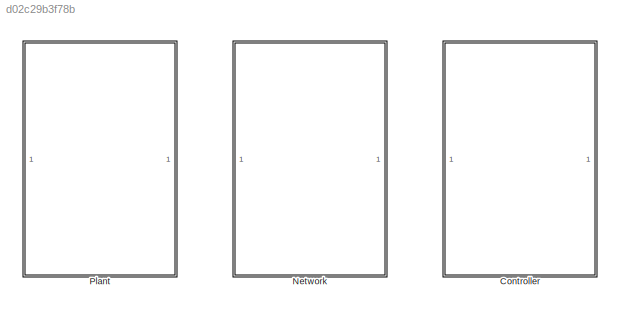
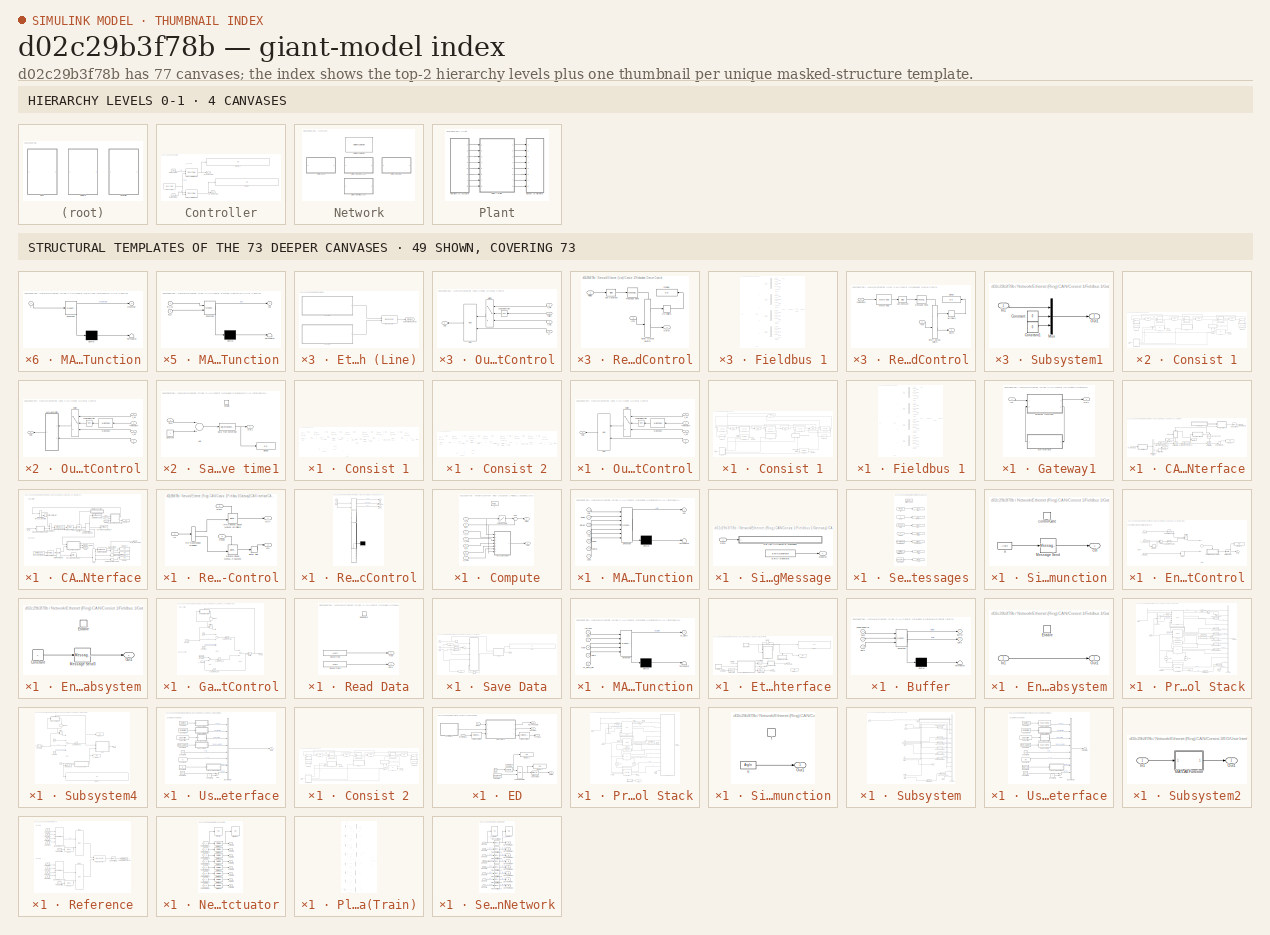
[diagram: thumbnail index - top-2 hierarchy levels (4 canvases) + 49 structural-template representatives of the remaining 73 canvases]
MODEL slx_d02c29b3f78b
KIND model
CONFIG AbsTol = auto
CONFIG EnableMultiTasking = off
CONFIG FixedStep = 0.004
CONFIG MaxStep = 0.01
CONFIG MinStep = auto
CONFIG RelTol = 1e-3
CONFIG SampleTimeConstraint = Unconstrained
CONFIG Solver = ode4
CONFIG SolverName = ode4
CONFIG StartTime = 0.0
CONFIG StopTime = 200
BLOCK [SubSystem] Controller
  Ports = []
  RequestExecContextInheritance = off
BLOCK [Display] Controller/Display
  Decimation = 1
  Ports = [1]
BLOCK [Display] Controller/Display1
  Decimation = 1
  Ports = [1]
BLOCK [From] Controller/FromConsist1
  GotoTag = Y_M_1
  TagVisibility = global
BLOCK [From] Controller/FromConsist2
  GotoTag = Y_M_2
  TagVisibility = global
BLOCK [Goto] Controller/GoToConsist1
  GotoTag = U_1
  TagVisibility = global
BLOCK [Goto] Controller/GoToConsist2
  GotoTag = U_2
  TagVisibility = global
BLOCK [Reference] Controller/Subsystem  REF=NCS_Library/Controller/Subsystem
  Ports = [0, 1]
  SourceBlock = NCS_Library/Controller/Subsystem
BLOCK [Reference] Controller/Train Controller with PID1  REF=NCS_Library/Controller/Train Controller with PID
  Ports = [2, 1]
  SourceBlock = NCS_Library/Controller/Train Controller with PID
BLOCK [Reference] Controller/Train Controller with PID2  REF=NCS_Library/Controller/Train Controller with PID
  Ports = [2, 1]
  SourceBlock = NCS_Library/Controller/Train Controller with PID
BLOCK [SubSystem] Network
  Ports = []
  RequestExecContextInheritance = off
BLOCK [SubSystem] Network/Ethernet (Line)
  Commented = on
  Ports = []
  RequestExecContextInheritance = off
BLOCK [SubSystem] Network/Ethernet (Line) CAN
  Commented = on
  Ports = []
  RequestExecContextInheritance = off
BLOCK [SubSystem] Network/Ethernet (Line) CAN/Consist 1
  Ports = [0, 1]
  RequestExecContextInheritance = off
BLOCK [Reference] Network/Ethernet (Line) CAN/Consist 1/Burst Device  REF=NCS_Library/Network/ETB/Burst Device
  Ports = [1, 1]
  SourceBlock = NCS_Library/Network/ETB/Burst Device
BLOCK [Reference] Network/Ethernet (Line) CAN/Consist 1/Burst Device1  REF=NCS_Library/Network/ETB/Burst Device
  Ports = [1, 1]
  SourceBlock = NCS_Library/Network/ETB/Burst Device
BLOCK [BusSelector] Network/Ethernet (Line) CAN/Consist 1/Bus Selector
  OutputAsBus = off
  OutputSignals = #Receive
  Ports = [1, 1]
BLOCK [Reference] Network/Ethernet (Line) CAN/Consist 1/Cable  REF=NCS_Library/Network/ETB/Cable
  Ports = [2, 2]
  SourceBlock = NCS_Library/Network/ETB/Cable
BLOCK [Reference] Network/Ethernet (Line) CAN/Consist 1/Cable1  REF=NCS_Library/Network/ETB/Cable
  Ports = [2, 2]
  SourceBlock = NCS_Library/Network/ETB/Cable
BLOCK [Reference] Network/Ethernet (Line) CAN/Consist 1/Cable2  REF=NCS_Library/Network/ETB/Cable
  Ports = [2, 2]
  SourceBlock = NCS_Library/Network/ETB/Cable
BLOCK [Reference] Network/Ethernet (Line) CAN/Consist 1/Cable3  REF=NCS_Library/Network/ETB/Cable
  Ports = [2, 2]
  SourceBlock = NCS_Library/Network/ETB/Cable
BLOCK [Reference] Network/Ethernet (Line) CAN/Consist 1/ED  REF=NCS_Library/Network/ETB/ED
  Ports = [2, 3]
  SourceBlock = NCS_Library/Network/ETB/ED
BLOCK [Reference] Network/Ethernet (Line) CAN/Consist 1/ED1  REF=NCS_Library/Network/ETB/ED
  Ports = [2, 3]
  SourceBlock = NCS_Library/Network/ETB/ED
BLOCK [Reference] Network/Ethernet (Line) CAN/Consist 1/Ethernet_2-port_Switch  REF=NCS_Library/Network/ETB/Ethernet_2-port_Switch
  Ports = [2, 2]
  SourceBlock = NCS_Library/Network/ETB/Ethernet_2-port_Switch
BLOCK [Reference] Network/Ethernet (Line) CAN/Consist 1/Ethernet_2-port_Switch1  REF=NCS_Library/Network/ETB/Ethernet_2-port_Switch
  Ports = [2, 2]
  SourceBlock = NCS_Library/Network/ETB/Ethernet_2-port_Switch
BLOCK [Reference] Network/Ethernet (Line) CAN/Consist 1/Ethernet_3-port_switch  REF=NCS_Library/Network/ETB/Ethernet_3-port_switch
  Ports = [3, 3]
  SourceBlock = NCS_Library/Network/ETB/Ethernet_3-port_switch
BLOCK [Reference] Network/Ethernet (Line) CAN/Consist 1/Ethernet_3-port_switch1  REF=NCS_Library/Network/ETB/Ethernet_3-port_switch
  Ports = [3, 3]
  SourceBlock = NCS_Library/Network/ETB/Ethernet_3-port_switch
BLOCK [Reference] Network/Ethernet (Line) CAN/Consist 1/Ethernet_3-port_switch2  REF=NCS_Library/Network/ETB/Ethernet_3-port_switch
  Ports = [3, 3]
  SourceBlock = NCS_Library/Network/ETB/Ethernet_3-port_switch
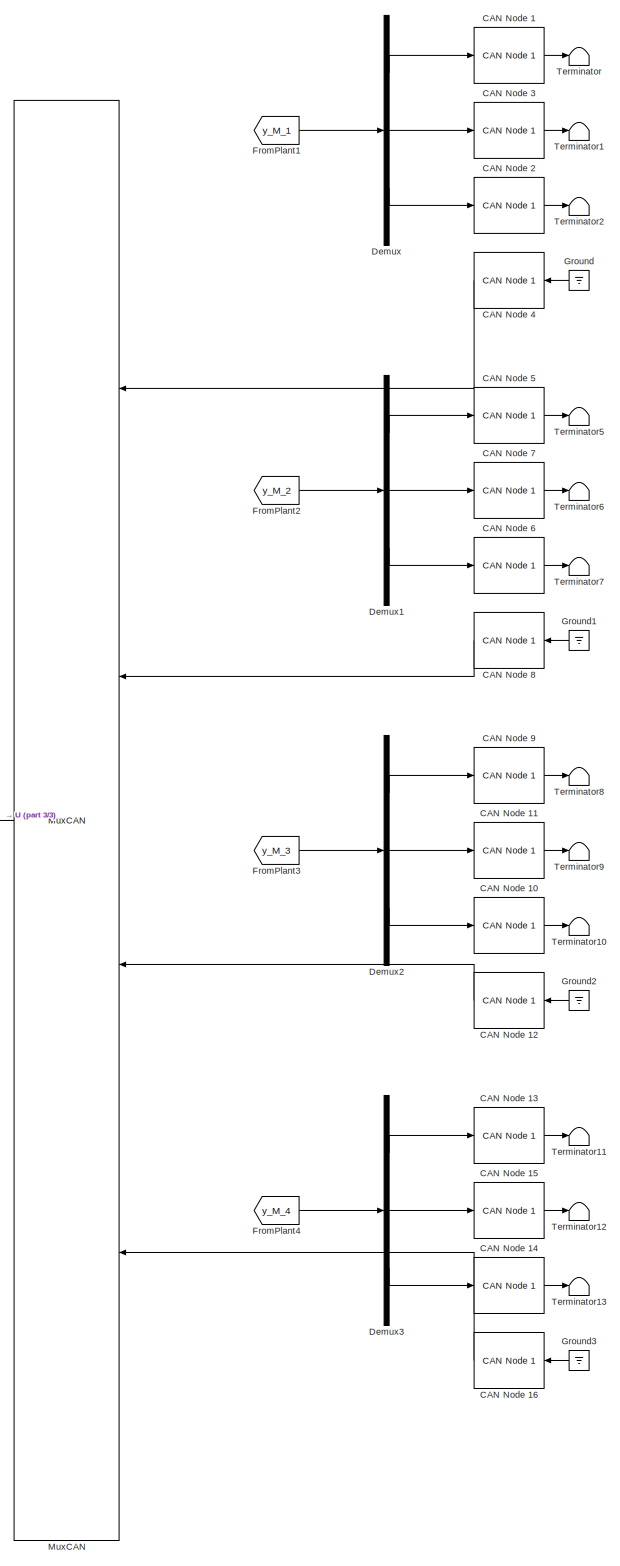
[diagram: Network/Ethernet (Line) CAN/Consist 1/Fieldbus 1 - part 1/3, center side, full height]
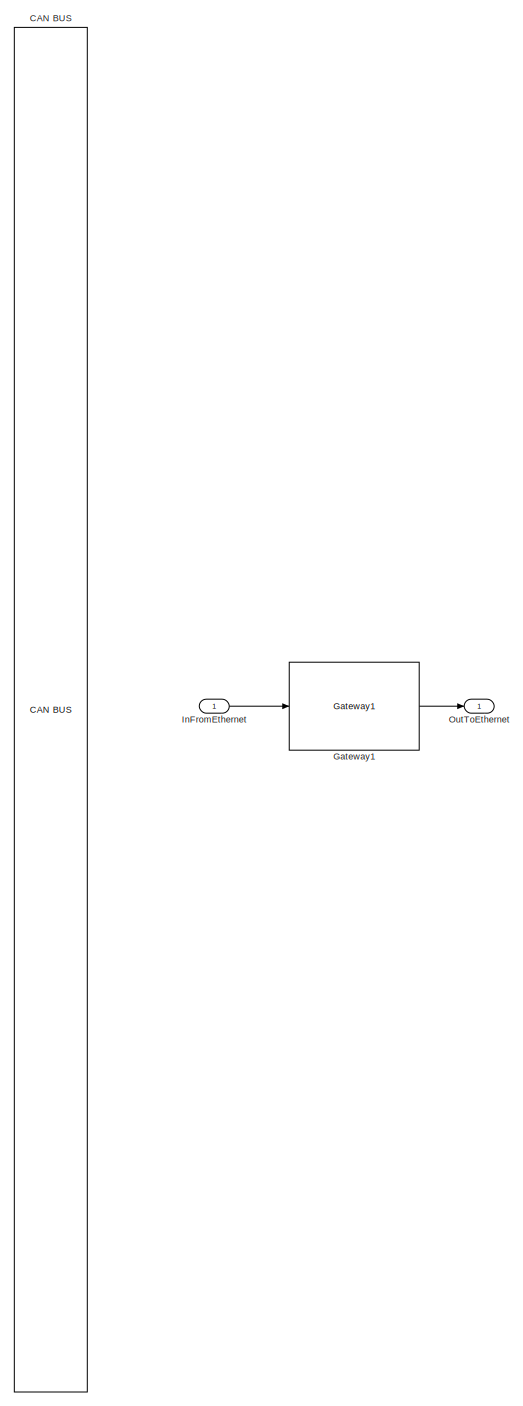
[diagram: Network/Ethernet (Line) CAN/Consist 1/Fieldbus 1 - part 2/3, right side, full height]
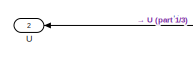
[diagram: Network/Ethernet (Line) CAN/Consist 1/Fieldbus 1 - part 3/3, middle left region]
BLOCK [SubSystem] Network/Ethernet (Line) CAN/Consist 1/Fieldbus 1
  Ports = [1, 2]
  RequestExecContextInheritance = off
BLOCK [Reference] Network/Ethernet (Line) CAN/Consist 1/Fieldbus 1/CAN BUS  REF=NCS_Library/Network/CAN/CAN BUS
  Ports = []
  SourceBlock = NCS_Library/Network/CAN/CAN BUS
BLOCK [Reference] Network/Ethernet (Line) CAN/Consist 1/Fieldbus 1/CAN Node 1  REF=NCS_Library/Network/CAN/CAN Node 1
  Ports = [1, 1]
  SourceBlock = NCS_Library/Network/CAN/CAN Node 1
  SourceType = CAN Node
BLOCK [Reference] Network/Ethernet (Line) CAN/Consist 1/Fieldbus 1/CAN Node 10  REF=NCS_Library/Network/CAN/CAN Node 1
  Ports = [1, 1]
  SourceBlock = NCS_Library/Network/CAN/CAN Node 1
  SourceType = CAN Node
BLOCK [Reference] Network/Ethernet (Line) CAN/Consist 1/Fieldbus 1/CAN Node 11  REF=NCS_Library/Network/CAN/CAN Node 1
  Ports = [1, 1]
  SourceBlock = NCS_Library/Network/CAN/CAN Node 1
  SourceType = CAN Node
BLOCK [Reference] Network/Ethernet (Line) CAN/Consist 1/Fieldbus 1/CAN Node 12  REF=NCS_Library/Network/CAN/CAN Node 1
  Ports = [1, 1]
  SourceBlock = NCS_Library/Network/CAN/CAN Node 1
  SourceType = CAN Node
BLOCK [Reference] Network/Ethernet (Line) CAN/Consist 1/Fieldbus 1/CAN Node 13  REF=NCS_Library/Network/CAN/CAN Node 1
  Ports = [1, 1]
  SourceBlock = NCS_Library/Network/CAN/CAN Node 1
  SourceType = CAN Node
BLOCK [Reference] Network/Ethernet (Line) CAN/Consist 1/Fieldbus 1/CAN Node 14  REF=NCS_Library/Network/CAN/CAN Node 1
  Ports = [1, 1]
  SourceBlock = NCS_Library/Network/CAN/CAN Node 1
  SourceType = CAN Node
BLOCK [Reference] Network/Ethernet (Line) CAN/Consist 1/Fieldbus 1/CAN Node 15  REF=NCS_Library/Network/CAN/CAN Node 1
  Ports = [1, 1]
  SourceBlock = NCS_Library/Network/CAN/CAN Node 1
  SourceType = CAN Node
BLOCK [Reference] Network/Ethernet (Line) CAN/Consist 1/Fieldbus 1/CAN Node 16  REF=NCS_Library/Network/CAN/CAN Node 1
  Ports = [1, 1]
  SourceBlock = NCS_Library/Network/CAN/CAN Node 1
  SourceType = CAN Node
BLOCK [Reference] Network/Ethernet (Line) CAN/Consist 1/Fieldbus 1/CAN Node 2  REF=NCS_Library/Network/CAN/CAN Node 1
  Ports = [1, 1]
  SourceBlock = NCS_Library/Network/CAN/CAN Node 1
  SourceType = CAN Node
BLOCK [Reference] Network/Ethernet (Line) CAN/Consist 1/Fieldbus 1/CAN Node 3  REF=NCS_Library/Network/CAN/CAN Node 1
  Ports = [1, 1]
  SourceBlock = NCS_Library/Network/CAN/CAN Node 1
  SourceType = CAN Node
BLOCK [Reference] Network/Ethernet (Line) CAN/Consist 1/Fieldbus 1/CAN Node 4  REF=NCS_Library/Network/CAN/CAN Node 1
  Ports = [1, 1]
  SourceBlock = NCS_Library/Network/CAN/CAN Node 1
  SourceType = CAN Node
BLOCK [Reference] Network/Ethernet (Line) CAN/Consist 1/Fieldbus 1/CAN Node 5  REF=NCS_Library/Network/CAN/CAN Node 1
  Ports = [1, 1]
  SourceBlock = NCS_Library/Network/CAN/CAN Node 1
  SourceType = CAN Node
BLOCK [Reference] Network/Ethernet (Line) CAN/Consist 1/Fieldbus 1/CAN Node 6  REF=NCS_Library/Network/CAN/CAN Node 1
  Ports = [1, 1]
  SourceBlock = NCS_Library/Network/CAN/CAN Node 1
  SourceType = CAN Node
BLOCK [Reference] Network/Ethernet (Line) CAN/Consist 1/Fieldbus 1/CAN Node 7  REF=NCS_Library/Network/CAN/CAN Node 1
  Ports = [1, 1]
  SourceBlock = NCS_Library/Network/CAN/CAN Node 1
  SourceType = CAN Node
BLOCK [Reference] Network/Ethernet (Line) CAN/Consist 1/Fieldbus 1/CAN Node 8  REF=NCS_Library/Network/CAN/CAN Node 1
  Ports = [1, 1]
  SourceBlock = NCS_Library/Network/CAN/CAN Node 1
  SourceType = CAN Node
BLOCK [Reference] Network/Ethernet (Line) CAN/Consist 1/Fieldbus 1/CAN Node 9  REF=NCS_Library/Network/CAN/CAN Node 1
  Ports = [1, 1]
  SourceBlock = NCS_Library/Network/CAN/CAN Node 1
  SourceType = CAN Node
BLOCK [Demux] Network/Ethernet (Line) CAN/Consist 1/Fieldbus 1/Demux
  DisplayOption = bar
  Outputs = 3
  Ports = [1, 3]
BLOCK [Demux] Network/Ethernet (Line) CAN/Consist 1/Fieldbus 1/Demux1
  DisplayOption = bar
  Outputs = 3
  Ports = [1, 3]
BLOCK [Demux] Network/Ethernet (Line) CAN/Consist 1/Fieldbus 1/Demux2
  DisplayOption = bar
  Outputs = 3
  Ports = [1, 3]
BLOCK [Demux] Network/Ethernet (Line) CAN/Consist 1/Fieldbus 1/Demux3
  DisplayOption = bar
  Outputs = 3
  Ports = [1, 3]
BLOCK [From] Network/Ethernet (Line) CAN/Consist 1/Fieldbus 1/FromPlant1
  GotoTag = y_M_1
  TagVisibility = global
BLOCK [From] Network/Ethernet (Line) CAN/Consist 1/Fieldbus 1/FromPlant2
  GotoTag = y_M_2
  TagVisibility = global
BLOCK [From] Network/Ethernet (Line) CAN/Consist 1/Fieldbus 1/FromPlant3
  GotoTag = y_M_3
  TagVisibility = global
BLOCK [From] Network/Ethernet (Line) CAN/Consist 1/Fieldbus 1/FromPlant4
  GotoTag = y_M_4
  TagVisibility = global
BLOCK [Reference] Network/Ethernet (Line) CAN/Consist 1/Fieldbus 1/Gateway1  REF=NCS_Library/Network/Gateway/Gateway1
  Ports = [1, 1]
  SourceBlock = NCS_Library/Network/Gateway/Gateway1
BLOCK [Ground] Network/Ethernet (Line) CAN/Consist 1/Fieldbus 1/Ground
BLOCK [Ground] Network/Ethernet (Line) CAN/Consist 1/Fieldbus 1/Ground1
BLOCK [Ground] Network/Ethernet (Line) CAN/Consist 1/Fieldbus 1/Ground2
BLOCK [Ground] Network/Ethernet (Line) CAN/Consist 1/Fieldbus 1/Ground3
BLOCK [Inport] Network/Ethernet (Line) CAN/Consist 1/Fieldbus 1/InFromEthernet
  IconDisplay = Port number
BLOCK [Reference] Network/Ethernet (Line) CAN/Consist 1/Fieldbus 1/MuxCAN  REF=NCS_Library/Network/Applications/Multiplexer/MuxCAN
  Ports = [4, 1]
  SourceBlock = NCS_Library/Network/Applications/Multiplexer/MuxCAN
  SourceType = SubSystem
BLOCK [Outport] Network/Ethernet (Line) CAN/Consist 1/Fieldbus 1/OutToEthernet
  IconDisplay = Port number
BLOCK [Terminator] Network/Ethernet (Line) CAN/Consist 1/Fieldbus 1/Terminator
BLOCK [Terminator] Network/Ethernet (Line) CAN/Consist 1/Fieldbus 1/Terminator1
BLOCK [Terminator] Network/Ethernet (Line) CAN/Consist 1/Fieldbus 1/Terminator10
BLOCK [Terminator] Network/Ethernet (Line) CAN/Consist 1/Fieldbus 1/Terminator11
BLOCK [Terminator] Network/Ethernet (Line) CAN/Consist 1/Fieldbus 1/Terminator12
BLOCK [Terminator] Network/Ethernet (Line) CAN/Consist 1/Fieldbus 1/Terminator13
BLOCK [Terminator] Network/Ethernet (Line) CAN/Consist 1/Fieldbus 1/Terminator2
BLOCK [Terminator] Network/Ethernet (Line) CAN/Consist 1/Fieldbus 1/Terminator5
BLOCK [Terminator] Network/Ethernet (Line) CAN/Consist 1/Fieldbus 1/Terminator6
BLOCK [Terminator] Network/Ethernet (Line) CAN/Consist 1/Fieldbus 1/Terminator7
BLOCK [Terminator] Network/Ethernet (Line) CAN/Consist 1/Fieldbus 1/Terminator8
BLOCK [Terminator] Network/Ethernet (Line) CAN/Consist 1/Fieldbus 1/Terminator9
BLOCK [Outport] Network/Ethernet (Line) CAN/Consist 1/Fieldbus 1/U
  IconDisplay = Port number
  Port = 2
BLOCK [From] Network/Ethernet (Line) CAN/Consist 1/FromController1
  GotoTag = U_1
  TagVisibility = global
BLOCK [From] Network/Ethernet (Line) CAN/Consist 1/FromController2
  GotoTag = U_1
  TagVisibility = global
BLOCK [SubSystem] Network/Ethernet (Line) CAN/Consist 1/Output Control
  Ports = [4, 1]
  RequestExecContextInheritance = off
BLOCK [Inport] Network/Ethernet (Line) CAN/Consist 1/Output Control/<#Receive>
  IconDisplay = Port number
BLOCK [Logic] Network/Ethernet (Line) CAN/Consist 1/Output Control/Logical Operator
  AllPortsSameDT = off
  Operator = NOT
  OutDataTypeStr = boolean
  Ports = [1, 1]
BLOCK [Reference] Network/Ethernet (Line) CAN/Consist 1/Output Control/Mux  REF=NCS_Library/Network/Applications/Multiplexer/Mux
  Ports = [2, 1]
  SourceBlock = NCS_Library/Network/Applications/Multiplexer/Mux
  SourceType = SubSystem
BLOCK [Outport] Network/Ethernet (Line) CAN/Consist 1/Output Control/Out1
  IconDisplay = Port number
BLOCK [Switch] Network/Ethernet (Line) CAN/Consist 1/Output Control/Switch
  Criteria = u2 > Threshold
  InputSameDT = off
  SaturateOnIntegerOverflow = off
BLOCK [Inport] Network/Ethernet (Line) CAN/Consist 1/Output Control/U
  IconDisplay = Port number
  Port = 3
BLOCK [Reference] Network/Ethernet (Line) CAN/Consist 1/Output Control/Watch Dog  REF=NCS_Library/Network/Applications/Watch Dog
  Ports = [1, 1]
  SourceBlock = NCS_Library/Network/Applications/Watch Dog
  SourceType = SubSystem
BLOCK [Inport] Network/Ethernet (Line) CAN/Consist 1/Output Control/Y_M1
  IconDisplay = Port number
  Port = 2
BLOCK [Inport] Network/Ethernet (Line) CAN/Consist 1/Output Control/Y_M2
  IconDisplay = Port number
  Port = 4
BLOCK [SubSystem] Network/Ethernet (Line) CAN/Consist 1/Redundant Device Control
  Ports = [2, 1]
  RequestExecContextInheritance = off
BLOCK [Inport] Network/Ethernet (Line) CAN/Consist 1/Redundant Device Control/<#Receive>
  IconDisplay = Port number
BLOCK [Bias] Network/Ethernet (Line) CAN/Consist 1/Redundant Device Control/Add Constant
  Bias = 1
  SaturateOnIntegerOverflow = off
BLOCK [Display] Network/Ethernet (Line) CAN/Consist 1/Redundant Device Control/Display
  Decimation = 1
  Ports = [1]
BLOCK [EntityOutputSwitch] Network/Ethernet (Line) CAN/Consist 1/Redundant Device Control/Entity Output Switch
  InputPortMap = u0,u1
  InputPortMessageModes = m,m
  OutputPortMap = o0,o1
  OutputPortMessageModes = m,m
  Ports = [2, 2]
  SwitchAttributeName = Attribute1
  SwitchingCriterion = From control port
BLOCK [Inport] Network/Ethernet (Line) CAN/Consist 1/Redundant Device Control/InTx
  IconDisplay = Port number
  Port = 2
BLOCK [MessageSend] Network/Ethernet (Line) CAN/Consist 1/Redundant Device Control/Message Send
  InputPortMap = u1
  OutputPortMessageModes = m
  Ports = [1, 1]
BLOCK [EntityTerminator] Network/Ethernet (Line) CAN/Consist 1/Redundant Device Control/No Failure
  InputPortMap = u0
  InputPortMessageModes = m
  NumberEntitiesArrived = on
  OutputPortMap = o0
  Ports = [1, 1]
BLOCK [Outport] Network/Ethernet (Line) CAN/Consist 1/Redundant Device Control/OutTx
  IconDisplay = Port number
BLOCK [Reference] Network/Ethernet (Line) CAN/Consist 1/Redundant Device Control/Watch Dog  REF=NCS_Library/Network/Applications/Watch Dog
  Ports = [1, 1]
  SourceBlock = NCS_Library/Network/Applications/Watch Dog
  SourceType = SubSystem
BLOCK [Terminator] Network/Ethernet (Line) CAN/Consist 1/Terminator1
BLOCK [Outport] Network/Ethernet (Line) CAN/Consist 1/out1
  IconDisplay = Port number
BLOCK [SubSystem] Network/Ethernet (Line) CAN/Consist 2
  Ports = [0, 1]
  RequestExecContextInheritance = off
BLOCK [Reference] Network/Ethernet (Line) CAN/Consist 2/Burst Device  REF=NCS_Library/Network/ETB/Burst Device
  Ports = [1, 1]
  SourceBlock = NCS_Library/Network/ETB/Burst Device
BLOCK [Reference] Network/Ethernet (Line) CAN/Consist 2/Burst Device1  REF=NCS_Library/Network/ETB/Burst Device
  Ports = [1, 1]
  SourceBlock = NCS_Library/Network/ETB/Burst Device
BLOCK [BusSelector] Network/Ethernet (Line) CAN/Consist 2/Bus Selector
  OutputAsBus = off
  OutputSignals = #Receive
  Ports = [1, 1]
BLOCK [Reference] Network/Ethernet (Line) CAN/Consist 2/Cable  REF=NCS_Library/Network/ETB/Cable
  Ports = [2, 2]
  SourceBlock = NCS_Library/Network/ETB/Cable
BLOCK [Reference] Network/Ethernet (Line) CAN/Consist 2/Cable1  REF=NCS_Library/Network/ETB/Cable
  Ports = [2, 2]
  SourceBlock = NCS_Library/Network/ETB/Cable
BLOCK [Reference] Network/Ethernet (Line) CAN/Consist 2/Cable2  REF=NCS_Library/Network/ETB/Cable
  Ports = [2, 2]
  SourceBlock = NCS_Library/Network/ETB/Cable
BLOCK [Reference] Network/Ethernet (Line) CAN/Consist 2/Cable3  REF=NCS_Library/Network/ETB/Cable
  Ports = [2, 2]
  SourceBlock = NCS_Library/Network/ETB/Cable
BLOCK [Reference] Network/Ethernet (Line) CAN/Consist 2/ED  REF=NCS_Library/Network/ETB/ED
  Ports = [2, 3]
  SourceBlock = NCS_Library/Network/ETB/ED
BLOCK [Reference] Network/Ethernet (Line) CAN/Consist 2/ED1  REF=NCS_Library/Network/ETB/ED
  Ports = [2, 3]
  SourceBlock = NCS_Library/Network/ETB/ED
BLOCK [Reference] Network/Ethernet (Line) CAN/Consist 2/Ethernet_2-port_Switch  REF=NCS_Library/Network/ETB/Ethernet_2-port_Switch
  Ports = [2, 2]
  SourceBlock = NCS_Library/Network/ETB/Ethernet_2-port_Switch
BLOCK [Reference] Network/Ethernet (Line) CAN/Consist 2/Ethernet_2-port_Switch1  REF=NCS_Library/Network/ETB/Ethernet_2-port_Switch
  Ports = [2, 2]
  SourceBlock = NCS_Library/Network/ETB/Ethernet_2-port_Switch
BLOCK [Reference] Network/Ethernet (Line) CAN/Consist 2/Ethernet_3-port_switch  REF=NCS_Library/Network/ETB/Ethernet_3-port_switch
  Ports = [3, 3]
  SourceBlock = NCS_Library/Network/ETB/Ethernet_3-port_switch
BLOCK [Reference] Network/Ethernet (Line) CAN/Consist 2/Ethernet_3-port_switch1  REF=NCS_Library/Network/ETB/Ethernet_3-port_switch
  Ports = [3, 3]
  SourceBlock = NCS_Library/Network/ETB/Ethernet_3-port_switch
BLOCK [Reference] Network/Ethernet (Line) CAN/Consist 2/Ethernet_3-port_switch2  REF=NCS_Library/Network/ETB/Ethernet_3-port_switch
  Ports = [3, 3]
  SourceBlock = NCS_Library/Network/ETB/Ethernet_3-port_switch
BLOCK [SubSystem] Network/Ethernet (Line) CAN/Consist 2/Fieldbus 2
  Ports = [1, 2]
  RequestExecContextInheritance = off
BLOCK [Reference] Network/Ethernet (Line) CAN/Consist 2/Fieldbus 2/CAN BUS1  REF=NCS_Library/Network/CAN/CAN BUS1
  Ports = []
  SourceBlock = NCS_Library/Network/CAN/CAN BUS1
BLOCK [Reference] Network/Ethernet (Line) CAN/Consist 2/Fieldbus 2/CAN Node 1  REF=NCS_Library/Network/CAN/CAN Node 2
  Ports = [1, 1]
  SourceBlock = NCS_Library/Network/CAN/CAN Node 2
  SourceType = CAN Node
BLOCK [Reference] Network/Ethernet (Line) CAN/Consist 2/Fieldbus 2/CAN Node 10  REF=NCS_Library/Network/CAN/CAN Node 2
  Ports = [1, 1]
  SourceBlock = NCS_Library/Network/CAN/CAN Node 2
  SourceType = CAN Node
BLOCK [Reference] Network/Ethernet (Line) CAN/Consist 2/Fieldbus 2/CAN Node 11  REF=NCS_Library/Network/CAN/CAN Node 2
  Ports = [1, 1]
  SourceBlock = NCS_Library/Network/CAN/CAN Node 2
  SourceType = CAN Node
BLOCK [Reference] Network/Ethernet (Line) CAN/Consist 2/Fieldbus 2/CAN Node 12  REF=NCS_Library/Network/CAN/CAN Node 2
  Ports = [1, 1]
  SourceBlock = NCS_Library/Network/CAN/CAN Node 2
  SourceType = CAN Node
BLOCK [Reference] Network/Ethernet (Line) CAN/Consist 2/Fieldbus 2/CAN Node 13  REF=NCS_Library/Network/CAN/CAN Node 2
  Ports = [1, 1]
  SourceBlock = NCS_Library/Network/CAN/CAN Node 2
  SourceType = CAN Node
BLOCK [Reference] Network/Ethernet (Line) CAN/Consist 2/Fieldbus 2/CAN Node 14  REF=NCS_Library/Network/CAN/CAN Node 2
  Ports = [1, 1]
  SourceBlock = NCS_Library/Network/CAN/CAN Node 2
  SourceType = CAN Node
BLOCK [Reference] Network/Ethernet (Line) CAN/Consist 2/Fieldbus 2/CAN Node 15  REF=NCS_Library/Network/CAN/CAN Node 2
  Ports = [1, 1]
  SourceBlock = NCS_Library/Network/CAN/CAN Node 2
  SourceType = CAN Node
BLOCK [Reference] Network/Ethernet (Line) CAN/Consist 2/Fieldbus 2/CAN Node 16  REF=NCS_Library/Network/CAN/CAN Node 2
  Ports = [1, 1]
  SourceBlock = NCS_Library/Network/CAN/CAN Node 2
  SourceType = CAN Node
BLOCK [Reference] Network/Ethernet (Line) CAN/Consist 2/Fieldbus 2/CAN Node 2  REF=NCS_Library/Network/CAN/CAN Node 2
  Ports = [1, 1]
  SourceBlock = NCS_Library/Network/CAN/CAN Node 2
  SourceType = CAN Node
BLOCK [Reference] Network/Ethernet (Line) CAN/Consist 2/Fieldbus 2/CAN Node 3  REF=NCS_Library/Network/CAN/CAN Node 2
  Ports = [1, 1]
  SourceBlock = NCS_Library/Network/CAN/CAN Node 2
  SourceType = CAN Node
BLOCK [Reference] Network/Ethernet (Line) CAN/Consist 2/Fieldbus 2/CAN Node 4  REF=NCS_Library/Network/CAN/CAN Node 2
  Ports = [1, 1]
  SourceBlock = NCS_Library/Network/CAN/CAN Node 2
  SourceType = CAN Node
BLOCK [Reference] Network/Ethernet (Line) CAN/Consist 2/Fieldbus 2/CAN Node 5  REF=NCS_Library/Network/CAN/CAN Node 2
  Ports = [1, 1]
  SourceBlock = NCS_Library/Network/CAN/CAN Node 2
  SourceType = CAN Node
BLOCK [Reference] Network/Ethernet (Line) CAN/Consist 2/Fieldbus 2/CAN Node 6  REF=NCS_Library/Network/CAN/CAN Node 2
  Ports = [1, 1]
  SourceBlock = NCS_Library/Network/CAN/CAN Node 2
  SourceType = CAN Node
BLOCK [Reference] Network/Ethernet (Line) CAN/Consist 2/Fieldbus 2/CAN Node 7  REF=NCS_Library/Network/CAN/CAN Node 2
  Ports = [1, 1]
  SourceBlock = NCS_Library/Network/CAN/CAN Node 2
  SourceType = CAN Node
BLOCK [Reference] Network/Ethernet (Line) CAN/Consist 2/Fieldbus 2/CAN Node 8  REF=NCS_Library/Network/CAN/CAN Node 2
  Ports = [1, 1]
  SourceBlock = NCS_Library/Network/CAN/CAN Node 2
  SourceType = CAN Node
BLOCK [Reference] Network/Ethernet (Line) CAN/Consist 2/Fieldbus 2/CAN Node 9  REF=NCS_Library/Network/CAN/CAN Node 2
  Ports = [1, 1]
  SourceBlock = NCS_Library/Network/CAN/CAN Node 2
  SourceType = CAN Node
BLOCK [Demux] Network/Ethernet (Line) CAN/Consist 2/Fieldbus 2/Demux
  DisplayOption = bar
  Outputs = 3
  Ports = [1, 3]
BLOCK [Demux] Network/Ethernet (Line) CAN/Consist 2/Fieldbus 2/Demux1
  DisplayOption = bar
  Outputs = 3
  Ports = [1, 3]
BLOCK [Demux] Network/Ethernet (Line) CAN/Consist 2/Fieldbus 2/Demux2
  DisplayOption = bar
  Outputs = 3
  Ports = [1, 3]
BLOCK [Demux] Network/Ethernet (Line) CAN/Consist 2/Fieldbus 2/Demux3
  DisplayOption = bar
  Outputs = 3
  Ports = [1, 3]
BLOCK [From] Network/Ethernet (Line) CAN/Consist 2/Fieldbus 2/FromPlant1
  GotoTag = y_M_1
  TagVisibility = global
BLOCK [From] Network/Ethernet (Line) CAN/Consist 2/Fieldbus 2/FromPlant2
  GotoTag = y_M_2
  TagVisibility = global
BLOCK [From] Network/Ethernet (Line) CAN/Consist 2/Fieldbus 2/FromPlant3
  GotoTag = y_M_3
  TagVisibility = global
BLOCK [From] Network/Ethernet (Line) CAN/Consist 2/Fieldbus 2/FromPlant4
  GotoTag = y_M_4
  TagVisibility = global
BLOCK [Reference] Network/Ethernet (Line) CAN/Consist 2/Fieldbus 2/Gateway2  REF=NCS_Library/Network/Gateway/Gateway2
  Ports = [1, 1]
  SourceBlock = NCS_Library/Network/Gateway/Gateway2
BLOCK [Ground] Network/Ethernet (Line) CAN/Consist 2/Fieldbus 2/Ground
BLOCK [Ground] Network/Ethernet (Line) CAN/Consist 2/Fieldbus 2/Ground1
BLOCK [Ground] Network/Ethernet (Line) CAN/Consist 2/Fieldbus 2/Ground2
BLOCK [Ground] Network/Ethernet (Line) CAN/Consist 2/Fieldbus 2/Ground3
BLOCK [Inport] Network/Ethernet (Line) CAN/Consist 2/Fieldbus 2/InFromEthernet
  IconDisplay = Port number
BLOCK [Reference] Network/Ethernet (Line) CAN/Consist 2/Fieldbus 2/MuxCAN  REF=NCS_Library/Network/Applications/Multiplexer/MuxCAN
  Ports = [4, 1]
  SourceBlock = NCS_Library/Network/Applications/Multiplexer/MuxCAN
  SourceType = SubSystem
BLOCK [Outport] Network/Ethernet (Line) CAN/Consist 2/Fieldbus 2/OutToEthernet
  IconDisplay = Port number
BLOCK [Terminator] Network/Ethernet (Line) CAN/Consist 2/Fieldbus 2/Terminator
BLOCK [Terminator] Network/Ethernet (Line) CAN/Consist 2/Fieldbus 2/Terminator1
BLOCK [Terminator] Network/Ethernet (Line) CAN/Consist 2/Fieldbus 2/Terminator10
BLOCK [Terminator] Network/Ethernet (Line) CAN/Consist 2/Fieldbus 2/Terminator11
BLOCK [Terminator] Network/Ethernet (Line) CAN/Consist 2/Fieldbus 2/Terminator12
BLOCK [Terminator] Network/Ethernet (Line) CAN/Consist 2/Fieldbus 2/Terminator13
BLOCK [Terminator] Network/Ethernet (Line) CAN/Consist 2/Fieldbus 2/Terminator2
BLOCK [Terminator] Network/Ethernet (Line) CAN/Consist 2/Fieldbus 2/Terminator5
BLOCK [Terminator] Network/Ethernet (Line) CAN/Consist 2/Fieldbus 2/Terminator6
BLOCK [Terminator] Network/Ethernet (Line) CAN/Consist 2/Fieldbus 2/Terminator7
BLOCK [Terminator] Network/Ethernet (Line) CAN/Consist 2/Fieldbus 2/Terminator8
BLOCK [Terminator] Network/Ethernet (Line) CAN/Consist 2/Fieldbus 2/Terminator9
BLOCK [Outport] Network/Ethernet (Line) CAN/Consist 2/Fieldbus 2/U
  IconDisplay = Port number
  Port = 2
BLOCK [From] Network/Ethernet (Line) CAN/Consist 2/FromController1
  GotoTag = U_2
  TagVisibility = global
BLOCK [From] Network/Ethernet (Line) CAN/Consist 2/FromController2
  GotoTag = U_2
  TagVisibility = global
BLOCK [SubSystem] Network/Ethernet (Line) CAN/Consist 2/Output Control
  Ports = [4, 1]
  RequestExecContextInheritance = off
BLOCK [Inport] Network/Ethernet (Line) CAN/Consist 2/Output Control/<#Receive>
  IconDisplay = Port number
BLOCK [Logic] Network/Ethernet (Line) CAN/Consist 2/Output Control/Logical Operator
  AllPortsSameDT = off
  Operator = NOT
  OutDataTypeStr = boolean
  Ports = [1, 1]
BLOCK [SubSystem] Network/Ethernet (Line) CAN/Consist 2/Output Control/MATLAB Function
  ErrorFcn = Stateflow.Translate.translate
  PermitHierarchicalResolution = ExplicitOnly
  Ports = [2, 1]
  RequestExecContextInheritance = off
  SFBlockType = MATLAB Function
  TreatAsAtomicUnit = on
BLOCK [Demux] Network/Ethernet (Line) CAN/Consist 2/Output Control/MATLAB Function/ Demux 
  Outputs = 1
  Ports = [1, 1]
BLOCK [S-Function] Network/Ethernet (Line) CAN/Consist 2/Output Control/MATLAB Function/ SFunction 
  EnableBusSupport = on
  FunctionName = sf_sfun
  PortCounts = [2 2]
  Ports = [2, 2]
  SFcnIsStateOwnerBlock = off
  SFunctionDeploymentMode = off
  Tag = Stateflow S-Function NCS_Simulation 4
BLOCK [Terminator] Network/Ethernet (Line) CAN/Consist 2/Output Control/MATLAB Function/ Terminator 
BLOCK [Inport] Network/Ethernet (Line) CAN/Consist 2/Output Control/MATLAB Function/in_U
  IconDisplay = Port number
  Port = 2
BLOCK [Inport] Network/Ethernet (Line) CAN/Consist 2/Output Control/MATLAB Function/in_Y_M
  IconDisplay = Port number
BLOCK [Outport] Network/Ethernet (Line) CAN/Consist 2/Output Control/MATLAB Function/out
  IconDisplay = Port number
BLOCK [Outport] Network/Ethernet (Line) CAN/Consist 2/Output Control/Out1
  IconDisplay = Port number
BLOCK [Switch] Network/Ethernet (Line) CAN/Consist 2/Output Control/Switch
  Criteria = u2 > Threshold
  InputSameDT = off
  SaturateOnIntegerOverflow = off
BLOCK [Inport] Network/Ethernet (Line) CAN/Consist 2/Output Control/U
  IconDisplay = Port number
  Port = 3
BLOCK [Reference] Network/Ethernet (Line) CAN/Consist 2/Output Control/Watch Dog  REF=NCS_Library/Network/Applications/Watch Dog
  Ports = [1, 1]
  SourceBlock = NCS_Library/Network/Applications/Watch Dog
  SourceType = SubSystem
BLOCK [Inport] Network/Ethernet (Line) CAN/Consist 2/Output Control/Y_M1
  IconDisplay = Port number
  Port = 2
BLOCK [Inport] Network/Ethernet (Line) CAN/Consist 2/Output Control/Y_M2
  IconDisplay = Port number
  Port = 4
BLOCK [SubSystem] Network/Ethernet (Line) CAN/Consist 2/Redundant Device Control
  Ports = [2, 1]
  RequestExecContextInheritance = off
BLOCK [Inport] Network/Ethernet (Line) CAN/Consist 2/Redundant Device Control/<#Receive>
  IconDisplay = Port number
BLOCK [Bias] Network/Ethernet (Line) CAN/Consist 2/Redundant Device Control/Add Constant
  Bias = 1
  SaturateOnIntegerOverflow = off
BLOCK [Display] Network/Ethernet (Line) CAN/Consist 2/Redundant Device Control/Display
  Decimation = 1
  Ports = [1]
BLOCK [EntityOutputSwitch] Network/Ethernet (Line) CAN/Consist 2/Redundant Device Control/Entity Output Switch
  InputPortMap = u0,u1
  InputPortMessageModes = m,m
  OutputPortMap = o0,o1
  OutputPortMessageModes = m,m
  Ports = [2, 2]
  SwitchAttributeName = Attribute1
  SwitchingCriterion = From control port
BLOCK [Inport] Network/Ethernet (Line) CAN/Consist 2/Redundant Device Control/InTx
  IconDisplay = Port number
  Port = 2
BLOCK [MessageSend] Network/Ethernet (Line) CAN/Consist 2/Redundant Device Control/Message Send
  InputPortMap = u1
  OutputPortMessageModes = m
  Ports = [1, 1]
BLOCK [EntityTerminator] Network/Ethernet (Line) CAN/Consist 2/Redundant Device Control/No Failure
  InputPortMap = u0
  InputPortMessageModes = m
  NumberEntitiesArrived = on
  OutputPortMap = o0
  Ports = [1, 1]
BLOCK [Outport] Network/Ethernet (Line) CAN/Consist 2/Redundant Device Control/OutTx
  IconDisplay = Port number
BLOCK [Reference] Network/Ethernet (Line) CAN/Consist 2/Redundant Device Control/Watch Dog  REF=NCS_Library/Network/Applications/Watch Dog
  Ports = [1, 1]
  SourceBlock = NCS_Library/Network/Applications/Watch Dog
  SourceType = SubSystem
BLOCK [Terminator] Network/Ethernet (Line) CAN/Consist 2/Terminator1
BLOCK [Outport] Network/Ethernet (Line) CAN/Consist 2/out2
  IconDisplay = Port number
BLOCK [Goto] Network/Ethernet (Line) CAN/GotoNetworkSelector
  GotoTag = CAN
  TagVisibility = global
BLOCK [Reference] Network/Ethernet (Line) CAN/Mux Consist  REF=NCS_Library/Network/Applications/Multiplexer/Mux Consist
  Ports = [2, 1]
  SourceBlock = NCS_Library/Network/Applications/Multiplexer/Mux Consist
  SourceType = SubSystem
BLOCK [SubSystem] Network/Ethernet (Line)/Consist 1
  Ports = [0, 1]
  RequestExecContextInheritance = off
BLOCK [Reference] Network/Ethernet (Line)/Consist 1/Burst Device  REF=NCS_Library/Network/ETB/Burst Device
  Ports = [1, 1]
  SourceBlock = NCS_Library/Network/ETB/Burst Device
BLOCK [Reference] Network/Ethernet (Line)/Consist 1/Burst Device1  REF=NCS_Library/Network/ETB/Burst Device
  Ports = [1, 1]
  SourceBlock = NCS_Library/Network/ETB/Burst Device
BLOCK [Reference] Network/Ethernet (Line)/Consist 1/Cable  REF=NCS_Library/Network/ETB/Cable
  Ports = [2, 2]
  SourceBlock = NCS_Library/Network/ETB/Cable
BLOCK [Reference] Network/Ethernet (Line)/Consist 1/Cable1  REF=NCS_Library/Network/ETB/Cable
  Ports = [2, 2]
  SourceBlock = NCS_Library/Network/ETB/Cable
BLOCK [Reference] Network/Ethernet (Line)/Consist 1/Cable2  REF=NCS_Library/Network/ETB/Cable
  Ports = [2, 2]
  SourceBlock = NCS_Library/Network/ETB/Cable
BLOCK [Reference] Network/Ethernet (Line)/Consist 1/Cable3  REF=NCS_Library/Network/ETB/Cable
  Ports = [2, 2]
  SourceBlock = NCS_Library/Network/ETB/Cable
BLOCK [Reference] Network/Ethernet (Line)/Consist 1/Cable4  REF=NCS_Library/Network/ETB/Cable
  Ports = [2, 2]
  SourceBlock = NCS_Library/Network/ETB/Cable
BLOCK [Reference] Network/Ethernet (Line)/Consist 1/Cable5  REF=NCS_Library/Network/ETB/Cable
  Ports = [2, 2]
  SourceBlock = NCS_Library/Network/ETB/Cable
BLOCK [Reference] Network/Ethernet (Line)/Consist 1/Cable6  REF=NCS_Library/Network/ETB/Cable
  Ports = [2, 2]
  SourceBlock = NCS_Library/Network/ETB/Cable
BLOCK [Reference] Network/Ethernet (Line)/Consist 1/Controller Interface  REF=NCS_Library/Network/ETB/Controller Interface
  Ports = [2, 4]
  SourceBlock = NCS_Library/Network/ETB/Controller Interface
BLOCK [Reference] Network/Ethernet (Line)/Consist 1/Controller Interface1  REF=NCS_Library/Network/ETB/Controller Interface
  Ports = [2, 4]
  SourceBlock = NCS_Library/Network/ETB/Controller Interface
BLOCK [Display] Network/Ethernet (Line)/Consist 1/Display
  Decimation = 1
  Ports = [1]
BLOCK [Reference] Network/Ethernet (Line)/Consist 1/ED  REF=NCS_Library/Network/ETB/ED
  Ports = [2, 3]
  SourceBlock = NCS_Library/Network/ETB/ED
BLOCK [Reference] Network/Ethernet (Line)/Consist 1/ED2  REF=NCS_Library/Network/ETB/ED
  Ports = [2, 3]
  SourceBlock = NCS_Library/Network/ETB/ED
BLOCK [Reference] Network/Ethernet (Line)/Consist 1/ED3  REF=NCS_Library/Network/ETB/ED
  Ports = [2, 3]
  SourceBlock = NCS_Library/Network/ETB/ED
BLOCK [Reference] Network/Ethernet (Line)/Consist 1/ED4  REF=NCS_Library/Network/ETB/ED
  Ports = [2, 3]
  SourceBlock = NCS_Library/Network/ETB/ED
BLOCK [Reference] Network/Ethernet (Line)/Consist 1/Ethernet_2-port_Switch  REF=NCS_Library/Network/ETB/Ethernet_2-port_Switch
  Ports = [2, 2]
  SourceBlock = NCS_Library/Network/ETB/Ethernet_2-port_Switch
BLOCK [Reference] Network/Ethernet (Line)/Consist 1/Ethernet_2-port_Switch1  REF=NCS_Library/Network/ETB/Ethernet_2-port_Switch
  Ports = [2, 2]
  SourceBlock = NCS_Library/Network/ETB/Ethernet_2-port_Switch
BLOCK [Reference] Network/Ethernet (Line)/Consist 1/Ethernet_3-port_switch  REF=NCS_Library/Network/ETB/Ethernet_3-port_switch
  Ports = [3, 3]
  SourceBlock = NCS_Library/Network/ETB/Ethernet_3-port_switch
BLOCK [Reference] Network/Ethernet (Line)/Consist 1/Ethernet_3-port_switch1  REF=NCS_Library/Network/ETB/Ethernet_3-port_switch
  Ports = [3, 3]
  SourceBlock = NCS_Library/Network/ETB/Ethernet_3-port_switch
BLOCK [Reference] Network/Ethernet (Line)/Consist 1/Ethernet_3-port_switch2  REF=NCS_Library/Network/ETB/Ethernet_3-port_switch
  Ports = [3, 3]
  SourceBlock = NCS_Library/Network/ETB/Ethernet_3-port_switch
BLOCK [Reference] Network/Ethernet (Line)/Consist 1/Ethernet_3-port_switch3  REF=NCS_Library/Network/ETB/Ethernet_3-port_switch
  Ports = [3, 3]
  SourceBlock = NCS_Library/Network/ETB/Ethernet_3-port_switch
BLOCK [Reference] Network/Ethernet (Line)/Consist 1/Ethernet_3-port_switch4  REF=NCS_Library/Network/ETB/Ethernet_3-port_switch
  Ports = [3, 3]
  SourceBlock = NCS_Library/Network/ETB/Ethernet_3-port_switch
BLOCK [Reference] Network/Ethernet (Line)/Consist 1/Ethernet_3-port_switch5  REF=NCS_Library/Network/ETB/Ethernet_3-port_switch
  Ports = [3, 3]
  SourceBlock = NCS_Library/Network/ETB/Ethernet_3-port_switch
BLOCK [From] Network/Ethernet (Line)/Consist 1/FromController1
  GotoTag = U_1
  TagVisibility = global
BLOCK [From] Network/Ethernet (Line)/Consist 1/FromController2
  GotoTag = U_1
  TagVisibility = global
BLOCK [From] Network/Ethernet (Line)/Consist 1/FromPlant1
  GotoTag = y_M_1
  TagVisibility = global
BLOCK [From] Network/Ethernet (Line)/Consist 1/FromPlant2
  GotoTag = y_M_2
  TagVisibility = global
BLOCK [From] Network/Ethernet (Line)/Consist 1/FromPlant3
  GotoTag = y_M_3
  TagVisibility = global
BLOCK [From] Network/Ethernet (Line)/Consist 1/FromPlant4
  GotoTag = y_M_4
  TagVisibility = global
BLOCK [Reference] Network/Ethernet (Line)/Consist 1/MUX ECN  REF=NCS_Library/Network/Applications/Multiplexer/MUX ECN
  Ports = [4, 1]
  SourceBlock = NCS_Library/Network/Applications/Multiplexer/MUX ECN
  SourceType = SubSystem
BLOCK [Reference] Network/Ethernet (Line)/Consist 1/Mux y_m1  REF=NCS_Library/Network/Applications/Multiplexer/Mux y_m
  Ports = [1, 1]
  SourceBlock = NCS_Library/Network/Applications/Multiplexer/Mux y_m
  SourceType = SubSystem
BLOCK [Reference] Network/Ethernet (Line)/Consist 1/Mux y_m2  REF=NCS_Library/Network/Applications/Multiplexer/Mux y_m
  Ports = [1, 1]
  SourceBlock = NCS_Library/Network/Applications/Multiplexer/Mux y_m
  SourceType = SubSystem
BLOCK [Reference] Network/Ethernet (Line)/Consist 1/Mux y_m3  REF=NCS_Library/Network/Applications/Multiplexer/Mux y_m
  Ports = [1, 1]
  SourceBlock = NCS_Library/Network/Applications/Multiplexer/Mux y_m
  SourceType = SubSystem
BLOCK [Reference] Network/Ethernet (Line)/Consist 1/Mux y_m4  REF=NCS_Library/Network/Applications/Multiplexer/Mux y_m
  Ports = [1, 1]
  SourceBlock = NCS_Library/Network/Applications/Multiplexer/Mux y_m
  SourceType = SubSystem
BLOCK [SubSystem] Network/Ethernet (Line)/Consist 1/Output Control
  Ports = [4, 1]
  RequestExecContextInheritance = off
BLOCK [Inport] Network/Ethernet (Line)/Consist 1/Output Control/Failed
  IconDisplay = Port number
BLOCK [Logic] Network/Ethernet (Line)/Consist 1/Output Control/Logical Operator
  AllPortsSameDT = off
  Operator = NOT
  OutDataTypeStr = boolean
  Ports = [1, 1]
BLOCK [Reference] Network/Ethernet (Line)/Consist 1/Output Control/Mux  REF=NCS_Library/Network/Applications/Multiplexer/Mux
  Ports = [2, 1]
  SourceBlock = NCS_Library/Network/Applications/Multiplexer/Mux
  SourceType = SubSystem
BLOCK [Outport] Network/Ethernet (Line)/Consist 1/Output Control/Out1
  IconDisplay = Port number
BLOCK [Switch] Network/Ethernet (Line)/Consist 1/Output Control/Switch
  Criteria = u2 > Threshold
  InputSameDT = off
  SaturateOnIntegerOverflow = off
BLOCK [Inport] Network/Ethernet (Line)/Consist 1/Output Control/U
  IconDisplay = Port number
  Port = 3
BLOCK [Inport] Network/Ethernet (Line)/Consist 1/Output Control/Y_M1
  IconDisplay = Port number
  Port = 2
BLOCK [Inport] Network/Ethernet (Line)/Consist 1/Output Control/Y_M2
  IconDisplay = Port number
  Port = 4
BLOCK [SubSystem] Network/Ethernet (Line)/Consist 1/Redundant Device Control
  Ports = [2, 1]
  RequestExecContextInheritance = off
BLOCK [Bias] Network/Ethernet (Line)/Consist 1/Redundant Device Control/Add Constant
  Bias = 1
  SaturateOnIntegerOverflow = off
BLOCK [Display] Network/Ethernet (Line)/Consist 1/Redundant Device Control/Display
  Decimation = 1
  Ports = [1]
BLOCK [EntityOutputSwitch] Network/Ethernet (Line)/Consist 1/Redundant Device Control/Entity Output Switch
  InputPortMap = u0,u1
  InputPortMessageModes = m,m
  OutputPortMap = o0,o1
  OutputPortMessageModes = m,m
  Ports = [2, 2]
  SwitchAttributeName = Attribute1
  SwitchingCriterion = From control port
BLOCK [Inport] Network/Ethernet (Line)/Consist 1/Redundant Device Control/Failed
  IconDisplay = Port number
BLOCK [Inport] Network/Ethernet (Line)/Consist 1/Redundant Device Control/InTx
  IconDisplay = Port number
  Port = 2
BLOCK [MessageSend] Network/Ethernet (Line)/Consist 1/Redundant Device Control/Message Send
  InputPortMap = u1
  OutputPortMessageModes = m
  Ports = [1, 1]
BLOCK [EntityTerminator] Network/Ethernet (Line)/Consist 1/Redundant Device Control/No Failure
  InputPortMap = u0
  InputPortMessageModes = m
  NumberEntitiesArrived = on
  OutputPortMap = o0
  Ports = [1, 1]
BLOCK [Outport] Network/Ethernet (Line)/Consist 1/Redundant Device Control/OutTx
  IconDisplay = Port number
BLOCK [Terminator] Network/Ethernet (Line)/Consist 1/Terminator5
BLOCK [ToFile] Network/Ethernet (Line)/Consist 1/To File1
  Filename = Recorder/[111 211].mat
  MatrixName = ED
  Ports = [1]
  SaveFormat = Timeseries
BLOCK [ToFile] Network/Ethernet (Line)/Consist 1/To File2
  Filename = Recorder/[111 212].mat
  MatrixName = ED
  Ports = [1]
  SaveFormat = Timeseries
BLOCK [ToFile] Network/Ethernet (Line)/Consist 1/To File3
  Filename = Recorder/[111 213].mat
  MatrixName = ED
  Ports = [1]
  SaveFormat = Timeseries
BLOCK [ToFile] Network/Ethernet (Line)/Consist 1/To File4
  Filename = Recorder/[111 214].mat
  MatrixName = ED
  Ports = [1]
  SaveFormat = Timeseries
BLOCK [ToFile] Network/Ethernet (Line)/Consist 1/To File5
  Filename = Recorder/[111 298]M.mat
  MatrixName = ED
  Ports = [1]
  SaveFormat = Timeseries
BLOCK [ToFile] Network/Ethernet (Line)/Consist 1/To File6
  Filename = Recorder/[111 298]S.mat
  MatrixName = ED
  Ports = [1]
  SaveFormat = Timeseries
BLOCK [Outport] Network/Ethernet (Line)/Consist 1/out1
  IconDisplay = Port number
BLOCK [SubSystem] Network/Ethernet (Line)/Consist 2
  Ports = [0, 1]
  RequestExecContextInheritance = off
BLOCK [Reference] Network/Ethernet (Line)/Consist 2/Burst Device  REF=NCS_Library/Network/ETB/Burst Device
  Ports = [1, 1]
  SourceBlock = NCS_Library/Network/ETB/Burst Device
BLOCK [Reference] Network/Ethernet (Line)/Consist 2/Burst Device1  REF=NCS_Library/Network/ETB/Burst Device
  Ports = [1, 1]
  SourceBlock = NCS_Library/Network/ETB/Burst Device
BLOCK [Reference] Network/Ethernet (Line)/Consist 2/Cable  REF=NCS_Library/Network/ETB/Cable
  Ports = [2, 2]
  SourceBlock = NCS_Library/Network/ETB/Cable
BLOCK [Reference] Network/Ethernet (Line)/Consist 2/Cable1  REF=NCS_Library/Network/ETB/Cable
  Ports = [2, 2]
  SourceBlock = NCS_Library/Network/ETB/Cable
BLOCK [Reference] Network/Ethernet (Line)/Consist 2/Cable2  REF=NCS_Library/Network/ETB/Cable
  Ports = [2, 2]
  SourceBlock = NCS_Library/Network/ETB/Cable
BLOCK [Reference] Network/Ethernet (Line)/Consist 2/Cable3  REF=NCS_Library/Network/ETB/Cable
  Ports = [2, 2]
  SourceBlock = NCS_Library/Network/ETB/Cable
BLOCK [Reference] Network/Ethernet (Line)/Consist 2/Cable4  REF=NCS_Library/Network/ETB/Cable
  Ports = [2, 2]
  SourceBlock = NCS_Library/Network/ETB/Cable
BLOCK [Reference] Network/Ethernet (Line)/Consist 2/Cable5  REF=NCS_Library/Network/ETB/Cable
  Ports = [2, 2]
  SourceBlock = NCS_Library/Network/ETB/Cable
BLOCK [Reference] Network/Ethernet (Line)/Consist 2/Cable6  REF=NCS_Library/Network/ETB/Cable
  Ports = [2, 2]
  SourceBlock = NCS_Library/Network/ETB/Cable
BLOCK [Reference] Network/Ethernet (Line)/Consist 2/Controller Interface  REF=NCS_Library/Network/ETB/Controller Interface
  Ports = [2, 4]
  SourceBlock = NCS_Library/Network/ETB/Controller Interface
BLOCK [Reference] Network/Ethernet (Line)/Consist 2/Controller Interface1  REF=NCS_Library/Network/ETB/Controller Interface
  Ports = [2, 4]
  SourceBlock = NCS_Library/Network/ETB/Controller Interface
BLOCK [Reference] Network/Ethernet (Line)/Consist 2/ED  REF=NCS_Library/Network/ETB/ED
  Ports = [2, 3]
  SourceBlock = NCS_Library/Network/ETB/ED
BLOCK [Reference] Network/Ethernet (Line)/Consist 2/ED2  REF=NCS_Library/Network/ETB/ED
  Ports = [2, 3]
  SourceBlock = NCS_Library/Network/ETB/ED
BLOCK [Reference] Network/Ethernet (Line)/Consist 2/ED3  REF=NCS_Library/Network/ETB/ED
  Ports = [2, 3]
  SourceBlock = NCS_Library/Network/ETB/ED
BLOCK [Reference] Network/Ethernet (Line)/Consist 2/ED4  REF=NCS_Library/Network/ETB/ED
  Ports = [2, 3]
  SourceBlock = NCS_Library/Network/ETB/ED
BLOCK [Reference] Network/Ethernet (Line)/Consist 2/Ethernet_2-port_Switch  REF=NCS_Library/Network/ETB/Ethernet_2-port_Switch
  Ports = [2, 2]
  SourceBlock = NCS_Library/Network/ETB/Ethernet_2-port_Switch
BLOCK [Reference] Network/Ethernet (Line)/Consist 2/Ethernet_2-port_Switch1  REF=NCS_Library/Network/ETB/Ethernet_2-port_Switch
  Ports = [2, 2]
  SourceBlock = NCS_Library/Network/ETB/Ethernet_2-port_Switch
BLOCK [Reference] Network/Ethernet (Line)/Consist 2/Ethernet_3-port_switch  REF=NCS_Library/Network/ETB/Ethernet_3-port_switch
  Ports = [3, 3]
  SourceBlock = NCS_Library/Network/ETB/Ethernet_3-port_switch
BLOCK [Reference] Network/Ethernet (Line)/Consist 2/Ethernet_3-port_switch1  REF=NCS_Library/Network/ETB/Ethernet_3-port_switch
  Ports = [3, 3]
  SourceBlock = NCS_Library/Network/ETB/Ethernet_3-port_switch
BLOCK [Reference] Network/Ethernet (Line)/Consist 2/Ethernet_3-port_switch2  REF=NCS_Library/Network/ETB/Ethernet_3-port_switch
  Ports = [3, 3]
  SourceBlock = NCS_Library/Network/ETB/Ethernet_3-port_switch
BLOCK [Reference] Network/Ethernet (Line)/Consist 2/Ethernet_3-port_switch3  REF=NCS_Library/Network/ETB/Ethernet_3-port_switch
  Ports = [3, 3]
  SourceBlock = NCS_Library/Network/ETB/Ethernet_3-port_switch
BLOCK [Reference] Network/Ethernet (Line)/Consist 2/Ethernet_3-port_switch4  REF=NCS_Library/Network/ETB/Ethernet_3-port_switch
  Ports = [3, 3]
  SourceBlock = NCS_Library/Network/ETB/Ethernet_3-port_switch
BLOCK [Reference] Network/Ethernet (Line)/Consist 2/Ethernet_3-port_switch5  REF=NCS_Library/Network/ETB/Ethernet_3-port_switch
  Ports = [3, 3]
  SourceBlock = NCS_Library/Network/ETB/Ethernet_3-port_switch
BLOCK [From] Network/Ethernet (Line)/Consist 2/FromController1
  GotoTag = U_2
  TagVisibility = global
BLOCK [From] Network/Ethernet (Line)/Consist 2/FromController2
  GotoTag = U_2
  TagVisibility = global
BLOCK [From] Network/Ethernet (Line)/Consist 2/FromPlant1
  GotoTag = y_M_5
  TagVisibility = global
BLOCK [From] Network/Ethernet (Line)/Consist 2/FromPlant2
  GotoTag = y_M_6
  TagVisibility = global
BLOCK [From] Network/Ethernet (Line)/Consist 2/FromPlant3
  GotoTag = y_M_7
  TagVisibility = global
BLOCK [From] Network/Ethernet (Line)/Consist 2/FromPlant4
  GotoTag = y_M_8
  TagVisibility = global
BLOCK [Reference] Network/Ethernet (Line)/Consist 2/MUX ECN  REF=NCS_Library/Network/Applications/Multiplexer/MUX ECN
  Ports = [4, 1]
  SourceBlock = NCS_Library/Network/Applications/Multiplexer/MUX ECN
  SourceType = SubSystem
BLOCK [Reference] Network/Ethernet (Line)/Consist 2/Mux y_m1  REF=NCS_Library/Network/Applications/Multiplexer/Mux y_m
  Ports = [1, 1]
  SourceBlock = NCS_Library/Network/Applications/Multiplexer/Mux y_m
  SourceType = SubSystem
BLOCK [Reference] Network/Ethernet (Line)/Consist 2/Mux y_m2  REF=NCS_Library/Network/Applications/Multiplexer/Mux y_m
  Ports = [1, 1]
  SourceBlock = NCS_Library/Network/Applications/Multiplexer/Mux y_m
  SourceType = SubSystem
BLOCK [Reference] Network/Ethernet (Line)/Consist 2/Mux y_m3  REF=NCS_Library/Network/Applications/Multiplexer/Mux y_m
  Ports = [1, 1]
  SourceBlock = NCS_Library/Network/Applications/Multiplexer/Mux y_m
  SourceType = SubSystem
BLOCK [Reference] Network/Ethernet (Line)/Consist 2/Mux y_m4  REF=NCS_Library/Network/Applications/Multiplexer/Mux y_m
  Ports = [1, 1]
  SourceBlock = NCS_Library/Network/Applications/Multiplexer/Mux y_m
  SourceType = SubSystem
BLOCK [SubSystem] Network/Ethernet (Line)/Consist 2/Output Control
  Ports = [4, 1]
  RequestExecContextInheritance = off
BLOCK [Inport] Network/Ethernet (Line)/Consist 2/Output Control/Failed
  IconDisplay = Port number
BLOCK [Logic] Network/Ethernet (Line)/Consist 2/Output Control/Logical Operator
  AllPortsSameDT = off
  Operator = NOT
  OutDataTypeStr = boolean
  Ports = [1, 1]
BLOCK [Reference] Network/Ethernet (Line)/Consist 2/Output Control/Mux  REF=NCS_Library/Network/Applications/Multiplexer/Mux
  Ports = [2, 1]
  SourceBlock = NCS_Library/Network/Applications/Multiplexer/Mux
  SourceType = SubSystem
BLOCK [Outport] Network/Ethernet (Line)/Consist 2/Output Control/Out1
  IconDisplay = Port number
BLOCK [Switch] Network/Ethernet (Line)/Consist 2/Output Control/Switch
  Criteria = u2 > Threshold
  InputSameDT = off
  SaturateOnIntegerOverflow = off
BLOCK [Inport] Network/Ethernet (Line)/Consist 2/Output Control/U
  IconDisplay = Port number
  Port = 3
BLOCK [Inport] Network/Ethernet (Line)/Consist 2/Output Control/Y_M1
  IconDisplay = Port number
  Port = 2
BLOCK [Inport] Network/Ethernet (Line)/Consist 2/Output Control/Y_M2
  IconDisplay = Port number
  Port = 4
BLOCK [SubSystem] Network/Ethernet (Line)/Consist 2/Redundant Device Control
  Ports = [2, 1]
  RequestExecContextInheritance = off
BLOCK [Bias] Network/Ethernet (Line)/Consist 2/Redundant Device Control/Add Constant
  Bias = 1
  SaturateOnIntegerOverflow = off
BLOCK [Display] Network/Ethernet (Line)/Consist 2/Redundant Device Control/Display
  Decimation = 1
  Ports = [1]
BLOCK [EntityOutputSwitch] Network/Ethernet (Line)/Consist 2/Redundant Device Control/Entity Output Switch
  InputPortMap = u0,u1
  InputPortMessageModes = m,m
  OutputPortMap = o0,o1
  OutputPortMessageModes = m,m
  Ports = [2, 2]
  SwitchAttributeName = Attribute1
  SwitchingCriterion = From control port
BLOCK [Inport] Network/Ethernet (Line)/Consist 2/Redundant Device Control/Failed
  IconDisplay = Port number
BLOCK [Inport] Network/Ethernet (Line)/Consist 2/Redundant Device Control/InTx
  IconDisplay = Port number
  Port = 2
BLOCK [MessageSend] Network/Ethernet (Line)/Consist 2/Redundant Device Control/Message Send
  InputPortMap = u1
  OutputPortMessageModes = m
  Ports = [1, 1]
BLOCK [EntityTerminator] Network/Ethernet (Line)/Consist 2/Redundant Device Control/No Failure
  InputPortMap = u0
  InputPortMessageModes = m
  NumberEntitiesArrived = on
  OutputPortMap = o0
  Ports = [1, 1]
BLOCK [Outport] Network/Ethernet (Line)/Consist 2/Redundant Device Control/OutTx
  IconDisplay = Port number
BLOCK [Terminator] Network/Ethernet (Line)/Consist 2/Terminator
BLOCK [Terminator] Network/Ethernet (Line)/Consist 2/Terminator1
BLOCK [Terminator] Network/Ethernet (Line)/Consist 2/Terminator2
BLOCK [Terminator] Network/Ethernet (Line)/Consist 2/Terminator3
BLOCK [Terminator] Network/Ethernet (Line)/Consist 2/Terminator4
BLOCK [Terminator] Network/Ethernet (Line)/Consist 2/Terminator5
BLOCK [Terminator] Network/Ethernet (Line)/Consist 2/Terminator6
BLOCK [Outport] Network/Ethernet (Line)/Consist 2/out2
  IconDisplay = Port number
BLOCK [Goto] Network/Ethernet (Line)/GotoNetworkSelector
  GotoTag = Ethernet
  TagVisibility = global
BLOCK [Reference] Network/Ethernet (Line)/Mux Consist  REF=NCS_Library/Network/Applications/Multiplexer/Mux Consist
  Ports = [2, 1]
  SourceBlock = NCS_Library/Network/Applications/Multiplexer/Mux Consist
  SourceType = SubSystem
BLOCK [SubSystem] Network/Ethernet (Ring) CAN
  Commented = on
  Ports = []
  RequestExecContextInheritance = off
BLOCK [SubSystem] Network/Ethernet (Ring) CAN/Consist 1
  Ports = [0, 1]
  RequestExecContextInheritance = off
BLOCK [Reference] Network/Ethernet (Ring) CAN/Consist 1/Burst Device  REF=NCS_Library/Network/ETB/Burst Device
  Ports = [1, 1]
  SourceBlock = NCS_Library/Network/ETB/Burst Device
BLOCK [Reference] Network/Ethernet (Ring) CAN/Consist 1/Burst Device1  REF=NCS_Library/Network/ETB/Burst Device
  Ports = [1, 1]
  SourceBlock = NCS_Library/Network/ETB/Burst Device
BLOCK [Reference] Network/Ethernet (Ring) CAN/Consist 1/Cable  REF=NCS_Library/Network/ETB/Cable
  Ports = [2, 2]
  SourceBlock = NCS_Library/Network/ETB/Cable
BLOCK [Reference] Network/Ethernet (Ring) CAN/Consist 1/Cable1  REF=NCS_Library/Network/ETB/Cable
  Ports = [2, 2]
  SourceBlock = NCS_Library/Network/ETB/Cable
BLOCK [Reference] Network/Ethernet (Ring) CAN/Consist 1/Cable2  REF=NCS_Library/Network/ETB/Cable
  Ports = [2, 2]
  SourceBlock = NCS_Library/Network/ETB/Cable
BLOCK [Reference] Network/Ethernet (Ring) CAN/Consist 1/Cable3  REF=NCS_Library/Network/ETB/Cable
  Ports = [2, 2]
  SourceBlock = NCS_Library/Network/ETB/Cable
BLOCK [Reference] Network/Ethernet (Ring) CAN/Consist 1/Cable4  REF=NCS_Library/Network/ETB/Cable
  Ports = [2, 2]
  SourceBlock = NCS_Library/Network/ETB/Cable
BLOCK [Reference] Network/Ethernet (Ring) CAN/Consist 1/Controller Interface  REF=NCS_Library/Network/ETB/Controller Interface
  Ports = [2, 4]
  SourceBlock = NCS_Library/Network/ETB/Controller Interface
BLOCK [Reference] Network/Ethernet (Ring) CAN/Consist 1/Controller Interface1  REF=NCS_Library/Network/ETB/Controller Interface
  Ports = [2, 4]
  SourceBlock = NCS_Library/Network/ETB/Controller Interface
BLOCK [SubSystem] Network/Ethernet (Ring) CAN/Consist 1/Fieldbus 1
  Ports = [1, 2]
  RequestExecContextInheritance = off
BLOCK [Reference] Network/Ethernet (Ring) CAN/Consist 1/Fieldbus 1/CAN BUS  REF=NCS_Library/Network/CAN/CAN BUS
  Ports = []
  SourceBlock = NCS_Library/Network/CAN/CAN BUS
BLOCK [Reference] Network/Ethernet (Ring) CAN/Consist 1/Fieldbus 1/CAN Node 1  REF=NCS_Library/Network/CAN/CAN Node 1
  Ports = [1, 1]
  SourceBlock = NCS_Library/Network/CAN/CAN Node 1
  SourceType = CAN Node
BLOCK [Reference] Network/Ethernet (Ring) CAN/Consist 1/Fieldbus 1/CAN Node 10  REF=NCS_Library/Network/CAN/CAN Node 1
  Ports = [1, 1]
  SourceBlock = NCS_Library/Network/CAN/CAN Node 1
  SourceType = CAN Node
BLOCK [Reference] Network/Ethernet (Ring) CAN/Consist 1/Fieldbus 1/CAN Node 11  REF=NCS_Library/Network/CAN/CAN Node 1
  Ports = [1, 1]
  SourceBlock = NCS_Library/Network/CAN/CAN Node 1
  SourceType = CAN Node
BLOCK [Reference] Network/Ethernet (Ring) CAN/Consist 1/Fieldbus 1/CAN Node 12  REF=NCS_Library/Network/CAN/CAN Node 1
  Ports = [1, 1]
  SourceBlock = NCS_Library/Network/CAN/CAN Node 1
  SourceType = CAN Node
BLOCK [Reference] Network/Ethernet (Ring) CAN/Consist 1/Fieldbus 1/CAN Node 13  REF=NCS_Library/Network/CAN/CAN Node 1
  Ports = [1, 1]
  SourceBlock = NCS_Library/Network/CAN/CAN Node 1
  SourceType = CAN Node
BLOCK [Reference] Network/Ethernet (Ring) CAN/Consist 1/Fieldbus 1/CAN Node 14  REF=NCS_Library/Network/CAN/CAN Node 1
  Ports = [1, 1]
  SourceBlock = NCS_Library/Network/CAN/CAN Node 1
  SourceType = CAN Node
BLOCK [Reference] Network/Ethernet (Ring) CAN/Consist 1/Fieldbus 1/CAN Node 15  REF=NCS_Library/Network/CAN/CAN Node 1
  Ports = [1, 1]
  SourceBlock = NCS_Library/Network/CAN/CAN Node 1
  SourceType = CAN Node
BLOCK [Reference] Network/Ethernet (Ring) CAN/Consist 1/Fieldbus 1/CAN Node 16  REF=NCS_Library/Network/CAN/CAN Node 1
  Ports = [1, 1]
  SourceBlock = NCS_Library/Network/CAN/CAN Node 1
  SourceType = CAN Node
BLOCK [Reference] Network/Ethernet (Ring) CAN/Consist 1/Fieldbus 1/CAN Node 2  REF=NCS_Library/Network/CAN/CAN Node 1
  Ports = [1, 1]
  SourceBlock = NCS_Library/Network/CAN/CAN Node 1
  SourceType = CAN Node
BLOCK [Reference] Network/Ethernet (Ring) CAN/Consist 1/Fieldbus 1/CAN Node 3  REF=NCS_Library/Network/CAN/CAN Node 1
  Ports = [1, 1]
  SourceBlock = NCS_Library/Network/CAN/CAN Node 1
  SourceType = CAN Node
BLOCK [Reference] Network/Ethernet (Ring) CAN/Consist 1/Fieldbus 1/CAN Node 4  REF=NCS_Library/Network/CAN/CAN Node 1
  Ports = [1, 1]
  SourceBlock = NCS_Library/Network/CAN/CAN Node 1
  SourceType = CAN Node
BLOCK [Reference] Network/Ethernet (Ring) CAN/Consist 1/Fieldbus 1/CAN Node 5  REF=NCS_Library/Network/CAN/CAN Node 1
  Ports = [1, 1]
  SourceBlock = NCS_Library/Network/CAN/CAN Node 1
  SourceType = CAN Node
BLOCK [Reference] Network/Ethernet (Ring) CAN/Consist 1/Fieldbus 1/CAN Node 6  REF=NCS_Library/Network/CAN/CAN Node 1
  Ports = [1, 1]
  SourceBlock = NCS_Library/Network/CAN/CAN Node 1
  SourceType = CAN Node
BLOCK [Reference] Network/Ethernet (Ring) CAN/Consist 1/Fieldbus 1/CAN Node 7  REF=NCS_Library/Network/CAN/CAN Node 1
  Ports = [1, 1]
  SourceBlock = NCS_Library/Network/CAN/CAN Node 1
  SourceType = CAN Node
BLOCK [Reference] Network/Ethernet (Ring) CAN/Consist 1/Fieldbus 1/CAN Node 8  REF=NCS_Library/Network/CAN/CAN Node 1
  Ports = [1, 1]
  SourceBlock = NCS_Library/Network/CAN/CAN Node 1
  SourceType = CAN Node
BLOCK [Reference] Network/Ethernet (Ring) CAN/Consist 1/Fieldbus 1/CAN Node 9  REF=NCS_Library/Network/CAN/CAN Node 1
  Ports = [1, 1]
  SourceBlock = NCS_Library/Network/CAN/CAN Node 1
  SourceType = CAN Node
BLOCK [Demux] Network/Ethernet (Ring) CAN/Consist 1/Fieldbus 1/Demux
  DisplayOption = bar
  Outputs = 3
  Ports = [1, 3]
BLOCK [Demux] Network/Ethernet (Ring) CAN/Consist 1/Fieldbus 1/Demux1
  DisplayOption = bar
  Outputs = 3
  Ports = [1, 3]
BLOCK [Demux] Network/Ethernet (Ring) CAN/Consist 1/Fieldbus 1/Demux2
  DisplayOption = bar
  Outputs = 3
  Ports = [1, 3]
BLOCK [Demux] Network/Ethernet (Ring) CAN/Consist 1/Fieldbus 1/Demux3
  DisplayOption = bar
  Outputs = 3
  Ports = [1, 3]
BLOCK [From] Network/Ethernet (Ring) CAN/Consist 1/Fieldbus 1/FromPlant1
  GotoTag = y_M_1
  TagVisibility = global
BLOCK [From] Network/Ethernet (Ring) CAN/Consist 1/Fieldbus 1/FromPlant2
  GotoTag = y_M_2
  TagVisibility = global
BLOCK [From] Network/Ethernet (Ring) CAN/Consist 1/Fieldbus 1/FromPlant3
  GotoTag = y_M_3
  TagVisibility = global
BLOCK [From] Network/Ethernet (Ring) CAN/Consist 1/Fieldbus 1/FromPlant4
  GotoTag = y_M_4
  TagVisibility = global
BLOCK [SubSystem] Network/Ethernet (Ring) CAN/Consist 1/Fieldbus 1/Gateway1
  AncestorBlock = NCS_Library/Network/Gateway/Gateway1
  Ports = [1, 1]
  RequestExecContextInheritance = off
BLOCK [SubSystem] Network/Ethernet (Ring) CAN/Consist 1/Fieldbus 1/Gateway1/CAN Interface
  Ports = [1, 1]
  RequestExecContextInheritance = off
BLOCK [EntityTerminator] Network/Ethernet (Ring) CAN/Consist 1/Fieldbus 1/Gateway1/CAN Interface/Buffer Overflow
  InputPortMap = u0
  InputPortMessageModes = m
  NumberEntitiesArrived = on
  OutputPortMap = o0
  Ports = [1, 1]
BLOCK [SubSystem] Network/Ethernet (Ring) CAN/Consist 1/Fieldbus 1/Gateway1/CAN Interface/CAN Interface
  Ports = [1, 1]
  RequestExecContextInheritance = off
BLOCK [Outport] Network/Ethernet (Ring) CAN/Consist 1/Fieldbus 1/Gateway1/CAN Interface/CAN Interface/CAN_Message
  IconDisplay = Port number
BLOCK [EntityQueue] Network/Ethernet (Ring) CAN/Consist 1/Fieldbus 1/Gateway1/CAN Interface/CAN Interface/Current Message
  Capacity = 2
  EntryAction = controlGate(0);
  ExitAction = controlGate(1);
  InputPortMap = u0
  InputPortMessageModes = m
  OutputPortMap = o5
  OutputPortMessageModes = m
  Ports = [1, 1]
BLOCK [EntityTerminator] Network/Ethernet (Ring) CAN/Consist 1/Fieldbus 1/Gateway1/CAN Interface/CAN Interface/Damaged Message
  InputPortMap = u0
  InputPortMessageModes = m
  NumberEntitiesArrived = on
  OutputPortMap = o0
  Ports = [1, 1]
BLOCK [Display] Network/Ethernet (Ring) CAN/Consist 1/Fieldbus 1/Gateway1/CAN Interface/CAN Interface/Display
  Decimation = 1
  Ports = [1]
BLOCK [Display] Network/Ethernet (Ring) CAN/Consist 1/Fieldbus 1/Gateway1/CAN Interface/CAN Interface/Display1
  Decimation = 1
  Ports = [1]
BLOCK [Display] Network/Ethernet (Ring) CAN/Consist 1/Fieldbus 1/Gateway1/CAN Interface/CAN Interface/Display2
  Decimation = 1
  Ports = [1]
BLOCK [Display] Network/Ethernet (Ring) CAN/Consist 1/Fieldbus 1/Gateway1/CAN Interface/CAN Interface/Display3
  Decimation = 1
  Ports = [1]
BLOCK [EntityOutputSwitch] Network/Ethernet (Ring) CAN/Consist 1/Fieldbus 1/Gateway1/CAN Interface/CAN Interface/Drop Dated Message upon Buffer Overflow
  InputPortMap = u1
  InputPortMessageModes = m
  OutputPortMap = o0,o1
  OutputPortMessageModes = m,m
  Ports = [1, 2]
  SwitchAttributeName = Attribute1
BLOCK [EntityReplicator] Network/Ethernet (Ring) CAN/Consist 1/Fieldbus 1/Gateway1/CAN Interface/CAN Interface/Entity Replicator
  InputPortMap = u0
  InputPortMessageModes = m
  OutputPortMap = o0,o1
  OutputPortMessageModes = m,m
  Ports = [1, 2]
BLOCK [EntityReplicator] Network/Ethernet (Ring) CAN/Consist 1/Fieldbus 1/Gateway1/CAN Interface/CAN Interface/Entity Replicator1
  InputPortMap = u0
  InputPortMessageModes = m
  OutputPortMap = o0,o1
  OutputPortMessageModes = m,m
  Ports = [1, 2]
BLOCK [EntityTerminator] Network/Ethernet (Ring) CAN/Consist 1/Fieldbus 1/Gateway1/CAN Interface/CAN Interface/Entity Terminator
  InputPortMap = u0
  InputPortMessageModes = m
  Ports = [1]
BLOCK [Reference] Network/Ethernet (Ring) CAN/Consist 1/Fieldbus 1/Gateway1/CAN Interface/CAN Interface/Failure Control CAN  REF=NCS_Library/Network/Applications/Failure Control CAN
  Ports = [1, 1]
  SourceBlock = NCS_Library/Network/Applications/Failure Control CAN
  SourceType = SubSystem
BLOCK [Reference] Network/Ethernet (Ring) CAN/Consist 1/Fieldbus 1/Gateway1/CAN Interface/CAN Interface/Failure Control CAN1  REF=NCS_Library/Network/Applications/Failure Control CAN
  Ports = [1, 1]
  SourceBlock = NCS_Library/Network/Applications/Failure Control CAN
  SourceType = SubSystem
BLOCK [From] Network/Ethernet (Ring) CAN/Consist 1/Fieldbus 1/Gateway1/CAN Interface/CAN Interface/From
  GotoTag = ReTX
BLOCK [From] Network/Ethernet (Ring) CAN/Consist 1/Fieldbus 1/Gateway1/CAN Interface/CAN Interface/From1
  GotoTag = Reset
BLOCK [Goto] Network/Ethernet (Ring) CAN/Consist 1/Fieldbus 1/Gateway1/CAN Interface/CAN Interface/Goto
  GotoTag = ReTX
BLOCK [Goto] Network/Ethernet (Ring) CAN/Consist 1/Fieldbus 1/Gateway1/CAN Interface/CAN Interface/Goto1
  GotoTag = Reset
BLOCK [EntityGate] Network/Ethernet (Ring) CAN/Consist 1/Fieldbus 1/Gateway1/CAN Interface/CAN Interface/Message Release Control
  InputPortMap = u0,u1
  InputPortMessageModes = m,m
  OpenGateAtSimulationStart = on
  OutputPortMap = o0
  OutputPortMessageModes = m
  Ports = [2, 1]
BLOCK [EntityQueue] Network/Ethernet (Ring) CAN/Consist 1/Fieldbus 1/Gateway1/CAN Interface/CAN Interface/Message from Bus
  Capacity = 20
  EntityArrivalSource = Multicast
  MulticastTag = FromBus_1
  OutputPortMap = o5
  OutputPortMessageModes = m
  Ports = [0, 1]
BLOCK [EntityInputSwitch] Network/Ethernet (Ring) CAN/Consist 1/Fieldbus 1/Gateway1/CAN Interface/CAN Interface/Path Combiner
  InputPortMap = u1,u2
  InputPortMessageModes = m,m
  OutputPortMap = o0
  OutputPortMessageModes = m
  Ports = [2, 1]
BLOCK [SubSystem] Network/Ethernet (Ring) CAN/Consist 1/Fieldbus 1/Gateway1/CAN Interface/CAN Interface/Re-Transmission Control
  Ports = [3, 2]
  RequestExecContextInheritance = off
BLOCK [Outport] Network/Ethernet (Ring) CAN/Consist 1/Fieldbus 1/Gateway1/CAN Interface/CAN Interface/Re-Transmission Control/#TX
  IconDisplay = Port number
  Port = 2
BLOCK [EntityGate] Network/Ethernet (Ring) CAN/Consist 1/Fieldbus 1/Gateway1/CAN Interface/CAN Interface/Re-Transmission Control/Discard Saved Message upon Success
  InputPortMap = u0,u1
  InputPortMessageModes = m,m
  OperatingMode = Release gate
  OutputPortMap = o0
  OutputPortMessageModes = m
  Ports = [2, 1]
BLOCK [EntityTerminator] Network/Ethernet (Ring) CAN/Consist 1/Fieldbus 1/Gateway1/CAN Interface/CAN Interface/Re-Transmission Control/Entity Sink
  InputPortMap = u0
  InputPortMessageModes = m
  NumberEntitiesArrived = on
  OutputPortMap = o0
  Ports = [1, 1]
BLOCK [Inport] Network/Ethernet (Ring) CAN/Consist 1/Fieldbus 1/Gateway1/CAN Interface/CAN Interface/Re-Transmission Control/IN
  IconDisplay = Port number
BLOCK [Outport] Network/Ethernet (Ring) CAN/Consist 1/Fieldbus 1/Gateway1/CAN Interface/CAN Interface/Re-Transmission Control/OUT
  IconDisplay = Port number
BLOCK [EntityOutputSwitch] Network/Ethernet (Ring) CAN/Consist 1/Fieldbus 1/Gateway1/CAN Interface/CAN Interface/Re-Transmission Control/Re-Transmission Decision
  InputPortMap = u1
  InputPortMessageModes = m
  OutputPortMap = o0,o1
  OutputPortMessageModes = m,m
  Ports = [1, 2]
  SwitchAttributeName = Attribute1
BLOCK [EntityGate] Network/Ethernet (Ring) CAN/Consist 1/Fieldbus 1/Gateway1/CAN Interface/CAN Interface/Re-Transmission Control/Re-transmit Saved Message upon Failure
  InputPortMap = u0,u1
  InputPortMessageModes = m,m
  OperatingMode = Release gate
  OutputPortMap = o0
  OutputPortMessageModes = m
  Ports = [2, 1]
BLOCK [Inport] Network/Ethernet (Ring) CAN/Consist 1/Fieldbus 1/Gateway1/CAN Interface/CAN Interface/Re-Transmission Control/ReTX
  IconDisplay = Port number
  Port = 2
BLOCK [Inport] Network/Ethernet (Ring) CAN/Consist 1/Fieldbus 1/Gateway1/CAN Interface/CAN Interface/Re-Transmission Control/Reset
  IconDisplay = Port number
  Port = 3
BLOCK [EntityServer] Network/Ethernet (Ring) CAN/Consist 1/Fieldbus 1/Gateway1/CAN Interface/CAN Interface/Received Message
  Capacity = 1
  InputPortMap = u2
  InputPortMessageModes = m
  OutputPortMap = o9
  OutputPortMessageModes = m
  Ports = [1, 1]
  ServiceTimeValue = 0
BLOCK [SubSystem] Network/Ethernet (Ring) CAN/Consist 1/Fieldbus 1/Gateway1/CAN Interface/CAN Interface/Reception Control
  ErrorFcn = Stateflow.Translate.translate
  PermitHierarchicalResolution = ExplicitOnly
  Ports = [2, 3]
  RequestExecContextInheritance = off
  SFBlockType = Chart
  TreatAsAtomicUnit = on
BLOCK [Demux] Network/Ethernet (Ring) CAN/Consist 1/Fieldbus 1/Gateway1/CAN Interface/CAN Interface/Reception Control/ Demux 
  Outputs = 1
  Ports = [1, 1]
BLOCK [S-Function] Network/Ethernet (Ring) CAN/Consist 1/Fieldbus 1/Gateway1/CAN Interface/CAN Interface/Reception Control/ SFunction 
  EnableBusSupport = on
  FunctionName = sf_sfun
  InputPortMessageModes = m,m,n,n
  OutputPortMessageModes = n,m,m,m,n,n,n,n,n,n,n
  PortCounts = [4 11]
  Ports = [4, 11]
  SFcnIsStateOwnerBlock = off
  SFunctionDeploymentMode = off
  Tag = Stateflow S-Function NCS_Simulation 7
BLOCK [SubSystem] Network/Ethernet (Ring) CAN/Consist 1/Fieldbus 1/Gateway1/CAN Interface/CAN Interface/Reception Control/Compute
  Ports = [7, 2, 0, 1]
  PreDeleteFcn = Stateflow.SLINSF.SimulinkMan.removePreDeleteFcn
  RequestExecContextInheritance = off
  UndoDeleteFcn = Stateflow.SLINSF.SimulinkMan.restorePreDeleteFcn
BLOCK [Outport] Network/Ethernet (Ring) CAN/Consist 1/Fieldbus 1/Gateway1/CAN Interface/CAN Interface/Reception Control/Compute/Ack
  IconDisplay = Port number
  Port = 2
BLOCK [Lookup] Network/Ethernet (Ring) CAN/Consist 1/Fieldbus 1/Gateway1/CAN Interface/CAN Interface/Reception Control/Compute/Lookup Table
  InputValues = IDRange
  LUTDesignAbsError = NaN
  LUTDesignUseExistingBP = off
  SaturateOnIntegerOverflow = off
  Table = 2*ones(1,length(IDRange))-IDSubscription
BLOCK [SubSystem] Network/Ethernet (Ring) CAN/Consist 1/Fieldbus 1/Gateway1/CAN Interface/CAN Interface/Reception Control/Compute/MATLAB Function
  ErrorFcn = Stateflow.Translate.translate
  PermitHierarchicalResolution = ExplicitOnly
  Ports = [7, 1]
  RequestExecContextInheritance = off
  SFBlockType = MATLAB Function
  TreatAsAtomicUnit = on
BLOCK [Demux] Network/Ethernet (Ring) CAN/Consist 1/Fieldbus 1/Gateway1/CAN Interface/CAN Interface/Reception Control/Compute/MATLAB Function/ Demux 
  Outputs = 1
  Ports = [1, 1]
BLOCK [S-Function] Network/Ethernet (Ring) CAN/Consist 1/Fieldbus 1/Gateway1/CAN Interface/CAN Interface/Reception Control/Compute/MATLAB Function/ SFunction 
  EnableBusSupport = off
  FunctionName = sf_sfun
  PortCounts = [7 2]
  Ports = [7, 2]
  SFcnIsStateOwnerBlock = off
  SFunctionDeploymentMode = off
  Tag = Stateflow S-Function NCS_Simulation 8
BLOCK [Terminator] Network/Ethernet (Ring) CAN/Consist 1/Fieldbus 1/Gateway1/CAN Interface/CAN Interface/Reception Control/Compute/MATLAB Function/ Terminator 
BLOCK [Outport] Network/Ethernet (Ring) CAN/Consist 1/Fieldbus 1/Gateway1/CAN Interface/CAN Interface/Reception Control/Compute/MATLAB Function/ACK
  IconDisplay = Port number
BLOCK [Inport] Network/Ethernet (Ring) CAN/Consist 1/Fieldbus 1/Gateway1/CAN Interface/CAN Interface/Reception Control/Compute/MATLAB Function/Data0
  IconDisplay = Port number
  Port = 3
BLOCK [Inport] Network/Ethernet (Ring) CAN/Consist 1/Fieldbus 1/Gateway1/CAN Interface/CAN Interface/Reception Control/Compute/MATLAB Function/Data1
  IconDisplay = Port number
  Port = 6
BLOCK [Inport] Network/Ethernet (Ring) CAN/Consist 1/Fieldbus 1/Gateway1/CAN Interface/CAN Interface/Reception Control/Compute/MATLAB Function/ID0
  IconDisplay = Port number
BLOCK [Inport] Network/Ethernet (Ring) CAN/Consist 1/Fieldbus 1/Gateway1/CAN Interface/CAN Interface/Reception Control/Compute/MATLAB Function/ID1
  IconDisplay = Port number
  Port = 4
BLOCK [Inport] Network/Ethernet (Ring) CAN/Consist 1/Fieldbus 1/Gateway1/CAN Interface/CAN Interface/Reception Control/Compute/MATLAB Function/Loss
  IconDisplay = Port number
  Port = 7
BLOCK [Inport] Network/Ethernet (Ring) CAN/Consist 1/Fieldbus 1/Gateway1/CAN Interface/CAN Interface/Reception Control/Compute/MATLAB Function/RTR0
  IconDisplay = Port number
  Port = 2
BLOCK [Inport] Network/Ethernet (Ring) CAN/Consist 1/Fieldbus 1/Gateway1/CAN Interface/CAN Interface/Reception Control/Compute/MATLAB Function/RTR1
  IconDisplay = Port number
  Port = 5
BLOCK [Outport] Network/Ethernet (Ring) CAN/Consist 1/Fieldbus 1/Gateway1/CAN Interface/CAN Interface/Reception Control/Compute/Status
  IconDisplay = Port number
BLOCK [Sum] Network/Ethernet (Ring) CAN/Consist 1/Fieldbus 1/Gateway1/CAN Interface/CAN Interface/Reception Control/Compute/Sum
  IconShape = round
  InputSameDT = off
  Inputs = |++
  OutDataTypeStr = Inherit: Inherit via internal rule
  Ports = [2, 1]
  SaturateOnIntegerOverflow = off
BLOCK [TriggerPort] Network/Ethernet (Ring) CAN/Consist 1/Fieldbus 1/Gateway1/CAN Interface/CAN Interface/Reception Control/Compute/f
  CopyFcn = Stateflow.SLINSF.SimulinkMan.removeBlockPreDeleteFcn
  Ports = []
  PreDeleteFcn = Stateflow.SLINSF.SimulinkMan.unsafePredeleteFcn
  StatesWhenEnabling = held
  TriggerType = function-call
  VariantControl = Variant
BLOCK [Inport] Network/Ethernet (Ring) CAN/Consist 1/Fieldbus 1/Gateway1/CAN Interface/CAN Interface/Reception Control/Compute/loss
  IconDisplay = Port number
  OutDataTypeStr = double
  Port = 2
  PortDimensions = 1
  SignalType = real
  VarSizeSig = No
BLOCK [Inport] Network/Ethernet (Ring) CAN/Consist 1/Fieldbus 1/Gateway1/CAN Interface/CAN Interface/Reception Control/Compute/rx_data
  IconDisplay = Port number
  OutDataTypeStr = double
  Port = 4
  PortDimensions = 1
  SignalType = real
  VarSizeSig = No
BLOCK [Inport] Network/Ethernet (Ring) CAN/Consist 1/Fieldbus 1/Gateway1/CAN Interface/CAN Interface/Reception Control/Compute/rx_id
  IconDisplay = Port number
  OutDataTypeStr = double
  PortDimensions = 1
  SignalType = real
  VarSizeSig = No
BLOCK [Inport] Network/Ethernet (Ring) CAN/Consist 1/Fieldbus 1/Gateway1/CAN Interface/CAN Interface/Reception Control/Compute/rx_rtr
  IconDisplay = Port number
  OutDataTypeStr = double
  Port = 3
  PortDimensions = 1
  SignalType = real
  VarSizeSig = No
BLOCK [Inport] Network/Ethernet (Ring) CAN/Consist 1/Fieldbus 1/Gateway1/CAN Interface/CAN Interface/Reception Control/Compute/tx_data
  IconDisplay = Port number
  OutDataTypeStr = double
  Port = 7
  PortDimensions = 1
  SignalType = real
  VarSizeSig = No
BLOCK [Inport] Network/Ethernet (Ring) CAN/Consist 1/Fieldbus 1/Gateway1/CAN Interface/CAN Interface/Reception Control/Compute/tx_id
  IconDisplay = Port number
  OutDataTypeStr = double
  Port = 5
  PortDimensions = 1
  SignalType = real
  VarSizeSig = No
BLOCK [Inport] Network/Ethernet (Ring) CAN/Consist 1/Fieldbus 1/Gateway1/CAN Interface/CAN Interface/Reception Control/Compute/tx_rtr
  IconDisplay = Port number
  OutDataTypeStr = double
  Port = 6
  PortDimensions = 1
  SignalType = real
  VarSizeSig = No
BLOCK [Outport] Network/Ethernet (Ring) CAN/Consist 1/Fieldbus 1/Gateway1/CAN Interface/CAN Interface/Reception Control/Port
  IconDisplay = Port number
BLOCK [Inport] Network/Ethernet (Ring) CAN/Consist 1/Fieldbus 1/Gateway1/CAN Interface/CAN Interface/Reception Control/RX
  IconDisplay = Port number
  Port = 2
BLOCK [Outport] Network/Ethernet (Ring) CAN/Consist 1/Fieldbus 1/Gateway1/CAN Interface/CAN Interface/Reception Control/ReTX
  IconDisplay = Port number
  Port = 3
BLOCK [Outport] Network/Ethernet (Ring) CAN/Consist 1/Fieldbus 1/Gateway1/CAN Interface/CAN Interface/Reception Control/Success
  IconDisplay = Port number
  Port = 2
BLOCK [Inport] Network/Ethernet (Ring) CAN/Consist 1/Fieldbus 1/Gateway1/CAN Interface/CAN Interface/Reception Control/TX
  IconDisplay = Port number
BLOCK [EntityReplicator] Network/Ethernet (Ring) CAN/Consist 1/Fieldbus 1/Gateway1/CAN Interface/CAN Interface/Replicate for Re-Transmission
  InputPortMap = u0
  InputPortMessageModes = m
  NumberReplicas = 2
  OutputPortMap = o0,o1,o2
  OutputPortMessageModes = m,m,m
  Ports = [1, 3]
BLOCK [EntityMulticast] Network/Ethernet (Ring) CAN/Consist 1/Fieldbus 1/Gateway1/CAN Interface/CAN Interface/Send Message to Bus
  InputPortMessageModes = m
  MulticastTag = ToBus_1
BLOCK [SubSystem] Network/Ethernet (Ring) CAN/Consist 1/Fieldbus 1/Gateway1/CAN Interface/CAN Interface/Signal To CAN Message
  Ports = [1, 1]
  RequestExecContextInheritance = off
BLOCK [Inport] Network/Ethernet (Ring) CAN/Consist 1/Fieldbus 1/Gateway1/CAN Interface/CAN Interface/Signal To CAN Message/Data
  IconDisplay = Port number
BLOCK [EntityGenerator] Network/Ethernet (Ring) CAN/Consist 1/Fieldbus 1/Gateway1/CAN Interface/CAN Interface/Signal To CAN Message/Entity Generator
  AttributeInitialValue = 1|1|1|1|1|0
  AttributeName = ID|RTR|Size|Data|CommDelay|RndLoss
  EntityPriority = MsgID
  EntityType = Bus object
  EntityTypeName = CAN_Message
  GenerateAction = [entity.ID,entity.RTR,entity.Size,entity.f_St,entity.CommDelay,entity.Time, entity.SensorType] = initMessage();
  GenerateEntityAtSimulationStart = off
  OutputPortMap = o3
  OutputPortMessageModes = m
  Period = T_Tx_CAN
  Ports = [0, 1]
BLOCK [Outport] Network/Ethernet (Ring) CAN/Consist 1/Fieldbus 1/Gateway1/CAN Interface/CAN Interface/Signal To CAN Message/MsgOut
  IconDisplay = Port number
BLOCK [SubSystem] Network/Ethernet (Ring) CAN/Consist 1/Fieldbus 1/Gateway1/CAN Interface/CAN Interface/Signal To CAN Message/Set the Attributes of Messages
  Ports = [1, 0, 0, 1]
  RequestExecContextInheritance = off
  TreatAsAtomicUnit = on
BLOCK [Constant] Network/Ethernet (Ring) CAN/Consist 1/Fieldbus 1/Gateway1/CAN Interface/CAN Interface/Signal To CAN Message/Set the Attributes of Messages/CommDelay
  SampleTime = -1
  Value = (49+8*MsgSize)/BUSCapacity
BLOCK [ArgOut] Network/Ethernet (Ring) CAN/Consist 1/Fieldbus 1/Gateway1/CAN Interface/CAN Interface/Signal To CAN Message/Set the Attributes of Messages/CommDelay~
  ArgumentName = CommDelay
  Port = 5
BLOCK [Constant] Network/Ethernet (Ring) CAN/Consist 1/Fieldbus 1/Gateway1/CAN Interface/CAN Interface/Signal To CAN Message/Set the Attributes of Messages/Constant
  OutDataTypeStr = uint8
  Value = SensorType
BLOCK [ArgOut] Network/Ethernet (Ring) CAN/Consist 1/Fieldbus 1/Gateway1/CAN Interface/CAN Interface/Signal To CAN Message/Set the Attributes of Messages/Data
  ArgumentName = Data
  Port = 4
  PortDimensions = [3 1]
BLOCK [DigitalClock] Network/Ethernet (Ring) CAN/Consist 1/Fieldbus 1/Gateway1/CAN Interface/CAN Interface/Signal To CAN Message/Set the Attributes of Messages/Digital Clock
  SampleTime = -1
BLOCK [Constant] Network/Ethernet (Ring) CAN/Consist 1/Fieldbus 1/Gateway1/CAN Interface/CAN Interface/Signal To CAN Message/Set the Attributes of Messages/ID
  SampleTime = -1
  Value = MsgID
BLOCK [ArgOut] Network/Ethernet (Ring) CAN/Consist 1/Fieldbus 1/Gateway1/CAN Interface/CAN Interface/Signal To CAN Message/Set the Attributes of Messages/ID~
  ArgumentName = ID
BLOCK [Inport] Network/Ethernet (Ring) CAN/Consist 1/Fieldbus 1/Gateway1/CAN Interface/CAN Interface/Signal To CAN Message/Set the Attributes of Messages/InData
  IconDisplay = Port number
BLOCK [Constant] Network/Ethernet (Ring) CAN/Consist 1/Fieldbus 1/Gateway1/CAN Interface/CAN Interface/Signal To CAN Message/Set the Attributes of Messages/RTR
  SampleTime = -1
  Value = 0
BLOCK [ArgOut] Network/Ethernet (Ring) CAN/Consist 1/Fieldbus 1/Gateway1/CAN Interface/CAN Interface/Signal To CAN Message/Set the Attributes of Messages/RTR~
  ArgumentName = RTR
  Port = 2
BLOCK [Constant] Network/Ethernet (Ring) CAN/Consist 1/Fieldbus 1/Gateway1/CAN Interface/CAN Interface/Signal To CAN Message/Set the Attributes of Messages/Size
  SampleTime = -1
  Value = MsgSize
BLOCK [ArgOut] Network/Ethernet (Ring) CAN/Consist 1/Fieldbus 1/Gateway1/CAN Interface/CAN Interface/Signal To CAN Message/Set the Attributes of Messages/Size~
  ArgumentName = Size
  Port = 3
BLOCK [ArgOut] Network/Ethernet (Ring) CAN/Consist 1/Fieldbus 1/Gateway1/CAN Interface/CAN Interface/Signal To CAN Message/Set the Attributes of Messages/Time
  ArgumentName = Time
  Port = 6
BLOCK [ArgOut] Network/Ethernet (Ring) CAN/Consist 1/Fieldbus 1/Gateway1/CAN Interface/CAN Interface/Signal To CAN Message/Set the Attributes of Messages/Type
  ArgumentName = Type
  OutDataTypeStr = uint8
  Port = 7
BLOCK [TriggerPort] Network/Ethernet (Ring) CAN/Consist 1/Fieldbus 1/Gateway1/CAN Interface/CAN Interface/Signal To CAN Message/Set the Attributes of Messages/initMessage
  FunctionName = initMessage
  FunctionVisibility = scoped
  IsSimulinkFunction = on
  Ports = []
  StatesWhenEnabling = held
  TriggerType = function-call
  VariantControl = Variant
BLOCK [SubSystem] Network/Ethernet (Ring) CAN/Consist 1/Fieldbus 1/Gateway1/CAN Interface/CAN Interface/Simulink Function
  Ports = [0, 1, 0, 1]
  RequestExecContextInheritance = off
  TreatAsAtomicUnit = on
BLOCK [MessageSend] Network/Ethernet (Ring) CAN/Consist 1/Fieldbus 1/Gateway1/CAN Interface/CAN Interface/Simulink Function/Message Send
  InputPortMap = u1
  OutputPortMessageModes = m
  Ports = [1, 1]
BLOCK [TriggerPort] Network/Ethernet (Ring) CAN/Consist 1/Fieldbus 1/Gateway1/CAN Interface/CAN Interface/Simulink Function/controlGate
  FunctionName = controlGate
  FunctionVisibility = scoped
  IsSimulinkFunction = on
  Ports = []
  StatesWhenEnabling = held
  TriggerType = function-call
  VariantControl = Variant
BLOCK [Outport] Network/Ethernet (Ring) CAN/Consist 1/Fieldbus 1/Gateway1/CAN Interface/CAN Interface/Simulink Function/ctrl
  IconDisplay = Port number
BLOCK [ArgIn] Network/Ethernet (Ring) CAN/Consist 1/Fieldbus 1/Gateway1/CAN Interface/CAN Interface/Simulink Function/u
  ArgumentName = u
  DisableCoverage = on
BLOCK [EntityOutputSwitch] Network/Ethernet (Ring) CAN/Consist 1/Fieldbus 1/Gateway1/CAN Interface/CAN Interface/Sort
  InputPortMap = u0,u1
  InputPortMessageModes = m,m
  NumberOutputPorts = 3
  OutputPortMap = o0,o1,o2
  OutputPortMessageModes = m,m,m
  Ports = [2, 3]
  SwitchAttributeName = Attribute1
  SwitchingCriterion = From control port
BLOCK [EntityTerminator] Network/Ethernet (Ring) CAN/Consist 1/Fieldbus 1/Gateway1/CAN Interface/CAN Interface/Subscribed Message
  InputPortMap = u0
  InputPortMessageModes = m
  NumberEntitiesArrived = on
  OutputPortMap = o0
  Ports = [1, 1]
BLOCK [EntityQueue] Network/Ethernet (Ring) CAN/Consist 1/Fieldbus 1/Gateway1/CAN Interface/CAN Interface/Transmission Buffer
  Capacity = 15
  InputPortMap = u0
  InputPortMessageModes = m
  OutputPortMap = o5
  OutputPortMessageModes = m
  Ports = [1, 1]
  PrioritySource = ID
  QueueType = Priority
BLOCK [EntityTerminator] Network/Ethernet (Ring) CAN/Consist 1/Fieldbus 1/Gateway1/CAN Interface/CAN Interface/Unsubscribed Message
  InputPortMap = u0
  InputPortMessageModes = m
  NumberEntitiesArrived = on
  OutputPortMap = o0
  Ports = [1, 1]
BLOCK [Inport] Network/Ethernet (Ring) CAN/Consist 1/Fieldbus 1/Gateway1/CAN Interface/CAN Interface/d_in
  IconDisplay = Port number
BLOCK [Display] Network/Ethernet (Ring) CAN/Consist 1/Fieldbus 1/Gateway1/CAN Interface/Display2
  Decimation = 1
  Ports = [1]
BLOCK [Display] Network/Ethernet (Ring) CAN/Consist 1/Fieldbus 1/Gateway1/CAN Interface/Display3
  Decimation = 1
  Ports = [1]
BLOCK [Display] Network/Ethernet (Ring) CAN/Consist 1/Fieldbus 1/Gateway1/CAN Interface/Display4
  Decimation = 1
  Ports = [1]
BLOCK [Display] Network/Ethernet (Ring) CAN/Consist 1/Fieldbus 1/Gateway1/CAN Interface/Display9
  Decimation = 1
  Ports = [1]
BLOCK [EntityGate] Network/Ethernet (Ring) CAN/Consist 1/Fieldbus 1/Gateway1/CAN Interface/Entity Gate2
  InputPortMap = u0,u1
  InputPortMessageModes = m,m
  OutputPortMap = o0
  OutputPortMessageModes = m
  Ports = [2, 1]
BLOCK [EntityGate] Network/Ethernet (Ring) CAN/Consist 1/Fieldbus 1/Gateway1/CAN Interface/Entity Gate3
  InputPortMap = u0,u1
  InputPortMessageModes = m,m
  OperatingMode = Release gate
  OutputPortMap = o0
  OutputPortMessageModes = m
  Ports = [2, 1]
BLOCK [EntityOutputSwitch] Network/Ethernet (Ring) CAN/Consist 1/Fieldbus 1/Gateway1/CAN Interface/Entity Output Switch
  InputPortMap = u1
  InputPortMessageModes = m
  OutputPortMap = o0,o1
  OutputPortMessageModes = m,m
  Ports = [1, 2]
  SwitchAttributeName = Attribute1
BLOCK [EntityTerminator] Network/Ethernet (Ring) CAN/Consist 1/Fieldbus 1/Gateway1/CAN Interface/Entity Terminator1
  InputPortMap = u0
  InputPortMessageModes = m
  NumberEntitiesArrived = on
  OutputPortMap = o0
  Ports = [1, 1]
BLOCK [SubSystem] Network/Ethernet (Ring) CAN/Consist 1/Fieldbus 1/Gateway1/CAN Interface/Entry Control
  Ports = [2, 1]
  RequestExecContextInheritance = off
BLOCK [Sum] Network/Ethernet (Ring) CAN/Consist 1/Fieldbus 1/Gateway1/CAN Interface/Entry Control/Add
  InputSameDT = off
  OutDataTypeStr = Inherit: Inherit via internal rule
  Ports = [2, 1]
  SaturateOnIntegerOverflow = off
BLOCK [Sum] Network/Ethernet (Ring) CAN/Consist 1/Fieldbus 1/Gateway1/CAN Interface/Entry Control/Add1
  InputSameDT = off
  Inputs = +-
  OutDataTypeStr = Inherit: Inherit via internal rule
  Ports = [2, 1]
  SaturateOnIntegerOverflow = off
BLOCK [Reference] Network/Ethernet (Ring) CAN/Consist 1/Fieldbus 1/Gateway1/CAN Interface/Entry Control/Compare To Zero  REF=simulink/Logic and Bit
Operations/Compare
To Zero
  Ports = [1, 1]
  SourceBlock = simulink/Logic and Bit\nOperations/Compare\nTo Zero
  SourceProductBaseCode = SL
  SourceProductName = Simulink
  SourceType = Compare To Zero
BLOCK [Reference] Network/Ethernet (Ring) CAN/Consist 1/Fieldbus 1/Gateway1/CAN Interface/Entry Control/Compare To Zero1  REF=simulink/Logic and Bit
Operations/Compare
To Zero
  Ports = [1, 1]
  SourceBlock = simulink/Logic and Bit\nOperations/Compare\nTo Zero
  SourceProductBaseCode = SL
  SourceProductName = Simulink
  SourceType = Compare To Zero
BLOCK [Delay] Network/Ethernet (Ring) CAN/Consist 1/Fieldbus 1/Gateway1/CAN Interface/Entry Control/Delay
  DelayLength = 1
  InitialCondition = 1
  InputPortMap = u0
  Ports = [1, 1]
BLOCK [Display] Network/Ethernet (Ring) CAN/Consist 1/Fieldbus 1/Gateway1/CAN Interface/Entry Control/Display1
  Decimation = 1
  Ports = [1]
BLOCK [SubSystem] Network/Ethernet (Ring) CAN/Consist 1/Fieldbus 1/Gateway1/CAN Interface/Entry Control/Enabled Subsystem
  Ports = [0, 1, 1]
  RequestExecContextInheritance = off
  TreatAsAtomicUnit = on
BLOCK [Constant] Network/Ethernet (Ring) CAN/Consist 1/Fieldbus 1/Gateway1/CAN Interface/Entry Control/Enabled Subsystem/Constant
BLOCK [EnablePort] Network/Ethernet (Ring) CAN/Consist 1/Fieldbus 1/Gateway1/CAN Interface/Entry Control/Enabled Subsystem/Enable
  Ports = []
  StatesWhenEnabling = reset
BLOCK [MessageSend] Network/Ethernet (Ring) CAN/Consist 1/Fieldbus 1/Gateway1/CAN Interface/Entry Control/Enabled Subsystem/Message Send3
  InputPortMap = u1
  OutputPortMessageModes = m
  Ports = [1, 1]
BLOCK [Outport] Network/Ethernet (Ring) CAN/Consist 1/Fieldbus 1/Gateway1/CAN Interface/Entry Control/Enabled Subsystem/Out1
  IconDisplay = Port number
  InitialOutput = 1
  OutputWhenDisabled = reset
BLOCK [EntityServer] Network/Ethernet (Ring) CAN/Consist 1/Fieldbus 1/Gateway1/CAN Interface/Entry Control/Entity Server
  Capacity = 1
  InputPortMap = u2
  InputPortMessageModes = m
  NumberEntitiesDeparted = on
  OutputPortMap = o0,o9
  OutputPortMessageModes = n,m
  Ports = [1, 2]
  ServiceTimeValue = 0
BLOCK [Inport] Network/Ethernet (Ring) CAN/Consist 1/Fieldbus 1/Gateway1/CAN Interface/Entry Control/FLUSH
  IconDisplay = Port number
BLOCK [InportShadow] Network/Ethernet (Ring) CAN/Consist 1/Fieldbus 1/Gateway1/CAN Interface/Entry Control/FLUSH1
  IconDisplay = Port number
BLOCK [Memory] Network/Ethernet (Ring) CAN/Consist 1/Fieldbus 1/Gateway1/CAN Interface/Entry Control/Memory
BLOCK [Product] Network/Ethernet (Ring) CAN/Consist 1/Fieldbus 1/Gateway1/CAN Interface/Entry Control/Multiply
  InputSameDT = off
  OutDataTypeStr = Inherit: Inherit via internal rule
  Ports = [2, 1]
  RndMeth = Floor
  SaturateOnIntegerOverflow = off
BLOCK [Outport] Network/Ethernet (Ring) CAN/Consist 1/Fieldbus 1/Gateway1/CAN Interface/Entry Control/Out1
  IconDisplay = Port number
BLOCK [Inport] Network/Ethernet (Ring) CAN/Consist 1/Fieldbus 1/Gateway1/CAN Interface/Entry Control/n_packets
  IconDisplay = Port number
  Port = 2
BLOCK [SubSystem] Network/Ethernet (Ring) CAN/Consist 1/Fieldbus 1/Gateway1/CAN Interface/Gate Control
  Ports = [1, 1]
  RequestExecContextInheritance = off
BLOCK [Sum] Network/Ethernet (Ring) CAN/Consist 1/Fieldbus 1/Gateway1/CAN Interface/Gate Control/Add
  InputSameDT = off
  Inputs = -+
  OutDataTypeStr = Inherit: Inherit via internal rule
  Ports = [2, 1]
  SaturateOnIntegerOverflow = off
BLOCK [Sum] Network/Ethernet (Ring) CAN/Consist 1/Fieldbus 1/Gateway1/CAN Interface/Gate Control/Add2
  InputSameDT = off
  OutDataTypeStr = Inherit: Inherit via internal rule
  Ports = [2, 1]
  SaturateOnIntegerOverflow = off
BLOCK [Sum] Network/Ethernet (Ring) CAN/Consist 1/Fieldbus 1/Gateway1/CAN Interface/Gate Control/Add3
  InputSameDT = off
  Inputs = -+-+
  OutDataTypeStr = Inherit: Inherit via internal rule
  Ports = [4, 1]
  SaturateOnIntegerOverflow = off
BLOCK [Clock] Network/Ethernet (Ring) CAN/Consist 1/Fieldbus 1/Gateway1/CAN Interface/Gate Control/Clock
BLOCK [Reference] Network/Ethernet (Ring) CAN/Consist 1/Fieldbus 1/Gateway1/CAN Interface/Gate Control/Compare To Zero  REF=simulink/Logic and Bit
Operations/Compare
To Zero
  Ports = [1, 1]
  SourceBlock = simulink/Logic and Bit\nOperations/Compare\nTo Zero
  SourceProductBaseCode = SL
  SourceProductName = Simulink
  SourceType = Compare To Zero
BLOCK [Reference] Network/Ethernet (Ring) CAN/Consist 1/Fieldbus 1/Gateway1/CAN Interface/Gate Control/Compare To Zero1  REF=simulink/Logic and Bit
Operations/Compare
To Zero
  Ports = [1, 1]
  SourceBlock = simulink/Logic and Bit\nOperations/Compare\nTo Zero
  SourceProductBaseCode = SL
  SourceProductName = Simulink
  SourceType = Compare To Zero
BLOCK [Reference] Network/Ethernet (Ring) CAN/Consist 1/Fieldbus 1/Gateway1/CAN Interface/Gate Control/Compare To Zero2  REF=simulink/Logic and Bit
Operations/Compare
To Zero
  Ports = [1, 1]
  SourceBlock = simulink/Logic and Bit\nOperations/Compare\nTo Zero
  SourceProductBaseCode = SL
  SourceProductName = Simulink
  SourceType = Compare To Zero
BLOCK [Constant] Network/Ethernet (Ring) CAN/Consist 1/Fieldbus 1/Gateway1/CAN Interface/Gate Control/Constant
  Value = T_Tx
BLOCK [Constant] Network/Ethernet (Ring) CAN/Consist 1/Fieldbus 1/Gateway1/CAN Interface/Gate Control/Constant1
  Value = MaxNum
BLOCK [Constant] Network/Ethernet (Ring) CAN/Consist 1/Fieldbus 1/Gateway1/CAN Interface/Gate Control/Constant2
  Value = 1e-10
BLOCK [Outport] Network/Ethernet (Ring) CAN/Consist 1/Fieldbus 1/Gateway1/CAN Interface/Gate Control/FLUSH
  IconDisplay = Port number
BLOCK [Memory] Network/Ethernet (Ring) CAN/Consist 1/Fieldbus 1/Gateway1/CAN Interface/Gate Control/Memory
  InheritSampleTime = on
BLOCK [Product] Network/Ethernet (Ring) CAN/Consist 1/Fieldbus 1/Gateway1/CAN Interface/Gate Control/Multiply
  InputSameDT = off
  OutDataTypeStr = Inherit: Inherit via internal rule
  Ports = [2, 1]
  RndMeth = Floor
  SaturateOnIntegerOverflow = off
BLOCK [Product] Network/Ethernet (Ring) CAN/Consist 1/Fieldbus 1/Gateway1/CAN Interface/Gate Control/Multiply1
  InputSameDT = off
  OutDataTypeStr = Inherit: Inherit via internal rule
  Ports = [2, 1]
  RndMeth = Floor
  SaturateOnIntegerOverflow = off
BLOCK [SubSystem] Network/Ethernet (Ring) CAN/Consist 1/Fieldbus 1/Gateway1/CAN Interface/Gate Control/Save last release time1
  Ports = [1, 1, 1]
  RequestExecContextInheritance = off
BLOCK [Sum] Network/Ethernet (Ring) CAN/Consist 1/Fieldbus 1/Gateway1/CAN Interface/Gate Control/Save last release time1/Add
  InputSameDT = off
  OutDataTypeStr = Inherit: Inherit via internal rule
  Ports = [2, 1]
  SaturateOnIntegerOverflow = off
BLOCK [Constant] Network/Ethernet (Ring) CAN/Consist 1/Fieldbus 1/Gateway1/CAN Interface/Gate Control/Save last release time1/Constant
  OutDataTypeStr = uint32
BLOCK [DataTypeConversion] Network/Ethernet (Ring) CAN/Consist 1/Fieldbus 1/Gateway1/CAN Interface/Gate Control/Save last release time1/Data Type Conversion
  OutDataTypeStr = double
  RndMeth = Floor
  SaturateOnIntegerOverflow = off
BLOCK [Display] Network/Ethernet (Ring) CAN/Consist 1/Fieldbus 1/Gateway1/CAN Interface/Gate Control/Save last release time1/Display
  Decimation = 1
  Ports = [1]
BLOCK [EnablePort] Network/Ethernet (Ring) CAN/Consist 1/Fieldbus 1/Gateway1/CAN Interface/Gate Control/Save last release time1/Enable
  Ports = []
BLOCK [Outport] Network/Ethernet (Ring) CAN/Consist 1/Fieldbus 1/Gateway1/CAN Interface/Gate Control/Save last release time1/Out1
  IconDisplay = Port number
  InitialOutput = 0
BLOCK [Inport] Network/Ethernet (Ring) CAN/Consist 1/Fieldbus 1/Gateway1/CAN Interface/Gate Control/Save last release time1/Time
  IconDisplay = Port number
BLOCK [Inport] Network/Ethernet (Ring) CAN/Consist 1/Fieldbus 1/Gateway1/CAN Interface/Gate Control/n_packets
  IconDisplay = Port number
BLOCK [MessageSend] Network/Ethernet (Ring) CAN/Consist 1/Fieldbus 1/Gateway1/CAN Interface/Message Send1
  InputPortMap = u1
  OutputPortMessageModes = m
  Ports = [1, 1]
BLOCK [EntityQueue] Network/Ethernet (Ring) CAN/Consist 1/Fieldbus 1/Gateway1/CAN Interface/Multicast Receive Queue
  Capacity = 100
  EntryAction = ReadData(entity.SensorType,entity.Data);
  InputPortMap = u0
  InputPortMessageModes = m
  NumberEntitiesInBlock = on
  OutputPortMap = o1,o5
  OutputPortMessageModes = n,m
  Ports = [1, 2]
BLOCK [EntityQueue] Network/Ethernet (Ring) CAN/Consist 1/Fieldbus 1/Gateway1/CAN Interface/Multicast Receive Queue1
  Capacity = inf
  InputPortMap = u0
  InputPortMessageModes = m
  NumberEntitiesInBlock = on
  OutputPortMap = o1,o5
  OutputPortMessageModes = n,m
  Ports = [1, 2]
BLOCK [Outport] Network/Ethernet (Ring) CAN/Consist 1/Fieldbus 1/Gateway1/CAN Interface/OutEthernetData
  IconDisplay = Port number
BLOCK [SubSystem] Network/Ethernet (Ring) CAN/Consist 1/Fieldbus 1/Gateway1/CAN Interface/Read Data
  Ports = [0, 2, 0, 1]
  RequestExecContextInheritance = off
  TreatAsAtomicUnit = on
BLOCK [Outport] Network/Ethernet (Ring) CAN/Consist 1/Fieldbus 1/Gateway1/CAN Interface/Read Data/Data
  IconDisplay = Port number
  InitialOutput = 0
  OutputWhenDisabled = reset
  Port = 2
BLOCK [TriggerPort] Network/Ethernet (Ring) CAN/Consist 1/Fieldbus 1/Gateway1/CAN Interface/Read Data/ReadData
  FunctionName = ReadData
  FunctionVisibility = scoped
  IsSimulinkFunction = on
  Ports = []
  StatesWhenEnabling = held
  TriggerType = function-call
  VariantControl = (inherit)
BLOCK [ArgIn] Network/Ethernet (Ring) CAN/Consist 1/Fieldbus 1/Gateway1/CAN Interface/Read Data/SensorType
  ArgumentName = SensorType
  DisableCoverage = on
  OutDataTypeStr = uint8
BLOCK [ArgIn] Network/Ethernet (Ring) CAN/Consist 1/Fieldbus 1/Gateway1/CAN Interface/Read Data/SensorType1
  ArgumentName = Data
  DisableCoverage = on
  Port = 2
BLOCK [Outport] Network/Ethernet (Ring) CAN/Consist 1/Fieldbus 1/Gateway1/CAN Interface/Read Data/Type
  IconDisplay = Port number
BLOCK [Inport] Network/Ethernet (Ring) CAN/Consist 1/Fieldbus 1/Gateway1/CAN Interface/ReceivedData
  IconDisplay = Port number
BLOCK [SubSystem] Network/Ethernet (Ring) CAN/Consist 1/Fieldbus 1/Gateway1/CAN Interface/Save Data
  Ports = [3, 1]
  RequestExecContextInheritance = off
BLOCK [Sum] Network/Ethernet (Ring) CAN/Consist 1/Fieldbus 1/Gateway1/CAN Interface/Save Data/Add
  InputSameDT = off
  OutDataTypeStr = Inherit: Inherit via internal rule
  Ports = [2, 1]
  SaturateOnIntegerOverflow = off
BLOCK [Inport] Network/Ethernet (Ring) CAN/Consist 1/Fieldbus 1/Gateway1/CAN Interface/Save Data/Data
  IconDisplay = Port number
  Port = 2
BLOCK [Delay] Network/Ethernet (Ring) CAN/Consist 1/Fieldbus 1/Gateway1/CAN Interface/Save Data/Delay
  DelayLength = 1
  InitialCondition = 1
  InputPortMap = u0
  Ports = [1, 1]
BLOCK [Reference] Network/Ethernet (Ring) CAN/Consist 1/Fieldbus 1/Gateway1/CAN Interface/Save Data/Detect Change  REF=simulink/Logic and Bit
Operations/Detect
Change
  Ports = [1, 1]
  SourceBlock = simulink/Logic and Bit\nOperations/Detect\nChange
  SourceProductBaseCode = SL
  SourceProductName = Simulink
  SourceType = Detect Change
BLOCK [Reference] Network/Ethernet (Ring) CAN/Consist 1/Fieldbus 1/Gateway1/CAN Interface/Save Data/Detect Change1  REF=simulink/Logic and Bit
Operations/Detect
Change
  Ports = [1, 1]
  SourceBlock = simulink/Logic and Bit\nOperations/Detect\nChange
  SourceProductBaseCode = SL
  SourceProductName = Simulink
  SourceType = Detect Change
BLOCK [Display] Network/Ethernet (Ring) CAN/Consist 1/Fieldbus 1/Gateway1/CAN Interface/Save Data/Display
  Decimation = 1
  Ports = [1]
BLOCK [Display] Network/Ethernet (Ring) CAN/Consist 1/Fieldbus 1/Gateway1/CAN Interface/Save Data/Display1
  Decimation = 1
  Ports = [1]
BLOCK [Display] Network/Ethernet (Ring) CAN/Consist 1/Fieldbus 1/Gateway1/CAN Interface/Save Data/Display2
  Decimation = 1
  Ports = [1]
BLOCK [Inport] Network/Ethernet (Ring) CAN/Consist 1/Fieldbus 1/Gateway1/CAN Interface/Save Data/FLUSH
  IconDisplay = Port number
  Port = 3
BLOCK [SubSystem] Network/Ethernet (Ring) CAN/Consist 1/Fieldbus 1/Gateway1/CAN Interface/Save Data/Hold Data
  ErrorFcn = Stateflow.Translate.translate
  PermitHierarchicalResolution = ExplicitOnly
  Ports = [2, 1]
  RequestExecContextInheritance = off
  SFBlockType = Chart
  TreatAsAtomicUnit = on
BLOCK [Demux] Network/Ethernet (Ring) CAN/Consist 1/Fieldbus 1/Gateway1/CAN Interface/Save Data/Hold Data/ Demux 
  Outputs = 1
  Ports = [1, 1]
BLOCK [S-Function] Network/Ethernet (Ring) CAN/Consist 1/Fieldbus 1/Gateway1/CAN Interface/Save Data/Hold Data/ SFunction 
  EnableBusSupport = on
  FunctionName = sf_sfun
  PortCounts = [2 2]
  Ports = [2, 2]
  SFcnIsStateOwnerBlock = off
  SFunctionDeploymentMode = off
  Tag = Stateflow S-Function NCS_Simulation 9
BLOCK [Terminator] Network/Ethernet (Ring) CAN/Consist 1/Fieldbus 1/Gateway1/CAN Interface/Save Data/Hold Data/ Terminator 
BLOCK [Inport] Network/Ethernet (Ring) CAN/Consist 1/Fieldbus 1/Gateway1/CAN Interface/Save Data/Hold Data/Flush
  IconDisplay = Port number
BLOCK [Inport] Network/Ethernet (Ring) CAN/Consist 1/Fieldbus 1/Gateway1/CAN Interface/Save Data/Hold Data/InData
  IconDisplay = Port number
  Port = 2
BLOCK [Outport] Network/Ethernet (Ring) CAN/Consist 1/Fieldbus 1/Gateway1/CAN Interface/Save Data/Hold Data/OutData
  IconDisplay = Port number
BLOCK [SubSystem] Network/Ethernet (Ring) CAN/Consist 1/Fieldbus 1/Gateway1/CAN Interface/Save Data/MATLAB Function
  ErrorFcn = Stateflow.Translate.translate
  PermitHierarchicalResolution = ExplicitOnly
  Ports = [5, 1]
  RequestExecContextInheritance = off
  SFBlockType = MATLAB Function
  TreatAsAtomicUnit = on
BLOCK [Demux] Network/Ethernet (Ring) CAN/Consist 1/Fieldbus 1/Gateway1/CAN Interface/Save Data/MATLAB Function/ Demux 
  Outputs = 1
  Ports = [1, 1]
BLOCK [S-Function] Network/Ethernet (Ring) CAN/Consist 1/Fieldbus 1/Gateway1/CAN Interface/Save Data/MATLAB Function/ SFunction 
  EnableBusSupport = on
  FunctionName = sf_sfun
  PortCounts = [5 2]
  Ports = [5, 2]
  SFcnIsStateOwnerBlock = off
  SFunctionDeploymentMode = off
  Tag = Stateflow S-Function NCS_Simulation 10
BLOCK [Terminator] Network/Ethernet (Ring) CAN/Consist 1/Fieldbus 1/Gateway1/CAN Interface/Save Data/MATLAB Function/ Terminator 
BLOCK [Inport] Network/Ethernet (Ring) CAN/Consist 1/Fieldbus 1/Gateway1/CAN Interface/Save Data/MATLAB Function/Data
  IconDisplay = Port number
  Port = 4
BLOCK [Outport] Network/Ethernet (Ring) CAN/Consist 1/Fieldbus 1/Gateway1/CAN Interface/Save Data/MATLAB Function/M_Data
  IconDisplay = Port number
BLOCK [Inport] Network/Ethernet (Ring) CAN/Consist 1/Fieldbus 1/Gateway1/CAN Interface/Save Data/MATLAB Function/M_Data_old
  IconDisplay = Port number
  Port = 5
BLOCK [Inport] Network/Ethernet (Ring) CAN/Consist 1/Fieldbus 1/Gateway1/CAN Interface/Save Data/MATLAB Function/Type
  IconDisplay = Port number
  Port = 3
BLOCK [Inport] Network/Ethernet (Ring) CAN/Consist 1/Fieldbus 1/Gateway1/CAN Interface/Save Data/MATLAB Function/refresh
  IconDisplay = Port number
BLOCK [Inport] Network/Ethernet (Ring) CAN/Consist 1/Fieldbus 1/Gateway1/CAN Interface/Save Data/MATLAB Function/write
  IconDisplay = Port number
  Port = 2
BLOCK [Memory] Network/Ethernet (Ring) CAN/Consist 1/Fieldbus 1/Gateway1/CAN Interface/Save Data/Memory
  InheritSampleTime = on
BLOCK [Outport] Network/Ethernet (Ring) CAN/Consist 1/Fieldbus 1/Gateway1/CAN Interface/Save Data/OutData
  IconDisplay = Port number
BLOCK [Inport] Network/Ethernet (Ring) CAN/Consist 1/Fieldbus 1/Gateway1/CAN Interface/Save Data/Type
  IconDisplay = Port number
BLOCK [TransportDelay] Network/Ethernet (Ring) CAN/Consist 1/Fieldbus 1/Gateway1/CAN Interface/Transport Delay
  DelayTime = CAN2EthernetDelay
  Ports = [1, 1]
BLOCK [SubSystem] Network/Ethernet (Ring) CAN/Consist 1/Fieldbus 1/Gateway1/Ethernet Interface
  Ports = [2, 2]
  RequestExecContextInheritance = off
BLOCK [SubSystem] Network/Ethernet (Ring) CAN/Consist 1/Fieldbus 1/Gateway1/Ethernet Interface/Buffer
  Commented = on
  ErrorFcn = Stateflow.Translate.translate
  PermitHierarchicalResolution = ExplicitOnly
  Ports = [3, 2]
  RequestExecContextInheritance = off
  SFBlockType = MATLAB Function
  TreatAsAtomicUnit = on
BLOCK [Demux] Network/Ethernet (Ring) CAN/Consist 1/Fieldbus 1/Gateway1/Ethernet Interface/Buffer/ Demux 
  Outputs = 1
  Ports = [1, 1]
BLOCK [S-Function] Network/Ethernet (Ring) CAN/Consist 1/Fieldbus 1/Gateway1/Ethernet Interface/Buffer/ SFunction 
  EnableBusSupport = on
  FunctionName = sf_sfun
  PortCounts = [3 3]
  Ports = [3, 3]
  SFcnIsStateOwnerBlock = off
  SFunctionDeploymentMode = off
  Tag = Stateflow S-Function NCS_Simulation 35
BLOCK [Terminator] Network/Ethernet (Ring) CAN/Consist 1/Fieldbus 1/Gateway1/Ethernet Interface/Buffer/ Terminator 
BLOCK [Outport] Network/Ethernet (Ring) CAN/Consist 1/Fieldbus 1/Gateway1/Ethernet Interface/Buffer/Buffer
  IconDisplay = Port number
BLOCK [Inport] Network/Ethernet (Ring) CAN/Consist 1/Fieldbus 1/Gateway1/Ethernet Interface/Buffer/Data
  IconDisplay = Port number
  Port = 3
BLOCK [Inport] Network/Ethernet (Ring) CAN/Consist 1/Fieldbus 1/Gateway1/Ethernet Interface/Buffer/Push
  IconDisplay = Port number
  Port = 2
BLOCK [Outport] Network/Ethernet (Ring) CAN/Consist 1/Fieldbus 1/Gateway1/Ethernet Interface/Buffer/data
  IconDisplay = Port number
  Port = 2
BLOCK [Inport] Network/Ethernet (Ring) CAN/Consist 1/Fieldbus 1/Gateway1/Ethernet Interface/Buffer/updatedBuffer
  IconDisplay = Port number
BLOCK [Inport] Network/Ethernet (Ring) CAN/Consist 1/Fieldbus 1/Gateway1/Ethernet Interface/CANData
  IconDisplay = Port number
  Port = 2
BLOCK [Display] Network/Ethernet (Ring) CAN/Consist 1/Fieldbus 1/Gateway1/Ethernet Interface/Display
  Commented = on
  Decimation = 1
  Ports = [1]
BLOCK [Display] Network/Ethernet (Ring) CAN/Consist 1/Fieldbus 1/Gateway1/Ethernet Interface/Display1
  Decimation = 1
  Ports = [1]
BLOCK [Display] Network/Ethernet (Ring) CAN/Consist 1/Fieldbus 1/Gateway1/Ethernet Interface/Display2
  Commented = on
  Decimation = 1
  Ports = [1]
BLOCK [SubSystem] Network/Ethernet (Ring) CAN/Consist 1/Fieldbus 1/Gateway1/Ethernet Interface/Enabled Subsystem
  Commented = on
  Ports = [1, 1, 1]
  RequestExecContextInheritance = off
  TreatAsAtomicUnit = on
BLOCK [EnablePort] Network/Ethernet (Ring) CAN/Consist 1/Fieldbus 1/Gateway1/Ethernet Interface/Enabled Subsystem/Enable
  Ports = []
BLOCK [Inport] Network/Ethernet (Ring) CAN/Consist 1/Fieldbus 1/Gateway1/Ethernet Interface/Enabled Subsystem/In1
  IconDisplay = Port number
BLOCK [Outport] Network/Ethernet (Ring) CAN/Consist 1/Fieldbus 1/Gateway1/Ethernet Interface/Enabled Subsystem/Out1
  IconDisplay = Port number
BLOCK [Reference] Network/Ethernet (Ring) CAN/Consist 1/Fieldbus 1/Gateway1/Ethernet Interface/Failure Control  REF=NCS_Library/Network/Applications/Failure Control
  Ports = [1, 1]
  SourceBlock = NCS_Library/Network/Applications/Failure Control
  SourceType = SubSystem
BLOCK [Reference] Network/Ethernet (Ring) CAN/Consist 1/Fieldbus 1/Gateway1/Ethernet Interface/Failure Control1  REF=NCS_Library/Network/Applications/Failure Control
  Ports = [1, 1]
  SourceBlock = NCS_Library/Network/Applications/Failure Control
  SourceType = SubSystem
BLOCK [SubSystem] Network/Ethernet (Ring) CAN/Consist 1/Fieldbus 1/Gateway1/Ethernet Interface/MATLAB Function
  ErrorFcn = Stateflow.Translate.translate
  PermitHierarchicalResolution = ExplicitOnly
  Ports = [1, 1]
  RequestExecContextInheritance = off
  SFBlockType = MATLAB Function
  TreatAsAtomicUnit = on
BLOCK [Demux] Network/Ethernet (Ring) CAN/Consist 1/Fieldbus 1/Gateway1/Ethernet Interface/MATLAB Function/ Demux 
  Outputs = 1
  Ports = [1, 1]
BLOCK [S-Function] Network/Ethernet (Ring) CAN/Consist 1/Fieldbus 1/Gateway1/Ethernet Interface/MATLAB Function/ SFunction 
  EnableBusSupport = on
  FunctionName = sf_sfun
  PortCounts = [1 2]
  Ports = [1, 2]
  SFcnIsStateOwnerBlock = off
  SFunctionDeploymentMode = off
  Tag = Stateflow S-Function NCS_Simulation 2
BLOCK [Terminator] Network/Ethernet (Ring) CAN/Consist 1/Fieldbus 1/Gateway1/Ethernet Interface/MATLAB Function/ Terminator 
BLOCK [Inport] Network/Ethernet (Ring) CAN/Consist 1/Fieldbus 1/Gateway1/Ethernet Interface/MATLAB Function/u
  IconDisplay = Port number
BLOCK [Outport] Network/Ethernet (Ring) CAN/Consist 1/Fieldbus 1/Gateway1/Ethernet Interface/MATLAB Function/y
  IconDisplay = Port number
BLOCK [Memory] Network/Ethernet (Ring) CAN/Consist 1/Fieldbus 1/Gateway1/Ethernet Interface/Memory
  Commented = on
  InheritSampleTime = on
  InitialCondition = zeros(3,100)
BLOCK [SubSystem] Network/Ethernet (Ring) CAN/Consist 1/Fieldbus 1/Gateway1/Ethernet Interface/Protocol Stack
  Ports = [3, 3]
  RequestExecContextInheritance = off
BLOCK [BusCreator] Network/Ethernet (Ring) CAN/Consist 1/Fieldbus 1/Gateway1/Ethernet Interface/Protocol Stack/Bus Creator1
  DisplayOption = bar
  InheritFromInputs = on
  Inputs = 13
  Ports = [13, 1]
BLOCK [BusSelector] Network/Ethernet (Ring) CAN/Consist 1/Fieldbus 1/Gateway1/Ethernet Interface/Protocol Stack/Bus Selector
  OutputAsBus = off
  OutputSignals = SDTv2,T_Tx,msgType
  Ports = [1, 3]
BLOCK [EntityServer] Network/Ethernet (Ring) CAN/Consist 1/Fieldbus 1/Gateway1/Ethernet Interface/Protocol Stack/CycleRx
  Capacity = inf
  InputPortMap = u2
  InputPortMessageModes = m
  OutputPortMap = o9
  OutputPortMessageModes = m
  Ports = [1, 1]
  ServiceTimeValue = CycleRx
BLOCK [EntityServer] Network/Ethernet (Ring) CAN/Consist 1/Fieldbus 1/Gateway1/Ethernet Interface/Protocol Stack/CycleTx
  Capacity = inf
  InputPortMap = u2
  InputPortMessageModes = m
  OutputPortMap = o9
  OutputPortMessageModes = m
  Ports = [1, 1]
  ServiceTimeValue = CycleTx
BLOCK [Outport] Network/Ethernet (Ring) CAN/Consist 1/Fieldbus 1/Gateway1/Ethernet Interface/Protocol Stack/Data
  IconDisplay = Port number
BLOCK [DataTypeConversion] Network/Ethernet (Ring) CAN/Consist 1/Fieldbus 1/Gateway1/Ethernet Interface/Protocol Stack/Data Type Conversion
  OutDataTypeStr = double
  RndMeth = Floor
  SaturateOnIntegerOverflow = off
BLOCK [DataTypeConversion] Network/Ethernet (Ring) CAN/Consist 1/Fieldbus 1/Gateway1/Ethernet Interface/Protocol Stack/Data Type Conversion1
  OutDataTypeStr = double
  RndMeth = Floor
  SaturateOnIntegerOverflow = off
BLOCK [DataTypeConversion] Network/Ethernet (Ring) CAN/Consist 1/Fieldbus 1/Gateway1/Ethernet Interface/Protocol Stack/Data Type Conversion2
  OutDataTypeStr = double
  RndMeth = Floor
  SaturateOnIntegerOverflow = off
BLOCK [DataTypeConversion] Network/Ethernet (Ring) CAN/Consist 1/Fieldbus 1/Gateway1/Ethernet Interface/Protocol Stack/Data Type Conversion3
  OutDataTypeStr = double
  RndMeth = Floor
  SaturateOnIntegerOverflow = off
BLOCK [DataTypeConversion] Network/Ethernet (Ring) CAN/Consist 1/Fieldbus 1/Gateway1/Ethernet Interface/Protocol Stack/Data Type Conversion4
  OutDataTypeStr = double
  RndMeth = Floor
  SaturateOnIntegerOverflow = off
BLOCK [DataTypeConversion] Network/Ethernet (Ring) CAN/Consist 1/Fieldbus 1/Gateway1/Ethernet Interface/Protocol Stack/Data Type Conversion5
  OutDataTypeStr = double
  RndMeth = Floor
  SaturateOnIntegerOverflow = off
BLOCK [DataTypeConversion] Network/Ethernet (Ring) CAN/Consist 1/Fieldbus 1/Gateway1/Ethernet Interface/Protocol Stack/Data Type Conversion6
  OutDataTypeStr = double
  RndMeth = Floor
  SaturateOnIntegerOverflow = off
BLOCK [Reference] Network/Ethernet (Ring) CAN/Consist 1/Fieldbus 1/Gateway1/Ethernet Interface/Protocol Stack/Detect Change  REF=simulink/Logic and Bit
Operations/Detect
Change
  Ports = [1, 1]
  SourceBlock = simulink/Logic and Bit\nOperations/Detect\nChange
  SourceProductBaseCode = SL
  SourceProductName = Simulink
  SourceType = Detect Change
BLOCK [From] Network/Ethernet (Ring) CAN/Consist 1/Fieldbus 1/Gateway1/Ethernet Interface/Protocol Stack/From
  GotoTag = SDTv2
BLOCK [From] Network/Ethernet (Ring) CAN/Consist 1/Fieldbus 1/Gateway1/Ethernet Interface/Protocol Stack/From1
  GotoTag = Valid
BLOCK [Goto] Network/Ethernet (Ring) CAN/Consist 1/Fieldbus 1/Gateway1/Ethernet Interface/Protocol Stack/Goto
  GotoTag = SDTv2
BLOCK [Goto] Network/Ethernet (Ring) CAN/Consist 1/Fieldbus 1/Gateway1/Ethernet Interface/Protocol Stack/Goto1
  GotoTag = Valid
BLOCK [Reference] Network/Ethernet (Ring) CAN/Consist 1/Fieldbus 1/Gateway1/Ethernet Interface/Protocol Stack/IP  REF=NCS_Library/Network/ETB/OSI Layers/IP
  Ports = [3, 4]
  SourceBlock = NCS_Library/Network/ETB/OSI Layers/IP
  SourceType = SubSystem
BLOCK [Reference] Network/Ethernet (Ring) CAN/Consist 1/Fieldbus 1/Gateway1/Ethernet Interface/Protocol Stack/MAC Controller  REF=NCS_Library/Network/ETB/OSI Layers/MAC Controller
  Ports = [3, 4]
  SourceBlock = NCS_Library/Network/ETB/OSI Layers/MAC Controller
  SourceType = SubSystem
BLOCK [Product] Network/Ethernet (Ring) CAN/Consist 1/Fieldbus 1/Gateway1/Ethernet Interface/Protocol Stack/Multiply
  InputSameDT = off
  OutDataTypeStr = Inherit: Inherit via internal rule
  Ports = [2, 1]
  RndMeth = Floor
  SaturateOnIntegerOverflow = off
BLOCK [Inport] Network/Ethernet (Ring) CAN/Consist 1/Fieldbus 1/Gateway1/Ethernet Interface/Protocol Stack/Parameter
  IconDisplay = Port number
  Port = 2
BLOCK [Outport] Network/Ethernet (Ring) CAN/Consist 1/Fieldbus 1/Gateway1/Ethernet Interface/Protocol Stack/Recorder
  IconDisplay = Port number
  Port = 2
BLOCK [Inport] Network/Ethernet (Ring) CAN/Consist 1/Fieldbus 1/Gateway1/Ethernet Interface/Protocol Stack/RxFromBus
  IconDisplay = Port number
  Port = 3
BLOCK [Reference] Network/Ethernet (Ring) CAN/Consist 1/Fieldbus 1/Gateway1/Ethernet Interface/Protocol Stack/SDTv2  REF=NCS_Library/Network/ETB/OSI Layers/SDTv2
  Ports = [6, 4]
  SourceBlock = NCS_Library/Network/ETB/OSI Layers/SDTv2
  SourceType = SubSystem
BLOCK [Inport] Network/Ethernet (Ring) CAN/Consist 1/Fieldbus 1/Gateway1/Ethernet Interface/Protocol Stack/Signal
  IconDisplay = Port number
BLOCK [InportShadow] Network/Ethernet (Ring) CAN/Consist 1/Fieldbus 1/Gateway1/Ethernet Interface/Protocol Stack/Signal1
  IconDisplay = Port number
BLOCK [Reference] Network/Ethernet (Ring) CAN/Consist 1/Fieldbus 1/Gateway1/Ethernet Interface/Protocol Stack/TRDP PD  REF=NCS_Library/Network/ETB/OSI Layers/TRDP PD
  Ports = [4, 7]
  SourceBlock = NCS_Library/Network/ETB/OSI Layers/TRDP PD
  SourceType = SubSystem
BLOCK [Reference] Network/Ethernet (Ring) CAN/Consist 1/Fieldbus 1/Gateway1/Ethernet Interface/Protocol Stack/TRDP Timeout  REF=NCS_Library/Network/ETB/OSI Layers/TRDP Timeout
  Ports = [1, 1]
  SourceBlock = NCS_Library/Network/ETB/OSI Layers/TRDP Timeout
  SourceType = SubSystem
BLOCK [Outport] Network/Ethernet (Ring) CAN/Consist 1/Fieldbus 1/Gateway1/Ethernet Interface/Protocol Stack/TxToBus
  IconDisplay = Port number
  Port = 3
BLOCK [Reference] Network/Ethernet (Ring) CAN/Consist 1/Fieldbus 1/Gateway1/Ethernet Interface/Protocol Stack/UDP Single-Port  REF=NCS_Library/Network/ETB/OSI Layers/UDP Single-Port
  Ports = [2, 2]
  SourceBlock = NCS_Library/Network/ETB/OSI Layers/UDP Single-Port
  SourceType = SubSystem
BLOCK [Outport] Network/Ethernet (Ring) CAN/Consist 1/Fieldbus 1/Gateway1/Ethernet Interface/ReceivedData
  IconDisplay = Port number
  Port = 2
BLOCK [Inport] Network/Ethernet (Ring) CAN/Consist 1/Fieldbus 1/Gateway1/Ethernet Interface/RxFromBus
  IconDisplay = Port number
BLOCK [SubSystem] Network/Ethernet (Ring) CAN/Consist 1/Fieldbus 1/Gateway1/Ethernet Interface/Subsystem4
  Commented = on
  Ports = [1, 1]
  RequestExecContextInheritance = off
BLOCK [Sum] Network/Ethernet (Ring) CAN/Consist 1/Fieldbus 1/Gateway1/Ethernet Interface/Subsystem4/Add3
  InputSameDT = off
  Inputs = -+-+
  OutDataTypeStr = Inherit: Inherit via internal rule
  Ports = [4, 1]
  SaturateOnIntegerOverflow = off
BLOCK [SubSystem] Network/Ethernet (Ring) CAN/Consist 1/Fieldbus 1/Gateway1/Ethernet Interface/Subsystem4/Chart
  ErrorFcn = Stateflow.Translate.translate
  PermitHierarchicalResolution = ExplicitOnly
  Ports = [2, 1]
  RequestExecContextInheritance = off
  SFBlockType = Chart
  TreatAsAtomicUnit = on
BLOCK [Demux] Network/Ethernet (Ring) CAN/Consist 1/Fieldbus 1/Gateway1/Ethernet Interface/Subsystem4/Chart/ Demux 
  Outputs = 1
  Ports = [1, 1]
BLOCK [S-Function] Network/Ethernet (Ring) CAN/Consist 1/Fieldbus 1/Gateway1/Ethernet Interface/Subsystem4/Chart/ SFunction 
  EnableBusSupport = on
  FunctionName = sf_sfun
  PortCounts = [2 2]
  Ports = [2, 2]
  SFcnIsStateOwnerBlock = off
  SFunctionDeploymentMode = off
  Tag = Stateflow S-Function NCS_Simulation 70
BLOCK [Terminator] Network/Ethernet (Ring) CAN/Consist 1/Fieldbus 1/Gateway1/Ethernet Interface/Subsystem4/Chart/ Terminator 
BLOCK [Inport] Network/Ethernet (Ring) CAN/Consist 1/Fieldbus 1/Gateway1/Ethernet Interface/Subsystem4/Chart/NEW
  IconDisplay = Port number
  Port = 2
BLOCK [Outport] Network/Ethernet (Ring) CAN/Consist 1/Fieldbus 1/Gateway1/Ethernet Interface/Subsystem4/Chart/Push
  IconDisplay = Port number
BLOCK [Inport] Network/Ethernet (Ring) CAN/Consist 1/Fieldbus 1/Gateway1/Ethernet Interface/Subsystem4/Chart/TIME
  IconDisplay = Port number
BLOCK [Clock] Network/Ethernet (Ring) CAN/Consist 1/Fieldbus 1/Gateway1/Ethernet Interface/Subsystem4/Clock
BLOCK [Reference] Network/Ethernet (Ring) CAN/Consist 1/Fieldbus 1/Gateway1/Ethernet Interface/Subsystem4/Compare To Zero1  REF=simulink/Logic and Bit
Operations/Compare
To Zero
  Ports = [1, 1]
  SourceBlock = simulink/Logic and Bit\nOperations/Compare\nTo Zero
  SourceProductBaseCode = SL
  SourceProductName = Simulink
  SourceType = Compare To Zero
BLOCK [Constant] Network/Ethernet (Ring) CAN/Consist 1/Fieldbus 1/Gateway1/Ethernet Interface/Subsystem4/Constant8
  Value = T_Tx_CAN
BLOCK [Constant] Network/Ethernet (Ring) CAN/Consist 1/Fieldbus 1/Gateway1/Ethernet Interface/Subsystem4/Constant9
  Value = 1e-10
BLOCK [Inport] Network/Ethernet (Ring) CAN/Consist 1/Fieldbus 1/Gateway1/Ethernet Interface/Subsystem4/Data
  IconDisplay = Port number
BLOCK [Reference] Network/Ethernet (Ring) CAN/Consist 1/Fieldbus 1/Gateway1/Ethernet Interface/Subsystem4/Detect Change  REF=simulink/Logic and Bit
Operations/Detect
Change
  Ports = [1, 1]
  SourceBlock = simulink/Logic and Bit\nOperations/Detect\nChange
  SourceProductBaseCode = SL
  SourceProductName = Simulink
  SourceType = Detect Change
BLOCK [Display] Network/Ethernet (Ring) CAN/Consist 1/Fieldbus 1/Gateway1/Ethernet Interface/Subsystem4/Display
  Decimation = 1
  Ports = [1]
BLOCK [Display] Network/Ethernet (Ring) CAN/Consist 1/Fieldbus 1/Gateway1/Ethernet Interface/Subsystem4/Display1
  Decimation = 1
  Ports = [1]
BLOCK [Display] Network/Ethernet (Ring) CAN/Consist 1/Fieldbus 1/Gateway1/Ethernet Interface/Subsystem4/Display2
  Decimation = 1
  Ports = [1]
BLOCK [SubSystem] Network/Ethernet (Ring) CAN/Consist 1/Fieldbus 1/Gateway1/Ethernet Interface/Subsystem4/MATLAB Function
  ErrorFcn = Stateflow.Translate.translate
  PermitHierarchicalResolution = ExplicitOnly
  Ports = [2, 1]
  RequestExecContextInheritance = off
  SFBlockType = MATLAB Function
  TreatAsAtomicUnit = on
BLOCK [Demux] Network/Ethernet (Ring) CAN/Consist 1/Fieldbus 1/Gateway1/Ethernet Interface/Subsystem4/MATLAB Function/ Demux 
  Outputs = 1
  Ports = [1, 1]
BLOCK [S-Function] Network/Ethernet (Ring) CAN/Consist 1/Fieldbus 1/Gateway1/Ethernet Interface/Subsystem4/MATLAB Function/ SFunction 
  EnableBusSupport = on
  FunctionName = sf_sfun
  PortCounts = [2 2]
  Ports = [2, 2]
  SFcnIsStateOwnerBlock = off
  SFunctionDeploymentMode = off
  Tag = Stateflow S-Function NCS_Simulation 69
BLOCK [Terminator] Network/Ethernet (Ring) CAN/Consist 1/Fieldbus 1/Gateway1/Ethernet Interface/Subsystem4/MATLAB Function/ Terminator 
BLOCK [Inport] Network/Ethernet (Ring) CAN/Consist 1/Fieldbus 1/Gateway1/Ethernet Interface/Subsystem4/MATLAB Function/Change
  IconDisplay = Port number
  Port = 2
BLOCK [Inport] Network/Ethernet (Ring) CAN/Consist 1/Fieldbus 1/Gateway1/Ethernet Interface/Subsystem4/MATLAB Function/Data
  IconDisplay = Port number
BLOCK [Outport] Network/Ethernet (Ring) CAN/Consist 1/Fieldbus 1/Gateway1/Ethernet Interface/Subsystem4/MATLAB Function/NEW
  IconDisplay = Port number
BLOCK [Memory] Network/Ethernet (Ring) CAN/Consist 1/Fieldbus 1/Gateway1/Ethernet Interface/Subsystem4/Memory1
  InheritSampleTime = on
BLOCK [Product] Network/Ethernet (Ring) CAN/Consist 1/Fieldbus 1/Gateway1/Ethernet Interface/Subsystem4/Multiply1
  InputSameDT = off
  OutDataTypeStr = Inherit: Inherit via internal rule
  Ports = [2, 1]
  RndMeth = Floor
  SaturateOnIntegerOverflow = off
BLOCK [Outport] Network/Ethernet (Ring) CAN/Consist 1/Fieldbus 1/Gateway1/Ethernet Interface/Subsystem4/Push
  IconDisplay = Port number
BLOCK [SubSystem] Network/Ethernet (Ring) CAN/Consist 1/Fieldbus 1/Gateway1/Ethernet Interface/Subsystem4/Save num release
  Ports = [1, 1, 1]
  RequestExecContextInheritance = off
BLOCK [Sum] Network/Ethernet (Ring) CAN/Consist 1/Fieldbus 1/Gateway1/Ethernet Interface/Subsystem4/Save num release/Add
  InputSameDT = off
  OutDataTypeStr = Inherit: Inherit via internal rule
  Ports = [2, 1]
  SaturateOnIntegerOverflow = off
BLOCK [Constant] Network/Ethernet (Ring) CAN/Consist 1/Fieldbus 1/Gateway1/Ethernet Interface/Subsystem4/Save num release/Constant
  OutDataTypeStr = uint32
BLOCK [DataTypeConversion] Network/Ethernet (Ring) CAN/Consist 1/Fieldbus 1/Gateway1/Ethernet Interface/Subsystem4/Save num release/Data Type Conversion
  OutDataTypeStr = double
  RndMeth = Floor
  SaturateOnIntegerOverflow = off
BLOCK [Display] Network/Ethernet (Ring) CAN/Consist 1/Fieldbus 1/Gateway1/Ethernet Interface/Subsystem4/Save num release/Display
  Decimation = 1
  Ports = [1]
BLOCK [EnablePort] Network/Ethernet (Ring) CAN/Consist 1/Fieldbus 1/Gateway1/Ethernet Interface/Subsystem4/Save num release/Enable
  Ports = []
BLOCK [Outport] Network/Ethernet (Ring) CAN/Consist 1/Fieldbus 1/Gateway1/Ethernet Interface/Subsystem4/Save num release/Out1
  IconDisplay = Port number
  InitialOutput = 0
BLOCK [Inport] Network/Ethernet (Ring) CAN/Consist 1/Fieldbus 1/Gateway1/Ethernet Interface/Subsystem4/Save num release/Time
  IconDisplay = Port number
BLOCK [Terminator] Network/Ethernet (Ring) CAN/Consist 1/Fieldbus 1/Gateway1/Ethernet Interface/Terminator
BLOCK [TransportDelay] Network/Ethernet (Ring) CAN/Consist 1/Fieldbus 1/Gateway1/Ethernet Interface/Transport Delay
  DelayTime = Ethernet2CANDelay
  Ports = [1, 1]
BLOCK [Outport] Network/Ethernet (Ring) CAN/Consist 1/Fieldbus 1/Gateway1/Ethernet Interface/TxToBus
  IconDisplay = Port number
BLOCK [SubSystem] Network/Ethernet (Ring) CAN/Consist 1/Fieldbus 1/Gateway1/Ethernet Interface/User Interface
  Ports = [0, 1]
  RequestExecContextInheritance = off
BLOCK [Sum] Network/Ethernet (Ring) CAN/Consist 1/Fieldbus 1/Gateway1/Ethernet Interface/User Interface/Add
  InputSameDT = off
  Inputs = +-
  OutDataTypeStr = Inherit: Inherit via internal rule
  Ports = [2, 1]
  SaturateOnIntegerOverflow = off
BLOCK [BusCreator] Network/Ethernet (Ring) CAN/Consist 1/Fieldbus 1/Gateway1/Ethernet Interface/User Interface/Bus Creator
  DisplayOption = bar
  InheritFromInputs = on
  Inputs = 8
  Ports = [8, 1]
BLOCK [Constant] Network/Ethernet (Ring) CAN/Consist 1/Fieldbus 1/Gateway1/Ethernet Interface/User Interface/Constant
  OutDataTypeStr = uint16
  Value = Address
BLOCK [Constant] Network/Ethernet (Ring) CAN/Consist 1/Fieldbus 1/Gateway1/Ethernet Interface/User Interface/Constant1
  OutDataTypeStr = uint16
  Value = Destination
BLOCK [Constant] Network/Ethernet (Ring) CAN/Consist 1/Fieldbus 1/Gateway1/Ethernet Interface/User Interface/Constant2
  OutDataTypeStr = double
  Value = 0
BLOCK [Constant] Network/Ethernet (Ring) CAN/Consist 1/Fieldbus 1/Gateway1/Ethernet Interface/User Interface/Constant3
  OutDataTypeStr = uint8
  Value = 3
BLOCK [Constant] Network/Ethernet (Ring) CAN/Consist 1/Fieldbus 1/Gateway1/Ethernet Interface/User Interface/Constant4
  OutDataTypeStr = double
  Value = SDTv2
BLOCK [Constant] Network/Ethernet (Ring) CAN/Consist 1/Fieldbus 1/Gateway1/Ethernet Interface/User Interface/Constant5
BLOCK [Constant] Network/Ethernet (Ring) CAN/Consist 1/Fieldbus 1/Gateway1/Ethernet Interface/User Interface/Constant6
  OutDataTypeStr = uint16
  Value = Port
BLOCK [Constant] Network/Ethernet (Ring) CAN/Consist 1/Fieldbus 1/Gateway1/Ethernet Interface/User Interface/Constant7
  OutDataTypeStr = uint16
  Value = ReplyAddress
BLOCK [SubSystem] Network/Ethernet (Ring) CAN/Consist 1/Fieldbus 1/Gateway1/Ethernet Interface/User Interface/MATLAB Function
  ErrorFcn = Stateflow.Translate.translate
  PermitHierarchicalResolution = ExplicitOnly
  Ports = [1, 1]
  RequestExecContextInheritance = off
  SFBlockType = MATLAB Function
  TreatAsAtomicUnit = on
BLOCK [Demux] Network/Ethernet (Ring) CAN/Consist 1/Fieldbus 1/Gateway1/Ethernet Interface/User Interface/MATLAB Function/ Demux 
  Outputs = 1
  Ports = [1, 1]
BLOCK [S-Function] Network/Ethernet (Ring) CAN/Consist 1/Fieldbus 1/Gateway1/Ethernet Interface/User Interface/MATLAB Function/ SFunction 
  EnableBusSupport = on
  FunctionName = sf_sfun
  PortCounts = [1 2]
  Ports = [1, 2]
  SFcnIsStateOwnerBlock = off
  SFunctionDeploymentMode = off
  Tag = Stateflow S-Function NCS_Simulation 36
BLOCK [Terminator] Network/Ethernet (Ring) CAN/Consist 1/Fieldbus 1/Gateway1/Ethernet Interface/User Interface/MATLAB Function/ Terminator 
BLOCK [Outport] Network/Ethernet (Ring) CAN/Consist 1/Fieldbus 1/Gateway1/Ethernet Interface/User Interface/MATLAB Function/msgType
  IconDisplay = Port number
BLOCK [Inport] Network/Ethernet (Ring) CAN/Consist 1/Fieldbus 1/Gateway1/Ethernet Interface/User Interface/MATLAB Function/u
  IconDisplay = Port number
BLOCK [SubSystem] Network/Ethernet (Ring) CAN/Consist 1/Fieldbus 1/Gateway1/Ethernet Interface/User Interface/MATLAB Function1
  ErrorFcn = Stateflow.Translate.translate
  PermitHierarchicalResolution = ExplicitOnly
  Ports = [1, 1]
  RequestExecContextInheritance = off
  SFBlockType = MATLAB Function
  TreatAsAtomicUnit = on
BLOCK [Demux] Network/Ethernet (Ring) CAN/Consist 1/Fieldbus 1/Gateway1/Ethernet Interface/User Interface/MATLAB Function1/ Demux 
  Outputs = 1
  Ports = [1, 1]
BLOCK [S-Function] Network/Ethernet (Ring) CAN/Consist 1/Fieldbus 1/Gateway1/Ethernet Interface/User Interface/MATLAB Function1/ SFunction 
  EnableBusSupport = on
  FunctionName = sf_sfun
  PortCounts = [1 2]
  Ports = [1, 2]
  SFcnIsStateOwnerBlock = off
  SFunctionDeploymentMode = off
  Tag = Stateflow S-Function NCS_Simulation 37
BLOCK [Terminator] Network/Ethernet (Ring) CAN/Consist 1/Fieldbus 1/Gateway1/Ethernet Interface/User Interface/MATLAB Function1/ Terminator 
BLOCK [Inport] Network/Ethernet (Ring) CAN/Consist 1/Fieldbus 1/Gateway1/Ethernet Interface/User Interface/MATLAB Function1/u
  IconDisplay = Port number
BLOCK [Outport] Network/Ethernet (Ring) CAN/Consist 1/Fieldbus 1/Gateway1/Ethernet Interface/User Interface/MATLAB Function1/y
  IconDisplay = Port number
BLOCK [Outport] Network/Ethernet (Ring) CAN/Consist 1/Fieldbus 1/Gateway1/Ethernet Interface/User Interface/Out1
  IconDisplay = Port number
BLOCK [Constant] Network/Ethernet (Ring) CAN/Consist 1/Fieldbus 1/Gateway1/Ethernet Interface/User Interface/Subscribe
  OutDataTypeStr = uint16
  Value = Subscribe
BLOCK [SubSystem] Network/Ethernet (Ring) CAN/Consist 1/Fieldbus 1/Gateway1/Ethernet Interface/User Interface/Subsystem1
  Ports = [1, 1]
  RequestExecContextInheritance = off
BLOCK [Constant] Network/Ethernet (Ring) CAN/Consist 1/Fieldbus 1/Gateway1/Ethernet Interface/User Interface/Subsystem1/Constant
  OutDataTypeStr = uint16
  Value = 0
BLOCK [Constant] Network/Ethernet (Ring) CAN/Consist 1/Fieldbus 1/Gateway1/Ethernet Interface/User Interface/Subsystem1/Constant1
  OutDataTypeStr = uint16
  Value = 0
BLOCK [Inport] Network/Ethernet (Ring) CAN/Consist 1/Fieldbus 1/Gateway1/Ethernet Interface/User Interface/Subsystem1/In1
  IconDisplay = Port number
BLOCK [Mux] Network/Ethernet (Ring) CAN/Consist 1/Fieldbus 1/Gateway1/Ethernet Interface/User Interface/Subsystem1/Mux
  DisplayOption = bar
  Inputs = 3
  Ports = [3, 1]
BLOCK [Outport] Network/Ethernet (Ring) CAN/Consist 1/Fieldbus 1/Gateway1/Ethernet Interface/User Interface/Subsystem1/Out1
  IconDisplay = Port number
BLOCK [SubSystem] Network/Ethernet (Ring) CAN/Consist 1/Fieldbus 1/Gateway1/Ethernet Interface/User Interface/Subsystem2
  Ports = [1, 1]
  RequestExecContextInheritance = off
BLOCK [Constant] Network/Ethernet (Ring) CAN/Consist 1/Fieldbus 1/Gateway1/Ethernet Interface/User Interface/Subsystem2/Constant
  OutDataTypeStr = uint16
  Value = 0
BLOCK [Constant] Network/Ethernet (Ring) CAN/Consist 1/Fieldbus 1/Gateway1/Ethernet Interface/User Interface/Subsystem2/Constant1
  OutDataTypeStr = uint16
  Value = 0
BLOCK [Inport] Network/Ethernet (Ring) CAN/Consist 1/Fieldbus 1/Gateway1/Ethernet Interface/User Interface/Subsystem2/In1
  IconDisplay = Port number
BLOCK [Mux] Network/Ethernet (Ring) CAN/Consist 1/Fieldbus 1/Gateway1/Ethernet Interface/User Interface/Subsystem2/Mux
  DisplayOption = bar
  Inputs = 3
  Ports = [3, 1]
BLOCK [Outport] Network/Ethernet (Ring) CAN/Consist 1/Fieldbus 1/Gateway1/Ethernet Interface/User Interface/Subsystem2/Out1
  IconDisplay = Port number
BLOCK [SubSystem] Network/Ethernet (Ring) CAN/Consist 1/Fieldbus 1/Gateway1/Ethernet Interface/User Interface/Subsystem3
  Ports = [1, 1]
  RequestExecContextInheritance = off
BLOCK [Constant] Network/Ethernet (Ring) CAN/Consist 1/Fieldbus 1/Gateway1/Ethernet Interface/User Interface/Subsystem3/Constant
  OutDataTypeStr = uint16
  Value = 0
BLOCK [Constant] Network/Ethernet (Ring) CAN/Consist 1/Fieldbus 1/Gateway1/Ethernet Interface/User Interface/Subsystem3/Constant1
  OutDataTypeStr = uint16
  Value = 0
BLOCK [Inport] Network/Ethernet (Ring) CAN/Consist 1/Fieldbus 1/Gateway1/Ethernet Interface/User Interface/Subsystem3/In1
  IconDisplay = Port number
BLOCK [Mux] Network/Ethernet (Ring) CAN/Consist 1/Fieldbus 1/Gateway1/Ethernet Interface/User Interface/Subsystem3/Mux
  DisplayOption = bar
  Inputs = 3
  Ports = [3, 1]
BLOCK [Outport] Network/Ethernet (Ring) CAN/Consist 1/Fieldbus 1/Gateway1/Ethernet Interface/User Interface/Subsystem3/Out1
  IconDisplay = Port number
BLOCK [Inport] Network/Ethernet (Ring) CAN/Consist 1/Fieldbus 1/Gateway1/In1
  IconDisplay = Port number
BLOCK [Outport] Network/Ethernet (Ring) CAN/Consist 1/Fieldbus 1/Gateway1/Out1
  IconDisplay = Port number
BLOCK [Ground] Network/Ethernet (Ring) CAN/Consist 1/Fieldbus 1/Ground
BLOCK [Ground] Network/Ethernet (Ring) CAN/Consist 1/Fieldbus 1/Ground1
BLOCK [Ground] Network/Ethernet (Ring) CAN/Consist 1/Fieldbus 1/Ground2
BLOCK [Ground] Network/Ethernet (Ring) CAN/Consist 1/Fieldbus 1/Ground3
BLOCK [Inport] Network/Ethernet (Ring) CAN/Consist 1/Fieldbus 1/InFromEthernet
  IconDisplay = Port number
BLOCK [Reference] Network/Ethernet (Ring) CAN/Consist 1/Fieldbus 1/MuxCAN  REF=NCS_Library/Network/Applications/Multiplexer/MuxCAN
  Ports = [4, 1]
  SourceBlock = NCS_Library/Network/Applications/Multiplexer/MuxCAN
  SourceType = SubSystem
BLOCK [Outport] Network/Ethernet (Ring) CAN/Consist 1/Fieldbus 1/OutToEthernet
  IconDisplay = Port number
BLOCK [Terminator] Network/Ethernet (Ring) CAN/Consist 1/Fieldbus 1/Terminator
BLOCK [Terminator] Network/Ethernet (Ring) CAN/Consist 1/Fieldbus 1/Terminator1
BLOCK [Terminator] Network/Ethernet (Ring) CAN/Consist 1/Fieldbus 1/Terminator10
BLOCK [Terminator] Network/Ethernet (Ring) CAN/Consist 1/Fieldbus 1/Terminator11
BLOCK [Terminator] Network/Ethernet (Ring) CAN/Consist 1/Fieldbus 1/Terminator12
BLOCK [Terminator] Network/Ethernet (Ring) CAN/Consist 1/Fieldbus 1/Terminator13
BLOCK [Terminator] Network/Ethernet (Ring) CAN/Consist 1/Fieldbus 1/Terminator2
BLOCK [Terminator] Network/Ethernet (Ring) CAN/Consist 1/Fieldbus 1/Terminator5
BLOCK [Terminator] Network/Ethernet (Ring) CAN/Consist 1/Fieldbus 1/Terminator6
BLOCK [Terminator] Network/Ethernet (Ring) CAN/Consist 1/Fieldbus 1/Terminator7
BLOCK [Terminator] Network/Ethernet (Ring) CAN/Consist 1/Fieldbus 1/Terminator8
BLOCK [Terminator] Network/Ethernet (Ring) CAN/Consist 1/Fieldbus 1/Terminator9
BLOCK [Outport] Network/Ethernet (Ring) CAN/Consist 1/Fieldbus 1/U
  IconDisplay = Port number
  Port = 2
BLOCK [From] Network/Ethernet (Ring) CAN/Consist 1/FromController1
  GotoTag = U_1
  TagVisibility = global
BLOCK [From] Network/Ethernet (Ring) CAN/Consist 1/FromController2
  GotoTag = U_1
  TagVisibility = global
BLOCK [SubSystem] Network/Ethernet (Ring) CAN/Consist 1/Output Control
  Ports = [4, 1]
  RequestExecContextInheritance = off
BLOCK [Inport] Network/Ethernet (Ring) CAN/Consist 1/Output Control/Failed
  IconDisplay = Port number
BLOCK [Logic] Network/Ethernet (Ring) CAN/Consist 1/Output Control/Logical Operator
  AllPortsSameDT = off
  Operator = NOT
  OutDataTypeStr = boolean
  Ports = [1, 1]
BLOCK [Reference] Network/Ethernet (Ring) CAN/Consist 1/Output Control/Mux  REF=NCS_Library/Network/Applications/Multiplexer/Mux
  Ports = [2, 1]
  SourceBlock = NCS_Library/Network/Applications/Multiplexer/Mux
  SourceType = SubSystem
BLOCK [Outport] Network/Ethernet (Ring) CAN/Consist 1/Output Control/Out1
  IconDisplay = Port number
BLOCK [Switch] Network/Ethernet (Ring) CAN/Consist 1/Output Control/Switch
  Criteria = u2 > Threshold
  InputSameDT = off
  SaturateOnIntegerOverflow = off
BLOCK [Inport] Network/Ethernet (Ring) CAN/Consist 1/Output Control/U
  IconDisplay = Port number
  Port = 3
BLOCK [Inport] Network/Ethernet (Ring) CAN/Consist 1/Output Control/Y_M1
  IconDisplay = Port number
  Port = 2
BLOCK [Inport] Network/Ethernet (Ring) CAN/Consist 1/Output Control/Y_M2
  IconDisplay = Port number
  Port = 4
BLOCK [SubSystem] Network/Ethernet (Ring) CAN/Consist 1/Redundant Device Control1
  Ports = [2, 1]
  RequestExecContextInheritance = off
BLOCK [Bias] Network/Ethernet (Ring) CAN/Consist 1/Redundant Device Control1/Add Constant
  Bias = 1
  SaturateOnIntegerOverflow = off
BLOCK [Display] Network/Ethernet (Ring) CAN/Consist 1/Redundant Device Control1/Display
  Decimation = 1
  Ports = [1]
BLOCK [EntityOutputSwitch] Network/Ethernet (Ring) CAN/Consist 1/Redundant Device Control1/Entity Output Switch
  InputPortMap = u0,u1
  InputPortMessageModes = m,m
  OutputPortMap = o0,o1
  OutputPortMessageModes = m,m
  Ports = [2, 2]
  SwitchAttributeName = Attribute1
  SwitchingCriterion = From control port
BLOCK [Inport] Network/Ethernet (Ring) CAN/Consist 1/Redundant Device Control1/Failed
  IconDisplay = Port number
BLOCK [Inport] Network/Ethernet (Ring) CAN/Consist 1/Redundant Device Control1/InTx
  IconDisplay = Port number
  Port = 2
BLOCK [MessageSend] Network/Ethernet (Ring) CAN/Consist 1/Redundant Device Control1/Message Send
  InputPortMap = u1
  OutputPortMessageModes = m
  Ports = [1, 1]
BLOCK [EntityTerminator] Network/Ethernet (Ring) CAN/Consist 1/Redundant Device Control1/No Failure
  InputPortMap = u0
  InputPortMessageModes = m
  NumberEntitiesArrived = on
  OutputPortMap = o0
  Ports = [1, 1]
BLOCK [Outport] Network/Ethernet (Ring) CAN/Consist 1/Redundant Device Control1/OutTx
  IconDisplay = Port number
BLOCK [Reference] Network/Ethernet (Ring) CAN/Consist 1/Subsystem1  REF=NCS_Library/Network/ETB/Subsystem2
  Ports = [3, 3]
  SourceBlock = NCS_Library/Network/ETB/Subsystem2
BLOCK [Reference] Network/Ethernet (Ring) CAN/Consist 1/Subsystem2  REF=NCS_Library/Network/ETB/Subsystem2
  Ports = [3, 3]
  SourceBlock = NCS_Library/Network/ETB/Subsystem2
BLOCK [Reference] Network/Ethernet (Ring) CAN/Consist 1/Subsystem3  REF=NCS_Library/Network/ETB/Subsystem2
  Ports = [3, 3]
  SourceBlock = NCS_Library/Network/ETB/Subsystem2
BLOCK [Reference] Network/Ethernet (Ring) CAN/Consist 1/Subsystem4  REF=NCS_Library/Network/ETB/Subsystem2
  Ports = [3, 3]
  SourceBlock = NCS_Library/Network/ETB/Subsystem2
BLOCK [Reference] Network/Ethernet (Ring) CAN/Consist 1/Subsystem5  REF=NCS_Library/Network/ETB/Subsystem2
  Ports = [3, 3]
  SourceBlock = NCS_Library/Network/ETB/Subsystem2
BLOCK [Terminator] Network/Ethernet (Ring) CAN/Consist 1/Terminator1
BLOCK [Terminator] Network/Ethernet (Ring) CAN/Consist 1/Terminator2
BLOCK [Terminator] Network/Ethernet (Ring) CAN/Consist 1/Terminator3
BLOCK [Outport] Network/Ethernet (Ring) CAN/Consist 1/out1
  IconDisplay = Port number
BLOCK [SubSystem] Network/Ethernet (Ring) CAN/Consist 2
  Ports = [0, 1]
  RequestExecContextInheritance = off
BLOCK [Reference] Network/Ethernet (Ring) CAN/Consist 2/Burst Device  REF=NCS_Library/Network/ETB/Burst Device
  Ports = [1, 1]
  SourceBlock = NCS_Library/Network/ETB/Burst Device
BLOCK [Reference] Network/Ethernet (Ring) CAN/Consist 2/Burst Device1  REF=NCS_Library/Network/ETB/Burst Device
  Ports = [1, 1]
  SourceBlock = NCS_Library/Network/ETB/Burst Device
BLOCK [Reference] Network/Ethernet (Ring) CAN/Consist 2/Cable  REF=NCS_Library/Network/ETB/Cable
  Ports = [2, 2]
  SourceBlock = NCS_Library/Network/ETB/Cable
BLOCK [Reference] Network/Ethernet (Ring) CAN/Consist 2/Cable1  REF=NCS_Library/Network/ETB/Cable
  Ports = [2, 2]
  SourceBlock = NCS_Library/Network/ETB/Cable
BLOCK [Reference] Network/Ethernet (Ring) CAN/Consist 2/Cable2  REF=NCS_Library/Network/ETB/Cable
  Ports = [2, 2]
  SourceBlock = NCS_Library/Network/ETB/Cable
BLOCK [Reference] Network/Ethernet (Ring) CAN/Consist 2/Cable3  REF=NCS_Library/Network/ETB/Cable
  Ports = [2, 2]
  SourceBlock = NCS_Library/Network/ETB/Cable
BLOCK [SubSystem] Network/Ethernet (Ring) CAN/Consist 2/ED
  AncestorBlock = NCS_Library/Network/ETB/ED
  Ports = [2, 4]
  RequestExecContextInheritance = off
BLOCK [Clock] Network/Ethernet (Ring) CAN/Consist 2/ED/Clock
BLOCK [Reference] Network/Ethernet (Ring) CAN/Consist 2/ED/Compare To Constant  REF=simulink/Logic and Bit
Operations/Compare
To Constant
  Ports = [1, 1]
  SourceBlock = simulink/Logic and Bit\nOperations/Compare\nTo Constant
  SourceProductBaseCode = SL
  SourceProductName = Simulink
  SourceType = Compare To Constant
BLOCK [Constant] Network/Ethernet (Ring) CAN/Consist 2/ED/Constant
  Value = EnableToF
BLOCK [DataTypeConversion] Network/Ethernet (Ring) CAN/Consist 2/ED/Data Type Conversion
  OutDataTypeStr = uint8
  RndMeth = Floor
  SaturateOnIntegerOverflow = off
BLOCK [Display] Network/Ethernet (Ring) CAN/Consist 2/ED/Display1
  Decimation = 1
  Ports = [1]
BLOCK [Display] Network/Ethernet (Ring) CAN/Consist 2/ED/Display2
  Decimation = 1
  Ports = [1]
BLOCK [Outport] Network/Ethernet (Ring) CAN/Consist 2/ED/Failed
  IconDisplay = Port number
  Port = 4
BLOCK [Reference] Network/Ethernet (Ring) CAN/Consist 2/ED/Failure Control Rx  REF=NCS_Library/Network/Applications/Failure Control
  Ports = [1, 1]
  SourceBlock = NCS_Library/Network/Applications/Failure Control
  SourceType = SubSystem
BLOCK [Reference] Network/Ethernet (Ring) CAN/Consist 2/ED/Failure Control Tx  REF=NCS_Library/Network/Applications/Failure Control
  Ports = [1, 1]
  SourceBlock = NCS_Library/Network/Applications/Failure Control
  SourceType = SubSystem
BLOCK [Logic] Network/Ethernet (Ring) CAN/Consist 2/ED/Logical Operator
  AllPortsSameDT = off
  OutDataTypeStr = boolean
  Ports = [2, 1]
BLOCK [SubSystem] Network/Ethernet (Ring) CAN/Consist 2/ED/Protocol Stack
  Ports = [3, 3]
  RequestExecContextInheritance = off
BLOCK [BusSelector] Network/Ethernet (Ring) CAN/Consist 2/ED/Protocol Stack/Bus Selector
  OutputAsBus = off
  OutputSignals = SDTv2,T_Tx,msgType
  Ports = [1, 3]
BLOCK [EntityServer] Network/Ethernet (Ring) CAN/Consist 2/ED/Protocol Stack/CycleRx
  Capacity = inf
  InputPortMap = u2
  InputPortMessageModes = m
  OutputPortMap = o9
  OutputPortMessageModes = m
  Ports = [1, 1]
  ServiceTimeValue = CycleRx
BLOCK [EntityServer] Network/Ethernet (Ring) CAN/Consist 2/ED/Protocol Stack/CycleTx
  Capacity = inf
  EntryAction = ReadSize(entity.Size);
  InputPortMap = u2
  InputPortMessageModes = m
  OutputPortMap = o9
  OutputPortMessageModes = m
  Ports = [1, 1]
  ServiceTimeValue = CycleTx
BLOCK [Outport] Network/Ethernet (Ring) CAN/Consist 2/ED/Protocol Stack/Data
  IconDisplay = Port number
BLOCK [Display] Network/Ethernet (Ring) CAN/Consist 2/ED/Protocol Stack/Display
  Decimation = 1
  Ports = [1]
BLOCK [From] Network/Ethernet (Ring) CAN/Consist 2/ED/Protocol Stack/From
  GotoTag = SDTv2
BLOCK [From] Network/Ethernet (Ring) CAN/Consist 2/ED/Protocol Stack/From1
  GotoTag = Valid
BLOCK [Goto] Network/Ethernet (Ring) CAN/Consist 2/ED/Protocol Stack/Goto
  GotoTag = Valid
BLOCK [Goto] Network/Ethernet (Ring) CAN/Consist 2/ED/Protocol Stack/Goto1
  GotoTag = SDTv2
BLOCK [Reference] Network/Ethernet (Ring) CAN/Consist 2/ED/Protocol Stack/IP  REF=NCS_Library/Network/ETB/OSI Layers/IP
  Ports = [3, 4]
  SourceBlock = NCS_Library/Network/ETB/OSI Layers/IP
  SourceType = SubSystem
BLOCK [Reference] Network/Ethernet (Ring) CAN/Consist 2/ED/Protocol Stack/MAC Controller  REF=NCS_Library/Network/ETB/OSI Layers/MAC Controller
  Ports = [3, 4]
  SourceBlock = NCS_Library/Network/ETB/OSI Layers/MAC Controller
  SourceType = SubSystem
BLOCK [Product] Network/Ethernet (Ring) CAN/Consist 2/ED/Protocol Stack/Multiply
  InputSameDT = off
  OutDataTypeStr = Inherit: Inherit via internal rule
  Ports = [2, 1]
  RndMeth = Floor
  SaturateOnIntegerOverflow = off
BLOCK [Inport] Network/Ethernet (Ring) CAN/Consist 2/ED/Protocol Stack/Parameter
  IconDisplay = Port number
  Port = 2
BLOCK [Outport] Network/Ethernet (Ring) CAN/Consist 2/ED/Protocol Stack/Recorder
  IconDisplay = Port number
  Port = 2
BLOCK [Inport] Network/Ethernet (Ring) CAN/Consist 2/ED/Protocol Stack/RxFromBus
  IconDisplay = Port number
  Port = 3
BLOCK [Reference] Network/Ethernet (Ring) CAN/Consist 2/ED/Protocol Stack/SDTv2  REF=NCS_Library/Network/ETB/OSI Layers/SDTv2
  Ports = [6, 4]
  SourceBlock = NCS_Library/Network/ETB/OSI Layers/SDTv2
  SourceType = SubSystem
BLOCK [Inport] Network/Ethernet (Ring) CAN/Consist 2/ED/Protocol Stack/Signal
  IconDisplay = Port number
BLOCK [InportShadow] Network/Ethernet (Ring) CAN/Consist 2/ED/Protocol Stack/Signal1
  IconDisplay = Port number
BLOCK [SubSystem] Network/Ethernet (Ring) CAN/Consist 2/ED/Protocol Stack/Simulink Function
  Ports = [0, 1, 0, 1]
  RequestExecContextInheritance = off
  TreatAsAtomicUnit = on
BLOCK [Outport] Network/Ethernet (Ring) CAN/Consist 2/ED/Protocol Stack/Simulink Function/Out1
  IconDisplay = Port number
BLOCK [TriggerPort] Network/Ethernet (Ring) CAN/Consist 2/ED/Protocol Stack/Simulink Function/f
  FunctionName = ReadSize
  FunctionVisibility = scoped
  IsSimulinkFunction = on
  Ports = []
  StatesWhenEnabling = held
  TriggerType = function-call
  VariantControl = (inherit)
BLOCK [ArgIn] Network/Ethernet (Ring) CAN/Consist 2/ED/Protocol Stack/Simulink Function/u
  ArgumentName = Size
  DisableCoverage = on
BLOCK [SubSystem] Network/Ethernet (Ring) CAN/Consist 2/ED/Protocol Stack/Subsystem
  Ports = [13, 1]
  RequestExecContextInheritance = off
BLOCK [Inport] Network/Ethernet (Ring) CAN/Consist 2/ED/Protocol Stack/Subsystem/#collision
  IconDisplay = Port number
  Port = 11
BLOCK [BusCreator] Network/Ethernet (Ring) CAN/Consist 2/ED/Protocol Stack/Subsystem/Bus Creator1
  Commented = on
  DisplayOption = bar
  InheritFromInputs = on
  Inputs = 13
  Ports = [13, 1]
BLOCK [Inport] Network/Ethernet (Ring) CAN/Consist 2/ED/Protocol Stack/Subsystem/Data
  IconDisplay = Port number
  Port = 2
BLOCK [DataTypeConversion] Network/Ethernet (Ring) CAN/Consist 2/ED/Protocol Stack/Subsystem/Data Type Conversion
  OutDataTypeStr = double
  RndMeth = Floor
  SaturateOnIntegerOverflow = off
BLOCK [DataTypeConversion] Network/Ethernet (Ring) CAN/Consist 2/ED/Protocol Stack/Subsystem/Data Type Conversion1
  OutDataTypeStr = double
  RndMeth = Floor
  SaturateOnIntegerOverflow = off
BLOCK [DataTypeConversion] Network/Ethernet (Ring) CAN/Consist 2/ED/Protocol Stack/Subsystem/Data Type Conversion2
  OutDataTypeStr = double
  RndMeth = Floor
  SaturateOnIntegerOverflow = off
BLOCK [DataTypeConversion] Network/Ethernet (Ring) CAN/Consist 2/ED/Protocol Stack/Subsystem/Data Type Conversion3
  OutDataTypeStr = double
  RndMeth = Floor
  SaturateOnIntegerOverflow = off
BLOCK [DataTypeConversion] Network/Ethernet (Ring) CAN/Consist 2/ED/Protocol Stack/Subsystem/Data Type Conversion4
  OutDataTypeStr = double
  RndMeth = Floor
  SaturateOnIntegerOverflow = off
BLOCK [DataTypeConversion] Network/Ethernet (Ring) CAN/Consist 2/ED/Protocol Stack/Subsystem/Data Type Conversion5
  OutDataTypeStr = double
  RndMeth = Floor
  SaturateOnIntegerOverflow = off
BLOCK [DataTypeConversion] Network/Ethernet (Ring) CAN/Consist 2/ED/Protocol Stack/Subsystem/Data Type Conversion6
  OutDataTypeStr = double
  RndMeth = Floor
  SaturateOnIntegerOverflow = off
BLOCK [Reference] Network/Ethernet (Ring) CAN/Consist 2/ED/Protocol Stack/Subsystem/Detect Change  REF=simulink/Logic and Bit
Operations/Detect
Change
  Ports = [1, 1]
  SourceBlock = simulink/Logic and Bit\nOperations/Detect\nChange
  SourceProductBaseCode = SL
  SourceProductName = Simulink
  SourceType = Detect Change
BLOCK [Inport] Network/Ethernet (Ring) CAN/Consist 2/ED/Protocol Stack/Subsystem/In3
  IconDisplay = Port number
  Port = 3
BLOCK [Inport] Network/Ethernet (Ring) CAN/Consist 2/ED/Protocol Stack/Subsystem/In5
  IconDisplay = Port number
  Port = 5
BLOCK [Inport] Network/Ethernet (Ring) CAN/Consist 2/ED/Protocol Stack/Subsystem/In6
  IconDisplay = Port number
  Port = 6
BLOCK [Inport] Network/Ethernet (Ring) CAN/Consist 2/ED/Protocol Stack/Subsystem/In7
  IconDisplay = Port number
  Port = 7
BLOCK [Inport] Network/Ethernet (Ring) CAN/Consist 2/ED/Protocol Stack/Subsystem/In8
  IconDisplay = Port number
  Port = 8
BLOCK [Inport] Network/Ethernet (Ring) CAN/Consist 2/ED/Protocol Stack/Subsystem/In9
  IconDisplay = Port number
  Port = 9
BLOCK [Outport] Network/Ethernet (Ring) CAN/Consist 2/ED/Protocol Stack/Subsystem/Out1
  IconDisplay = Port number
BLOCK [Inport] Network/Ethernet (Ring) CAN/Consist 2/ED/Protocol Stack/Subsystem/Phase
  IconDisplay = Port number
  Port = 4
BLOCK [Inport] Network/Ethernet (Ring) CAN/Consist 2/ED/Protocol Stack/Subsystem/Retry
  IconDisplay = Port number
  Port = 12
BLOCK [Inport] Network/Ethernet (Ring) CAN/Consist 2/ED/Protocol Stack/Subsystem/SDTv2
  IconDisplay = Port number
  Port = 13
BLOCK [Inport] Network/Ethernet (Ring) CAN/Consist 2/ED/Protocol Stack/Subsystem/Signal
  IconDisplay = Port number
BLOCK [Inport] Network/Ethernet (Ring) CAN/Consist 2/ED/Protocol Stack/Subsystem/delay
  IconDisplay = Port number
  Port = 10
BLOCK [Reference] Network/Ethernet (Ring) CAN/Consist 2/ED/Protocol Stack/TRDP PD  REF=NCS_Library/Network/ETB/OSI Layers/TRDP PD
  Ports = [4, 7]
  SourceBlock = NCS_Library/Network/ETB/OSI Layers/TRDP PD
  SourceType = SubSystem
BLOCK [Reference] Network/Ethernet (Ring) CAN/Consist 2/ED/Protocol Stack/TRDP Timeout  REF=NCS_Library/Network/Applications/TRDP Timeout
  Ports = [1, 1]
  SourceBlock = NCS_Library/Network/Applications/TRDP Timeout
  SourceType = SubSystem
BLOCK [Outport] Network/Ethernet (Ring) CAN/Consist 2/ED/Protocol Stack/TxToBus
  IconDisplay = Port number
  Port = 3
BLOCK [Reference] Network/Ethernet (Ring) CAN/Consist 2/ED/Protocol Stack/UDP Single-Port  REF=NCS_Library/Network/ETB/OSI Layers/UDP Single-Port
  Ports = [2, 2]
  SourceBlock = NCS_Library/Network/ETB/OSI Layers/UDP Single-Port
  SourceType = SubSystem
BLOCK [Outport] Network/Ethernet (Ring) CAN/Consist 2/ED/ReceivedData
  IconDisplay = Port number
  Port = 2
BLOCK [Outport] Network/Ethernet (Ring) CAN/Consist 2/ED/Recorder
  IconDisplay = Port number
  Port = 3
BLOCK [Inport] Network/Ethernet (Ring) CAN/Consist 2/ED/RxFromBus
  IconDisplay = Port number
BLOCK [Inport] Network/Ethernet (Ring) CAN/Consist 2/ED/Signal
  IconDisplay = Port number
  Port = 2
BLOCK [Outport] Network/Ethernet (Ring) CAN/Consist 2/ED/TxToBus
  IconDisplay = Port number
BLOCK [SubSystem] Network/Ethernet (Ring) CAN/Consist 2/ED/User Interface
  Ports = [0, 1]
  RequestExecContextInheritance = off
BLOCK [Sum] Network/Ethernet (Ring) CAN/Consist 2/ED/User Interface/Add
  InputSameDT = off
  Inputs = +-
  OutDataTypeStr = Inherit: Inherit via internal rule
  Ports = [2, 1]
  SaturateOnIntegerOverflow = off
BLOCK [BusCreator] Network/Ethernet (Ring) CAN/Consist 2/ED/User Interface/Bus Creator
  DisplayOption = bar
  InheritFromInputs = on
  Inputs = 8
  Ports = [8, 1]
BLOCK [Constant] Network/Ethernet (Ring) CAN/Consist 2/ED/User Interface/Constant
  OutDataTypeStr = uint16
  Value = Address
BLOCK [Constant] Network/Ethernet (Ring) CAN/Consist 2/ED/User Interface/Constant1
  OutDataTypeStr = uint16
  Value = Destination
BLOCK [Constant] Network/Ethernet (Ring) CAN/Consist 2/ED/User Interface/Constant2
  OutDataTypeStr = double
  Value = Tx
BLOCK [Constant] Network/Ethernet (Ring) CAN/Consist 2/ED/User Interface/Constant3
  OutDataTypeStr = uint8
  Value = msgType
BLOCK [Constant] Network/Ethernet (Ring) CAN/Consist 2/ED/User Interface/Constant4
  OutDataTypeStr = double
  Value = SDTv2
BLOCK [Constant] Network/Ethernet (Ring) CAN/Consist 2/ED/User Interface/Constant5
BLOCK [Constant] Network/Ethernet (Ring) CAN/Consist 2/ED/User Interface/Constant6
  OutDataTypeStr = uint16
  Value = Port
BLOCK [Constant] Network/Ethernet (Ring) CAN/Consist 2/ED/User Interface/Constant7
  OutDataTypeStr = uint16
  Value = ReplyAddress
BLOCK [SubSystem] Network/Ethernet (Ring) CAN/Consist 2/ED/User Interface/MATLAB Function
  ErrorFcn = Stateflow.Translate.translate
  PermitHierarchicalResolution = ExplicitOnly
  Ports = [1, 1]
  RequestExecContextInheritance = off
  SFBlockType = MATLAB Function
  TreatAsAtomicUnit = on
BLOCK [Demux] Network/Ethernet (Ring) CAN/Consist 2/ED/User Interface/MATLAB Function/ Demux 
  Outputs = 1
  Ports = [1, 1]
BLOCK [S-Function] Network/Ethernet (Ring) CAN/Consist 2/ED/User Interface/MATLAB Function/ SFunction 
  EnableBusSupport = on
  FunctionName = sf_sfun
  PortCounts = [1 2]
  Ports = [1, 2]
  SFcnIsStateOwnerBlock = off
  SFunctionDeploymentMode = off
  Tag = Stateflow S-Function NCS_Simulation 30
BLOCK [Terminator] Network/Ethernet (Ring) CAN/Consist 2/ED/User Interface/MATLAB Function/ Terminator 
BLOCK [Outport] Network/Ethernet (Ring) CAN/Consist 2/ED/User Interface/MATLAB Function/msgType
  IconDisplay = Port number
BLOCK [Inport] Network/Ethernet (Ring) CAN/Consist 2/ED/User Interface/MATLAB Function/u
  IconDisplay = Port number
BLOCK [SubSystem] Network/Ethernet (Ring) CAN/Consist 2/ED/User Interface/MATLAB Function1
  ErrorFcn = Stateflow.Translate.translate
  PermitHierarchicalResolution = ExplicitOnly
  Ports = [1, 1]
  RequestExecContextInheritance = off
  SFBlockType = MATLAB Function
  TreatAsAtomicUnit = on
BLOCK [Demux] Network/Ethernet (Ring) CAN/Consist 2/ED/User Interface/MATLAB Function1/ Demux 
  Outputs = 1
  Ports = [1, 1]
BLOCK [S-Function] Network/Ethernet (Ring) CAN/Consist 2/ED/User Interface/MATLAB Function1/ SFunction 
  EnableBusSupport = on
  FunctionName = sf_sfun
  PortCounts = [1 2]
  Ports = [1, 2]
  SFcnIsStateOwnerBlock = off
  SFunctionDeploymentMode = off
  Tag = Stateflow S-Function NCS_Simulation 45
BLOCK [Terminator] Network/Ethernet (Ring) CAN/Consist 2/ED/User Interface/MATLAB Function1/ Terminator 
BLOCK [Inport] Network/Ethernet (Ring) CAN/Consist 2/ED/User Interface/MATLAB Function1/u
  IconDisplay = Port number
BLOCK [Outport] Network/Ethernet (Ring) CAN/Consist 2/ED/User Interface/MATLAB Function1/y
  IconDisplay = Port number
BLOCK [Outport] Network/Ethernet (Ring) CAN/Consist 2/ED/User Interface/Parameter
  IconDisplay = Port number
BLOCK [Constant] Network/Ethernet (Ring) CAN/Consist 2/ED/User Interface/Subscribe
  OutDataTypeStr = uint16
  Value = Subscribe
BLOCK [Reference] Network/Ethernet (Ring) CAN/Consist 2/ED/User Interface/Subsystem1  REF=NCS_Library/Network/ETB/ED/User Interface/Subsystem2
  Ports = [1, 1]
  SourceBlock = NCS_Library/Network/ETB/ED/User Interface/Subsystem2
  SourceType = SubSystem
BLOCK [SubSystem] Network/Ethernet (Ring) CAN/Consist 2/ED/User Interface/Subsystem2
  Ports = [1, 1]
  RequestExecContextInheritance = off
BLOCK [Inport] Network/Ethernet (Ring) CAN/Consist 2/ED/User Interface/Subsystem2/In1
  IconDisplay = Port number
BLOCK [SubSystem] Network/Ethernet (Ring) CAN/Consist 2/ED/User Interface/Subsystem2/MATLAB Function
  ErrorFcn = Stateflow.Translate.translate
  PermitHierarchicalResolution = ExplicitOnly
  Ports = [1, 1]
  RequestExecContextInheritance = off
  SFBlockType = MATLAB Function
  TreatAsAtomicUnit = on
BLOCK [Demux] Network/Ethernet (Ring) CAN/Consist 2/ED/User Interface/Subsystem2/MATLAB Function/ Demux 
  Outputs = 1
  Ports = [1, 1]
BLOCK [S-Function] Network/Ethernet (Ring) CAN/Consist 2/ED/User Interface/Subsystem2/MATLAB Function/ SFunction 
  EnableBusSupport = on
  FunctionName = sf_sfun
  PortCounts = [1 2]
  Ports = [1, 2]
  SFcnIsStateOwnerBlock = off
  SFunctionDeploymentMode = off
  Tag = Stateflow S-Function NCS_Simulation 53
BLOCK [Terminator] Network/Ethernet (Ring) CAN/Consist 2/ED/User Interface/Subsystem2/MATLAB Function/ Terminator 
BLOCK [Inport] Network/Ethernet (Ring) CAN/Consist 2/ED/User Interface/Subsystem2/MATLAB Function/u
  IconDisplay = Port number
BLOCK [Outport] Network/Ethernet (Ring) CAN/Consist 2/ED/User Interface/Subsystem2/MATLAB Function/y
  IconDisplay = Port number
BLOCK [Outport] Network/Ethernet (Ring) CAN/Consist 2/ED/User Interface/Subsystem2/Out1
  IconDisplay = Port number
BLOCK [Reference] Network/Ethernet (Ring) CAN/Consist 2/ED/User Interface/Subsystem3  REF=NCS_Library/Network/ETB/ED/User Interface/Subsystem2
  Ports = [1, 1]
  SourceBlock = NCS_Library/Network/ETB/ED/User Interface/Subsystem2
  SourceType = SubSystem
BLOCK [Reference] Network/Ethernet (Ring) CAN/Consist 2/ED1  REF=NCS_Library/Network/ETB/ED
  Ports = [2, 3]
  SourceBlock = NCS_Library/Network/ETB/ED
BLOCK [Reference] Network/Ethernet (Ring) CAN/Consist 2/Ethernet_2-port_Switch  REF=NCS_Library/Network/ETB/Ethernet_2-port_Switch
  Ports = [2, 2]
  SourceBlock = NCS_Library/Network/ETB/Ethernet_2-port_Switch
BLOCK [Reference] Network/Ethernet (Ring) CAN/Consist 2/Ethernet_2-port_Switch1  REF=NCS_Library/Network/ETB/Ethernet_2-port_Switch
  Ports = [2, 2]
  SourceBlock = NCS_Library/Network/ETB/Ethernet_2-port_Switch
BLOCK [Reference] Network/Ethernet (Ring) CAN/Consist 2/Ethernet_3-port_switch  REF=NCS_Library/Network/ETB/Ethernet_3-port_switch
  Ports = [3, 3]
  SourceBlock = NCS_Library/Network/ETB/Ethernet_3-port_switch
BLOCK [Reference] Network/Ethernet (Ring) CAN/Consist 2/Ethernet_3-port_switch1  REF=NCS_Library/Network/ETB/Ethernet_3-port_switch
  Ports = [3, 3]
  SourceBlock = NCS_Library/Network/ETB/Ethernet_3-port_switch
BLOCK [Reference] Network/Ethernet (Ring) CAN/Consist 2/Ethernet_3-port_switch2  REF=NCS_Library/Network/ETB/Ethernet_3-port_switch
  Ports = [3, 3]
  SourceBlock = NCS_Library/Network/ETB/Ethernet_3-port_switch
BLOCK [SubSystem] Network/Ethernet (Ring) CAN/Consist 2/Fieldbus 2
  Ports = [1, 2]
  RequestExecContextInheritance = off
BLOCK [Reference] Network/Ethernet (Ring) CAN/Consist 2/Fieldbus 2/CAN BUS1  REF=NCS_Library/Network/CAN/CAN BUS1
  Ports = []
  SourceBlock = NCS_Library/Network/CAN/CAN BUS1
BLOCK [Reference] Network/Ethernet (Ring) CAN/Consist 2/Fieldbus 2/CAN Node 1  REF=NCS_Library/Network/CAN/CAN Node 2
  Ports = [1, 1]
  SourceBlock = NCS_Library/Network/CAN/CAN Node 2
  SourceType = CAN Node
BLOCK [Reference] Network/Ethernet (Ring) CAN/Consist 2/Fieldbus 2/CAN Node 10  REF=NCS_Library/Network/CAN/CAN Node 2
  Ports = [1, 1]
  SourceBlock = NCS_Library/Network/CAN/CAN Node 2
  SourceType = CAN Node
BLOCK [Reference] Network/Ethernet (Ring) CAN/Consist 2/Fieldbus 2/CAN Node 11  REF=NCS_Library/Network/CAN/CAN Node 2
  Ports = [1, 1]
  SourceBlock = NCS_Library/Network/CAN/CAN Node 2
  SourceType = CAN Node
BLOCK [Reference] Network/Ethernet (Ring) CAN/Consist 2/Fieldbus 2/CAN Node 12  REF=NCS_Library/Network/CAN/CAN Node 2
  Ports = [1, 1]
  SourceBlock = NCS_Library/Network/CAN/CAN Node 2
  SourceType = CAN Node
BLOCK [Reference] Network/Ethernet (Ring) CAN/Consist 2/Fieldbus 2/CAN Node 13  REF=NCS_Library/Network/CAN/CAN Node 2
  Ports = [1, 1]
  SourceBlock = NCS_Library/Network/CAN/CAN Node 2
  SourceType = CAN Node
BLOCK [Reference] Network/Ethernet (Ring) CAN/Consist 2/Fieldbus 2/CAN Node 14  REF=NCS_Library/Network/CAN/CAN Node 2
  Ports = [1, 1]
  SourceBlock = NCS_Library/Network/CAN/CAN Node 2
  SourceType = CAN Node
BLOCK [Reference] Network/Ethernet (Ring) CAN/Consist 2/Fieldbus 2/CAN Node 15  REF=NCS_Library/Network/CAN/CAN Node 2
  Ports = [1, 1]
  SourceBlock = NCS_Library/Network/CAN/CAN Node 2
  SourceType = CAN Node
BLOCK [Reference] Network/Ethernet (Ring) CAN/Consist 2/Fieldbus 2/CAN Node 16  REF=NCS_Library/Network/CAN/CAN Node 2
  Ports = [1, 1]
  SourceBlock = NCS_Library/Network/CAN/CAN Node 2
  SourceType = CAN Node
BLOCK [Reference] Network/Ethernet (Ring) CAN/Consist 2/Fieldbus 2/CAN Node 2  REF=NCS_Library/Network/CAN/CAN Node 2
  Ports = [1, 1]
  SourceBlock = NCS_Library/Network/CAN/CAN Node 2
  SourceType = CAN Node
BLOCK [Reference] Network/Ethernet (Ring) CAN/Consist 2/Fieldbus 2/CAN Node 3  REF=NCS_Library/Network/CAN/CAN Node 2
  Ports = [1, 1]
  SourceBlock = NCS_Library/Network/CAN/CAN Node 2
  SourceType = CAN Node
BLOCK [Reference] Network/Ethernet (Ring) CAN/Consist 2/Fieldbus 2/CAN Node 4  REF=NCS_Library/Network/CAN/CAN Node 2
  Ports = [1, 1]
  SourceBlock = NCS_Library/Network/CAN/CAN Node 2
  SourceType = CAN Node
BLOCK [Reference] Network/Ethernet (Ring) CAN/Consist 2/Fieldbus 2/CAN Node 5  REF=NCS_Library/Network/CAN/CAN Node 2
  Ports = [1, 1]
  SourceBlock = NCS_Library/Network/CAN/CAN Node 2
  SourceType = CAN Node
BLOCK [Reference] Network/Ethernet (Ring) CAN/Consist 2/Fieldbus 2/CAN Node 6  REF=NCS_Library/Network/CAN/CAN Node 2
  Ports = [1, 1]
  SourceBlock = NCS_Library/Network/CAN/CAN Node 2
  SourceType = CAN Node
BLOCK [Reference] Network/Ethernet (Ring) CAN/Consist 2/Fieldbus 2/CAN Node 7  REF=NCS_Library/Network/CAN/CAN Node 2
  Ports = [1, 1]
  SourceBlock = NCS_Library/Network/CAN/CAN Node 2
  SourceType = CAN Node
BLOCK [Reference] Network/Ethernet (Ring) CAN/Consist 2/Fieldbus 2/CAN Node 8  REF=NCS_Library/Network/CAN/CAN Node 2
  Ports = [1, 1]
  SourceBlock = NCS_Library/Network/CAN/CAN Node 2
  SourceType = CAN Node
BLOCK [Reference] Network/Ethernet (Ring) CAN/Consist 2/Fieldbus 2/CAN Node 9  REF=NCS_Library/Network/CAN/CAN Node 2
  Ports = [1, 1]
  SourceBlock = NCS_Library/Network/CAN/CAN Node 2
  SourceType = CAN Node
BLOCK [Demux] Network/Ethernet (Ring) CAN/Consist 2/Fieldbus 2/Demux
  DisplayOption = bar
  Outputs = 3
  Ports = [1, 3]
BLOCK [Demux] Network/Ethernet (Ring) CAN/Consist 2/Fieldbus 2/Demux1
  DisplayOption = bar
  Outputs = 3
  Ports = [1, 3]
BLOCK [Demux] Network/Ethernet (Ring) CAN/Consist 2/Fieldbus 2/Demux2
  DisplayOption = bar
  Outputs = 3
  Ports = [1, 3]
BLOCK [Demux] Network/Ethernet (Ring) CAN/Consist 2/Fieldbus 2/Demux3
  DisplayOption = bar
  Outputs = 3
  Ports = [1, 3]
BLOCK [From] Network/Ethernet (Ring) CAN/Consist 2/Fieldbus 2/FromPlant1
  GotoTag = y_M_1
  TagVisibility = global
BLOCK [From] Network/Ethernet (Ring) CAN/Consist 2/Fieldbus 2/FromPlant2
  GotoTag = y_M_2
  TagVisibility = global
BLOCK [From] Network/Ethernet (Ring) CAN/Consist 2/Fieldbus 2/FromPlant3
  GotoTag = y_M_3
  TagVisibility = global
BLOCK [From] Network/Ethernet (Ring) CAN/Consist 2/Fieldbus 2/FromPlant4
  GotoTag = y_M_4
  TagVisibility = global
BLOCK [Reference] Network/Ethernet (Ring) CAN/Consist 2/Fieldbus 2/Gateway2  REF=NCS_Library/Network/Gateway/Gateway2
  Ports = [1, 1]
  SourceBlock = NCS_Library/Network/Gateway/Gateway2
BLOCK [Ground] Network/Ethernet (Ring) CAN/Consist 2/Fieldbus 2/Ground
BLOCK [Ground] Network/Ethernet (Ring) CAN/Consist 2/Fieldbus 2/Ground1
BLOCK [Ground] Network/Ethernet (Ring) CAN/Consist 2/Fieldbus 2/Ground2
BLOCK [Ground] Network/Ethernet (Ring) CAN/Consist 2/Fieldbus 2/Ground3
BLOCK [Inport] Network/Ethernet (Ring) CAN/Consist 2/Fieldbus 2/InFromEthernet
  IconDisplay = Port number
BLOCK [Reference] Network/Ethernet (Ring) CAN/Consist 2/Fieldbus 2/MuxCAN  REF=NCS_Library/Network/Applications/Multiplexer/MuxCAN
  Ports = [4, 1]
  SourceBlock = NCS_Library/Network/Applications/Multiplexer/MuxCAN
  SourceType = SubSystem
BLOCK [Outport] Network/Ethernet (Ring) CAN/Consist 2/Fieldbus 2/OutToEthernet
  IconDisplay = Port number
BLOCK [Terminator] Network/Ethernet (Ring) CAN/Consist 2/Fieldbus 2/Terminator
BLOCK [Terminator] Network/Ethernet (Ring) CAN/Consist 2/Fieldbus 2/Terminator1
BLOCK [Terminator] Network/Ethernet (Ring) CAN/Consist 2/Fieldbus 2/Terminator10
BLOCK [Terminator] Network/Ethernet (Ring) CAN/Consist 2/Fieldbus 2/Terminator11
BLOCK [Terminator] Network/Ethernet (Ring) CAN/Consist 2/Fieldbus 2/Terminator12
BLOCK [Terminator] Network/Ethernet (Ring) CAN/Consist 2/Fieldbus 2/Terminator13
BLOCK [Terminator] Network/Ethernet (Ring) CAN/Consist 2/Fieldbus 2/Terminator2
BLOCK [Terminator] Network/Ethernet (Ring) CAN/Consist 2/Fieldbus 2/Terminator5
BLOCK [Terminator] Network/Ethernet (Ring) CAN/Consist 2/Fieldbus 2/Terminator6
BLOCK [Terminator] Network/Ethernet (Ring) CAN/Consist 2/Fieldbus 2/Terminator7
BLOCK [Terminator] Network/Ethernet (Ring) CAN/Consist 2/Fieldbus 2/Terminator8
BLOCK [Terminator] Network/Ethernet (Ring) CAN/Consist 2/Fieldbus 2/Terminator9
BLOCK [Outport] Network/Ethernet (Ring) CAN/Consist 2/Fieldbus 2/U
  IconDisplay = Port number
  Port = 2
BLOCK [From] Network/Ethernet (Ring) CAN/Consist 2/FromController1
  GotoTag = U_2
  TagVisibility = global
BLOCK [From] Network/Ethernet (Ring) CAN/Consist 2/FromController2
  GotoTag = U_2
  TagVisibility = global
BLOCK [SubSystem] Network/Ethernet (Ring) CAN/Consist 2/Output Control
  Ports = [4, 1]
  RequestExecContextInheritance = off
BLOCK [Inport] Network/Ethernet (Ring) CAN/Consist 2/Output Control/<#Receive>
  IconDisplay = Port number
BLOCK [Logic] Network/Ethernet (Ring) CAN/Consist 2/Output Control/Logical Operator
  AllPortsSameDT = off
  Operator = NOT
  OutDataTypeStr = boolean
  Ports = [1, 1]
BLOCK [SubSystem] Network/Ethernet (Ring) CAN/Consist 2/Output Control/MATLAB Function
  ErrorFcn = Stateflow.Translate.translate
  PermitHierarchicalResolution = ExplicitOnly
  Ports = [2, 1]
  RequestExecContextInheritance = off
  SFBlockType = MATLAB Function
  TreatAsAtomicUnit = on
BLOCK [Demux] Network/Ethernet (Ring) CAN/Consist 2/Output Control/MATLAB Function/ Demux 
  Outputs = 1
  Ports = [1, 1]
BLOCK [S-Function] Network/Ethernet (Ring) CAN/Consist 2/Output Control/MATLAB Function/ SFunction 
  EnableBusSupport = on
  FunctionName = sf_sfun
  PortCounts = [2 2]
  Ports = [2, 2]
  SFcnIsStateOwnerBlock = off
  SFunctionDeploymentMode = off
  Tag = Stateflow S-Function NCS_Simulation 1
BLOCK [Terminator] Network/Ethernet (Ring) CAN/Consist 2/Output Control/MATLAB Function/ Terminator 
BLOCK [Inport] Network/Ethernet (Ring) CAN/Consist 2/Output Control/MATLAB Function/in_U
  IconDisplay = Port number
  Port = 2
BLOCK [Inport] Network/Ethernet (Ring) CAN/Consist 2/Output Control/MATLAB Function/in_Y_M
  IconDisplay = Port number
BLOCK [Outport] Network/Ethernet (Ring) CAN/Consist 2/Output Control/MATLAB Function/out
  IconDisplay = Port number
BLOCK [Outport] Network/Ethernet (Ring) CAN/Consist 2/Output Control/Out1
  IconDisplay = Port number
BLOCK [Switch] Network/Ethernet (Ring) CAN/Consist 2/Output Control/Switch
  Criteria = u2 > Threshold
  InputSameDT = off
  SaturateOnIntegerOverflow = off
BLOCK [Inport] Network/Ethernet (Ring) CAN/Consist 2/Output Control/U
  IconDisplay = Port number
  Port = 3
BLOCK [Reference] Network/Ethernet (Ring) CAN/Consist 2/Output Control/Watch Dog  REF=NCS_Library/Network/Applications/Watch Dog
  Ports = [1, 1]
  SourceBlock = NCS_Library/Network/Applications/Watch Dog
  SourceType = SubSystem
BLOCK [Inport] Network/Ethernet (Ring) CAN/Consist 2/Output Control/Y_M1
  IconDisplay = Port number
  Port = 2
BLOCK [Inport] Network/Ethernet (Ring) CAN/Consist 2/Output Control/Y_M2
  IconDisplay = Port number
  Port = 4
BLOCK [SubSystem] Network/Ethernet (Ring) CAN/Consist 2/Redundant Device Control
  Ports = [2, 1]
  RequestExecContextInheritance = off
BLOCK [Inport] Network/Ethernet (Ring) CAN/Consist 2/Redundant Device Control/<#Receive>
  IconDisplay = Port number
BLOCK [Bias] Network/Ethernet (Ring) CAN/Consist 2/Redundant Device Control/Add Constant
  Bias = 1
  SaturateOnIntegerOverflow = off
BLOCK [Display] Network/Ethernet (Ring) CAN/Consist 2/Redundant Device Control/Display
  Decimation = 1
  Ports = [1]
BLOCK [EntityOutputSwitch] Network/Ethernet (Ring) CAN/Consist 2/Redundant Device Control/Entity Output Switch
  InputPortMap = u0,u1
  InputPortMessageModes = m,m
  OutputPortMap = o0,o1
  OutputPortMessageModes = m,m
  Ports = [2, 2]
  SwitchAttributeName = Attribute1
  SwitchingCriterion = From control port
BLOCK [Inport] Network/Ethernet (Ring) CAN/Consist 2/Redundant Device Control/InTx
  IconDisplay = Port number
  Port = 2
BLOCK [MessageSend] Network/Ethernet (Ring) CAN/Consist 2/Redundant Device Control/Message Send
  InputPortMap = u1
  OutputPortMessageModes = m
  Ports = [1, 1]
BLOCK [EntityTerminator] Network/Ethernet (Ring) CAN/Consist 2/Redundant Device Control/No Failure
  InputPortMap = u0
  InputPortMessageModes = m
  NumberEntitiesArrived = on
  OutputPortMap = o0
  Ports = [1, 1]
BLOCK [Outport] Network/Ethernet (Ring) CAN/Consist 2/Redundant Device Control/OutTx
  IconDisplay = Port number
BLOCK [Reference] Network/Ethernet (Ring) CAN/Consist 2/Redundant Device Control/Watch Dog  REF=NCS_Library/Network/Applications/Watch Dog
  Ports = [1, 1]
  SourceBlock = NCS_Library/Network/Applications/Watch Dog
  SourceType = SubSystem
BLOCK [Terminator] Network/Ethernet (Ring) CAN/Consist 2/Terminator1
BLOCK [Terminator] Network/Ethernet (Ring) CAN/Consist 2/Terminator3
BLOCK [Outport] Network/Ethernet (Ring) CAN/Consist 2/out2
  IconDisplay = Port number
BLOCK [Goto] Network/Ethernet (Ring) CAN/GotoNetworkSelector
  GotoTag = EthernetCAN_Ring
  TagVisibility = global
BLOCK [Reference] Network/Ethernet (Ring) CAN/Mux Consist  REF=NCS_Library/Network/Applications/Multiplexer/Mux Consist
  Ports = [2, 1]
  SourceBlock = NCS_Library/Network/Applications/Multiplexer/Mux Consist
  SourceType = SubSystem
BLOCK [Reference] Network/NetworkSelector  REF=NCS_Library/Network/Applications/NetworkSelector
  Ports = []
  SourceBlock = NCS_Library/Network/Applications/NetworkSelector
BLOCK [SubSystem] Network/Reference
  Ports = []
  RequestExecContextInheritance = off
BLOCK [From] Network/Reference/FromController1
  GotoTag = U_1
  TagVisibility = global
BLOCK [From] Network/Reference/FromController2
  GotoTag = U_2
  TagVisibility = global
BLOCK [From] Network/Reference/FromPlant1
  GotoTag = y_M_1
  TagVisibility = global
BLOCK [From] Network/Reference/FromPlant2
  GotoTag = y_M_2
  TagVisibility = global
BLOCK [From] Network/Reference/FromPlant3
  GotoTag = y_M_3
  TagVisibility = global
BLOCK [From] Network/Reference/FromPlant4
  GotoTag = y_M_4
  TagVisibility = global
BLOCK [From] Network/Reference/FromPlant5
  GotoTag = y_M_5
  TagVisibility = global
BLOCK [From] Network/Reference/FromPlant6
  GotoTag = y_M_6
  TagVisibility = global
BLOCK [From] Network/Reference/FromPlant7
  GotoTag = y_M_7
  TagVisibility = global
BLOCK [From] Network/Reference/FromPlant8
  GotoTag = y_M_8
  TagVisibility = global
BLOCK [Goto] Network/Reference/GotoNetworkSelector
  GotoTag = Reference
  TagVisibility = global
BLOCK [Reference] Network/Reference/Mux  REF=NCS_Library/Network/Applications/Multiplexer/Mux
  Ports = [2, 1]
  SourceBlock = NCS_Library/Network/Applications/Multiplexer/Mux
  SourceType = SubSystem
BLOCK [Reference] Network/Reference/Mux Consist  REF=NCS_Library/Network/Applications/Multiplexer/Mux Consist
  Ports = [2, 1]
  SourceBlock = NCS_Library/Network/Applications/Multiplexer/Mux Consist
  SourceType = SubSystem
BLOCK [Reference] Network/Reference/Mux Reference Y_M  REF=NCS_Library/Network/Applications/Multiplexer/Mux Reference Y_M
  Ports = [4, 1]
  SourceBlock = NCS_Library/Network/Applications/Multiplexer/Mux Reference Y_M
  SourceType = SubSystem
BLOCK [Reference] Network/Reference/Mux Reference Y_M1  REF=NCS_Library/Network/Applications/Multiplexer/Mux Reference Y_M
  Ports = [4, 1]
  SourceBlock = NCS_Library/Network/Applications/Multiplexer/Mux Reference Y_M
  SourceType = SubSystem
BLOCK [Reference] Network/Reference/Mux U  REF=NCS_Library/Network/Applications/Multiplexer/Mux U
  Ports = [1, 1]
  SourceBlock = NCS_Library/Network/Applications/Multiplexer/Mux U
  SourceType = SubSystem
BLOCK [Reference] Network/Reference/Mux U1  REF=NCS_Library/Network/Applications/Multiplexer/Mux U
  Ports = [1, 1]
  SourceBlock = NCS_Library/Network/Applications/Multiplexer/Mux U
  SourceType = SubSystem
BLOCK [Reference] Network/Reference/Mux2  REF=NCS_Library/Network/Applications/Multiplexer/Mux
  Ports = [2, 1]
  SourceBlock = NCS_Library/Network/Applications/Multiplexer/Mux
  SourceType = SubSystem
BLOCK [TransportDelay] Network/Reference/Transport Delay
  DelayTime = ReferenceDelay
  Ports = [1, 1]
BLOCK [SubSystem] Plant
  Ports = []
  RequestExecContextInheritance = off
BLOCK [SubSystem] Plant/Network to Actuator
  Ports = [0, 8]
  RequestExecContextInheritance = off
BLOCK [Outport] Plant/Network to Actuator/Actuator1
  IconDisplay = Port number
BLOCK [Outport] Plant/Network to Actuator/Actuator2
  IconDisplay = Port number
  Port = 2
BLOCK [Outport] Plant/Network to Actuator/Actuator3
  IconDisplay = Port number
  Port = 3
BLOCK [Outport] Plant/Network to Actuator/Actuator4
  IconDisplay = Port number
  Port = 4
BLOCK [Outport] Plant/Network to Actuator/Actuator5
  IconDisplay = Port number
  Port = 5
BLOCK [Outport] Plant/Network to Actuator/Actuator6
  IconDisplay = Port number
  Port = 6
BLOCK [Outport] Plant/Network to Actuator/Actuator7
  IconDisplay = Port number
  Port = 7
BLOCK [Outport] Plant/Network to Actuator/Actuator8
  IconDisplay = Port number
  Port = 8
BLOCK [Display] Plant/Network to Actuator/Display
  Decimation = 1
  Ports = [1]
BLOCK [Display] Plant/Network to Actuator/Display1
  Decimation = 1
  Ports = [1]
BLOCK [From] Plant/Network to Actuator/FromNetwork1
  GotoTag = u_1
  TagVisibility = global
BLOCK [From] Plant/Network to Actuator/FromNetwork2
  GotoTag = u_2
  TagVisibility = global
BLOCK [From] Plant/Network to Actuator/FromNetwork3
  GotoTag = u_3
  TagVisibility = global
BLOCK [From] Plant/Network to Actuator/FromNetwork4
  GotoTag = u_4
  TagVisibility = global
BLOCK [From] Plant/Network to Actuator/FromNetwork5
  GotoTag = u_5
  TagVisibility = global
BLOCK [From] Plant/Network to Actuator/FromNetwork6
  GotoTag = u_6
  TagVisibility = global
BLOCK [From] Plant/Network to Actuator/FromNetwork7
  GotoTag = u_7
  TagVisibility = global
BLOCK [From] Plant/Network to Actuator/FromNetwork8
  GotoTag = u_8
  TagVisibility = global
BLOCK [Reference] Plant/Network to Actuator/Stellglied1  REF=NCS_Library/Plant (Train)/Stellglied
  Ports = [1, 1]
  SourceBlock = NCS_Library/Plant (Train)/Stellglied
  SourceType = SubSystem
BLOCK [Reference] Plant/Network to Actuator/Stellglied2  REF=NCS_Library/Plant (Train)/Stellglied
  Ports = [1, 1]
  SourceBlock = NCS_Library/Plant (Train)/Stellglied
  SourceType = SubSystem
BLOCK [Reference] Plant/Network to Actuator/Stellglied3  REF=NCS_Library/Plant (Train)/Stellglied
  Ports = [1, 1]
  SourceBlock = NCS_Library/Plant (Train)/Stellglied
  SourceType = SubSystem
BLOCK [Reference] Plant/Network to Actuator/Stellglied4  REF=NCS_Library/Plant (Train)/Stellglied
  Ports = [1, 1]
  SourceBlock = NCS_Library/Plant (Train)/Stellglied
  SourceType = SubSystem
BLOCK [Reference] Plant/Network to Actuator/Stellglied5  REF=NCS_Library/Plant (Train)/Stellglied
  Ports = [1, 1]
  SourceBlock = NCS_Library/Plant (Train)/Stellglied
  SourceType = SubSystem
BLOCK [Reference] Plant/Network to Actuator/Stellglied6  REF=NCS_Library/Plant (Train)/Stellglied
  Ports = [1, 1]
  SourceBlock = NCS_Library/Plant (Train)/Stellglied
  SourceType = SubSystem
BLOCK [Reference] Plant/Network to Actuator/Stellglied7  REF=NCS_Library/Plant (Train)/Stellglied
  Ports = [1, 1]
  SourceBlock = NCS_Library/Plant (Train)/Stellglied
  SourceType = SubSystem
BLOCK [Reference] Plant/Network to Actuator/Stellglied8  REF=NCS_Library/Plant (Train)/Stellglied
  Ports = [1, 1]
  SourceBlock = NCS_Library/Plant (Train)/Stellglied
  SourceType = SubSystem
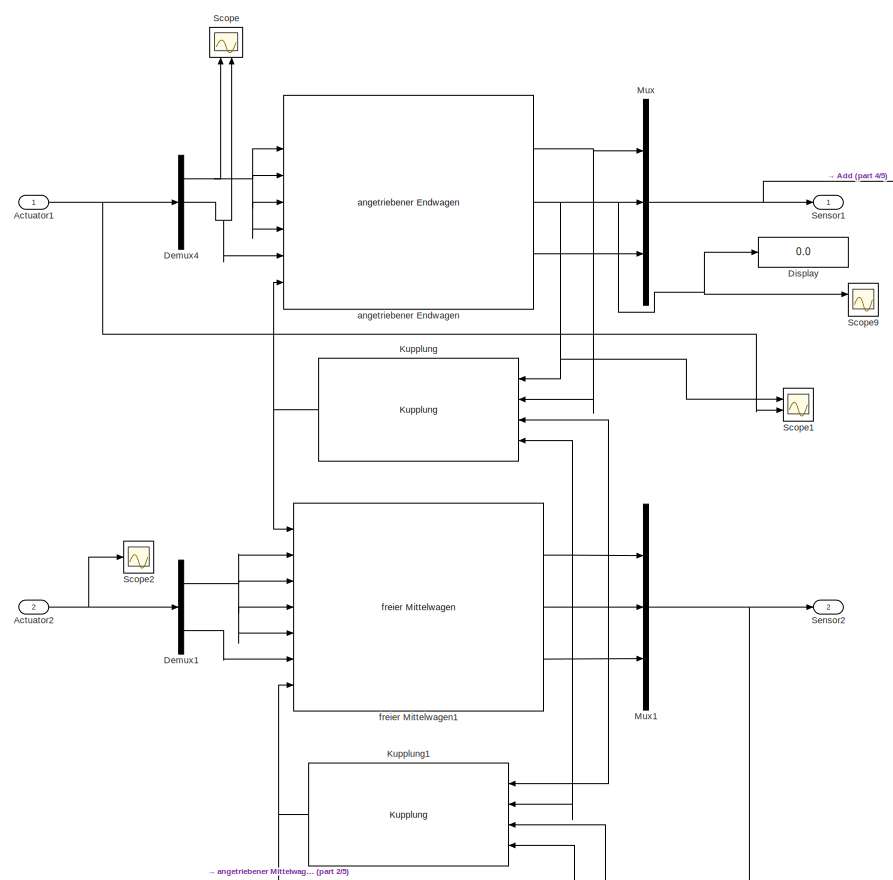
[diagram: Plant/Plant (Train) - part 1/5, top left region]
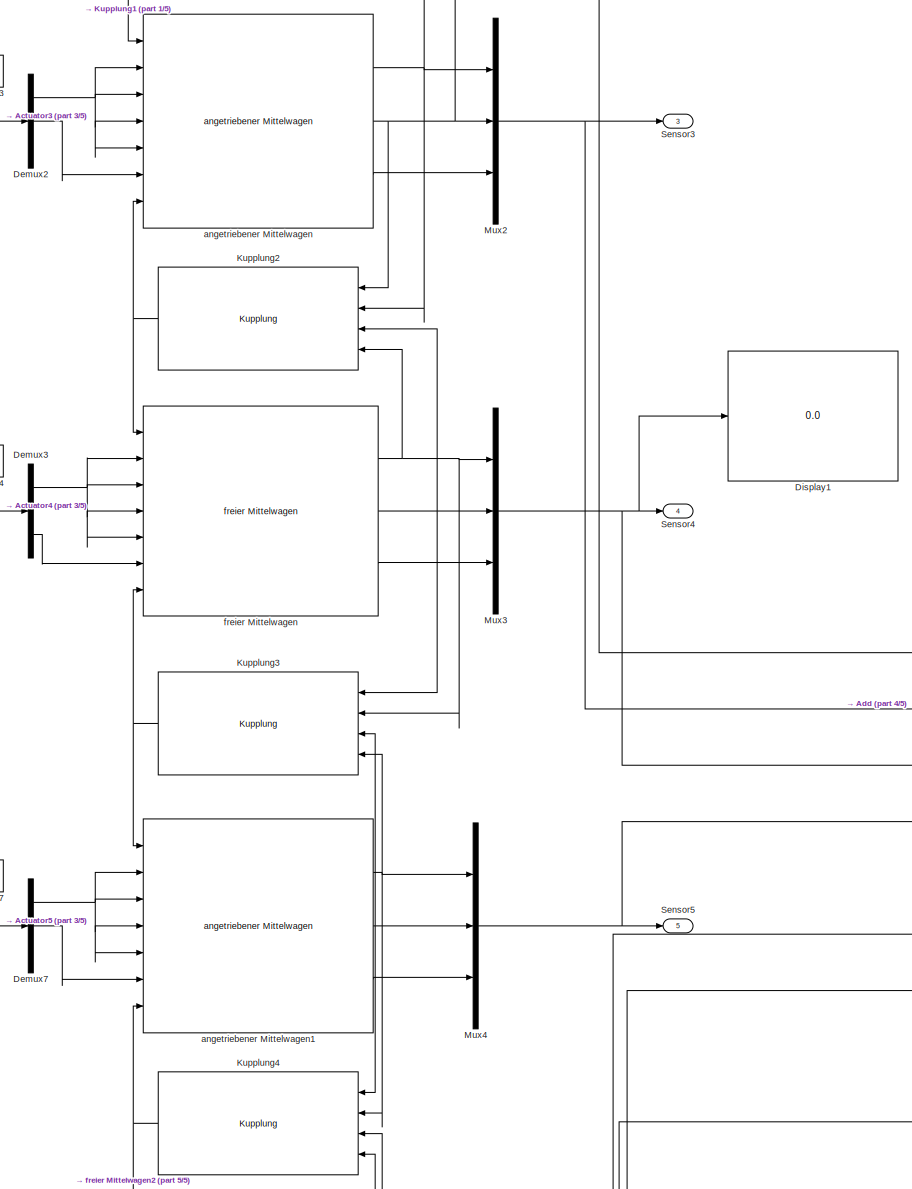
[diagram: Plant/Plant (Train) - part 2/5, central region]
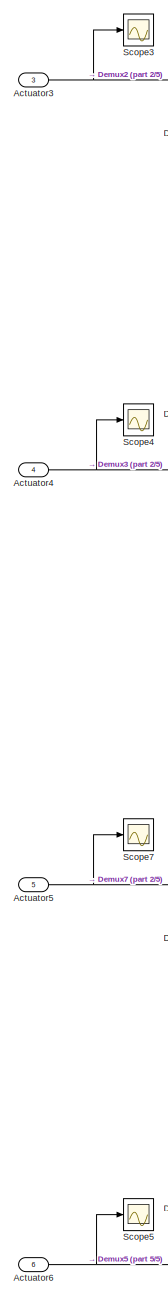
[diagram: Plant/Plant (Train) - part 3/5, middle left region]
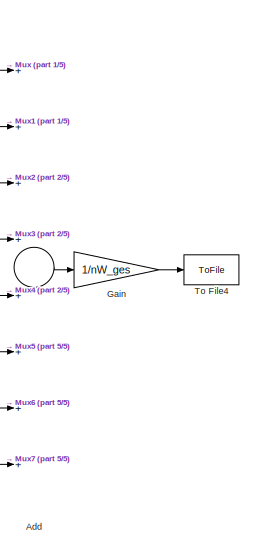
[diagram: Plant/Plant (Train) - part 4/5, middle right region]
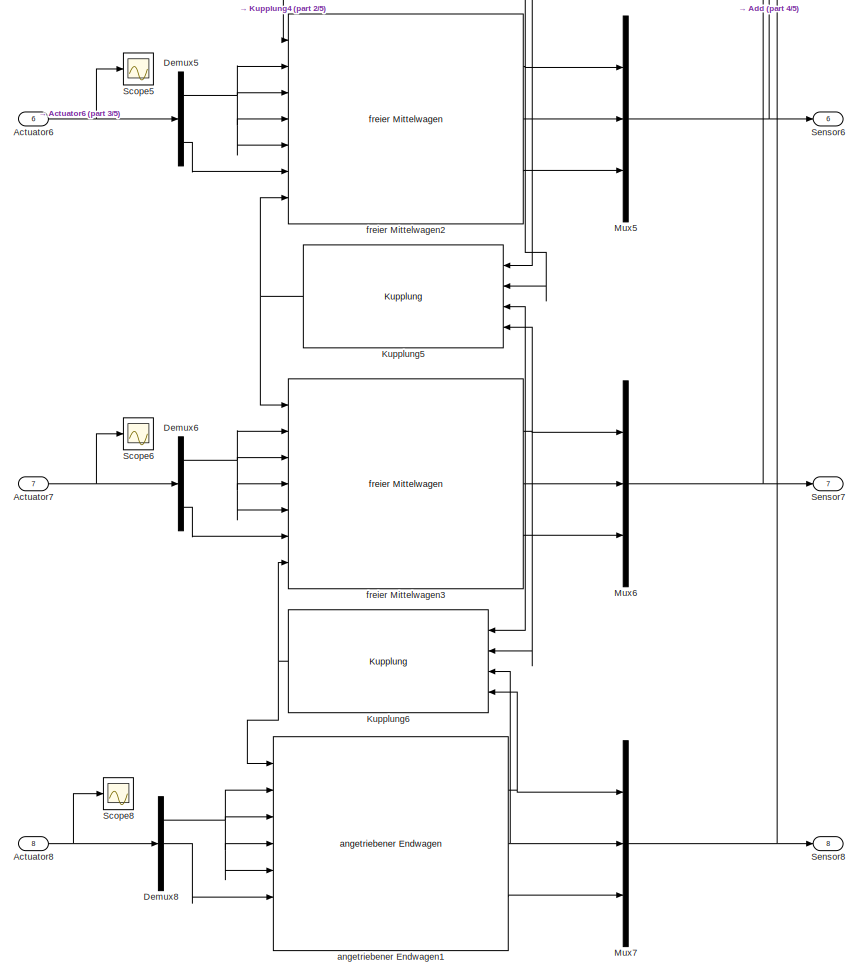
[diagram: Plant/Plant (Train) - part 5/5, bottom left region]
BLOCK [SubSystem] Plant/Plant (Train)
  Ports = [8, 8]
  RequestExecContextInheritance = off
BLOCK [Inport] Plant/Plant (Train)/Actuator1
  IconDisplay = Port number
BLOCK [Inport] Plant/Plant (Train)/Actuator2
  IconDisplay = Port number
  Port = 2
BLOCK [Inport] Plant/Plant (Train)/Actuator3
  IconDisplay = Port number
  Port = 3
BLOCK [Inport] Plant/Plant (Train)/Actuator4
  IconDisplay = Port number
  Port = 4
BLOCK [Inport] Plant/Plant (Train)/Actuator5
  IconDisplay = Port number
  Port = 5
BLOCK [Inport] Plant/Plant (Train)/Actuator6
  IconDisplay = Port number
  Port = 6
BLOCK [Inport] Plant/Plant (Train)/Actuator7
  IconDisplay = Port number
  Port = 7
BLOCK [Inport] Plant/Plant (Train)/Actuator8
  IconDisplay = Port number
  Port = 8
BLOCK [Sum] Plant/Plant (Train)/Add
  InputSameDT = off
  Inputs = ++++++++
  OutDataTypeStr = Inherit: Inherit via internal rule
  Ports = [8, 1]
  SaturateOnIntegerOverflow = off
BLOCK [Demux] Plant/Plant (Train)/Demux1
  DisplayOption = bar
  Outputs = 3
  Ports = [1, 3]
BLOCK [Demux] Plant/Plant (Train)/Demux2
  DisplayOption = bar
  Outputs = 3
  Ports = [1, 3]
BLOCK [Demux] Plant/Plant (Train)/Demux3
  DisplayOption = bar
  Outputs = 3
  Ports = [1, 3]
BLOCK [Demux] Plant/Plant (Train)/Demux4
  DisplayOption = bar
  Outputs = 3
  Ports = [1, 3]
BLOCK [Demux] Plant/Plant (Train)/Demux5
  DisplayOption = bar
  Outputs = 3
  Ports = [1, 3]
BLOCK [Demux] Plant/Plant (Train)/Demux6
  DisplayOption = bar
  Outputs = 3
  Ports = [1, 3]
BLOCK [Demux] Plant/Plant (Train)/Demux7
  DisplayOption = bar
  Outputs = 3
  Ports = [1, 3]
BLOCK [Demux] Plant/Plant (Train)/Demux8
  DisplayOption = bar
  Outputs = 3
  Ports = [1, 3]
BLOCK [Display] Plant/Plant (Train)/Display
  Decimation = 1
  Ports = [1]
BLOCK [Display] Plant/Plant (Train)/Display1
  Decimation = 1
  Ports = [1]
BLOCK [Gain] Plant/Plant (Train)/Gain
  Gain = 1/nW_ges
  OutDataTypeStr = Inherit: Inherit via internal rule
  ParamDataTypeStr = Inherit: Inherit via internal rule
  SaturateOnIntegerOverflow = off
BLOCK [Reference] Plant/Plant (Train)/Kupplung  REF=NCS_Library/Plant (Train)/Kupplung
  Ports = [4, 1]
  SourceBlock = NCS_Library/Plant (Train)/Kupplung
BLOCK [Reference] Plant/Plant (Train)/Kupplung1  REF=NCS_Library/Plant (Train)/Kupplung
  Ports = [4, 1]
  SourceBlock = NCS_Library/Plant (Train)/Kupplung
BLOCK [Reference] Plant/Plant (Train)/Kupplung2  REF=NCS_Library/Plant (Train)/Kupplung
  Ports = [4, 1]
  SourceBlock = NCS_Library/Plant (Train)/Kupplung
BLOCK [Reference] Plant/Plant (Train)/Kupplung3  REF=NCS_Library/Plant (Train)/Kupplung
  Ports = [4, 1]
  SourceBlock = NCS_Library/Plant (Train)/Kupplung
BLOCK [Reference] Plant/Plant (Train)/Kupplung4  REF=NCS_Library/Plant (Train)/Kupplung
  Ports = [4, 1]
  SourceBlock = NCS_Library/Plant (Train)/Kupplung
BLOCK [Reference] Plant/Plant (Train)/Kupplung5  REF=NCS_Library/Plant (Train)/Kupplung
  Ports = [4, 1]
  SourceBlock = NCS_Library/Plant (Train)/Kupplung
BLOCK [Reference] Plant/Plant (Train)/Kupplung6  REF=NCS_Library/Plant (Train)/Kupplung
  Ports = [4, 1]
  SourceBlock = NCS_Library/Plant (Train)/Kupplung
BLOCK [Mux] Plant/Plant (Train)/Mux
  DisplayOption = bar
  Inputs = 3
  Ports = [3, 1]
BLOCK [Mux] Plant/Plant (Train)/Mux1
  DisplayOption = bar
  Inputs = 3
  Ports = [3, 1]
BLOCK [Mux] Plant/Plant (Train)/Mux2
  DisplayOption = bar
  Inputs = 3
  Ports = [3, 1]
BLOCK [Mux] Plant/Plant (Train)/Mux3
  DisplayOption = bar
  Inputs = 3
  Ports = [3, 1]
BLOCK [Mux] Plant/Plant (Train)/Mux4
  DisplayOption = bar
  Inputs = 3
  Ports = [3, 1]
BLOCK [Mux] Plant/Plant (Train)/Mux5
  DisplayOption = bar
  Inputs = 3
  Ports = [3, 1]
BLOCK [Mux] Plant/Plant (Train)/Mux6
  DisplayOption = bar
  Inputs = 3
  Ports = [3, 1]
BLOCK [Mux] Plant/Plant (Train)/Mux7
  DisplayOption = bar
  Inputs = 3
  Ports = [3, 1]
BLOCK [Scope] Plant/Plant (Train)/Scope
  Floating = off
  NumInputPorts = 2
  Ports = [2]
  ScopeSpecificationString = Simulink.scopes.TimeScopeBlockCfg('CurrentConfiguration', extmgr.ConfigurationSet(extmgr.Configuration('Core','General UI',true),extmgr.Configuration('Core','Source UI',true),extmgr.Configuration('Sources','WiredSimulink',true),extmgr.Configuration('Visuals','Time Domain',true,'SerializedDisplays',{struct('MinYLimReal','-1.125','MaxYLimReal','0.125','YLabelReal','','MinYLimMag','0.00000','MaxYLimM...<+1400ch>
BLOCK [Scope] Plant/Plant (Train)/Scope1
  Floating = off
  NumInputPorts = 2
  Ports = [2]
  ScopeSpecificationString = Simulink.scopes.TimeScopeBlockCfg('CurrentConfiguration', extmgr.ConfigurationSet(extmgr.Configuration('Core','General UI',true),extmgr.Configuration('Core','Source UI',true),extmgr.Configuration('Sources','WiredSimulink',true,'DataLoggingVariableName','ScopeData3'),extmgr.Configuration('Visuals','Time Domain',true,'SerializedDisplays',{struct('MinYLimReal','-2.92954','MaxYLimReal','16.36584','YLa...<+1476ch>
BLOCK [Scope] Plant/Plant (Train)/Scope2
  Floating = off
  NumInputPorts = 1
  Ports = [1]
  ScopeSpecificationString = Simulink.scopes.TimeScopeBlockCfg('CurrentConfiguration', extmgr.ConfigurationSet(extmgr.Configuration('Core','General UI',true),extmgr.Configuration('Core','Source UI',true),extmgr.Configuration('Sources','WiredSimulink',true,'DataLoggingVariableName','ScopeData1'),extmgr.Configuration('Visuals','Time Domain',true,'SerializedDisplays',{struct('MinYLimReal','-1.00000','MaxYLimReal','1.00000','YLab...<+1425ch>
BLOCK [Scope] Plant/Plant (Train)/Scope3
  Floating = off
  NumInputPorts = 1
  Ports = [1]
  ScopeSpecificationString = Simulink.scopes.TimeScopeBlockCfg('CurrentConfiguration', extmgr.ConfigurationSet(extmgr.Configuration('Core','General UI',true),extmgr.Configuration('Core','Source UI',true),extmgr.Configuration('Sources','WiredSimulink',true,'DataLoggingVariableName','ScopeData2'),extmgr.Configuration('Visuals','Time Domain',true,'SerializedDisplays',{struct('MinYLimReal','-1.00000','MaxYLimReal','1.00000','YLab...<+1426ch>
BLOCK [Scope] Plant/Plant (Train)/Scope4
  Floating = off
  NumInputPorts = 1
  Ports = [1]
  ScopeSpecificationString = Simulink.scopes.TimeScopeBlockCfg('CurrentConfiguration', extmgr.ConfigurationSet(extmgr.Configuration('Core','General UI',true),extmgr.Configuration('Core','Source UI',true),extmgr.Configuration('Sources','WiredSimulink',true,'DataLoggingVariableName','ScopeData3'),extmgr.Configuration('Visuals','Time Domain',true,'SerializedDisplays',{struct('MinYLimReal','-1.25','MaxYLimReal','1.25','YLabelReal...<+1380ch>
BLOCK [Scope] Plant/Plant (Train)/Scope5
  Floating = off
  NumInputPorts = 1
  Ports = [1]
  ScopeSpecificationString = Simulink.scopes.TimeScopeBlockCfg('CurrentConfiguration', extmgr.ConfigurationSet(extmgr.Configuration('Core','General UI',true),extmgr.Configuration('Core','Source UI',true),extmgr.Configuration('Sources','WiredSimulink',true,'DataLoggingVariableName','ScopeData1'),extmgr.Configuration('Visuals','Time Domain',true,'SerializedDisplays',{struct('MinYLimReal','-1.00000','MaxYLimReal','1.00000','YLab...<+1398ch>
BLOCK [Scope] Plant/Plant (Train)/Scope6
  Floating = off
  NumInputPorts = 1
  Ports = [1]
  ScopeSpecificationString = Simulink.scopes.TimeScopeBlockCfg('CurrentConfiguration', extmgr.ConfigurationSet(extmgr.Configuration('Core','General UI',true),extmgr.Configuration('Core','Source UI',true),extmgr.Configuration('Sources','WiredSimulink',true,'DataLoggingVariableName','ScopeData2'),extmgr.Configuration('Visuals','Time Domain',true,'SerializedDisplays',{struct('MinYLimReal','-1.25','MaxYLimReal','1.25','YLabelReal...<+1380ch>
BLOCK [Scope] Plant/Plant (Train)/Scope7
  Floating = off
  NumInputPorts = 1
  Ports = [1]
  ScopeSpecificationString = Simulink.scopes.TimeScopeBlockCfg('CurrentConfiguration', extmgr.ConfigurationSet(extmgr.Configuration('Core','General UI',true),extmgr.Configuration('Core','Source UI',true),extmgr.Configuration('Sources','WiredSimulink',true,'DataLoggingVariableName','ScopeData3'),extmgr.Configuration('Visuals','Time Domain',true,'SerializedDisplays',{struct('MinYLimReal','-1.15896','MaxYLimReal','0.43063','YLab...<+1425ch>
BLOCK [Scope] Plant/Plant (Train)/Scope8
  Floating = off
  NumInputPorts = 1
  Ports = [1]
  ScopeSpecificationString = Simulink.scopes.TimeScopeBlockCfg('CurrentConfiguration', extmgr.ConfigurationSet(extmgr.Configuration('Core','General UI',true),extmgr.Configuration('Core','Source UI',true),extmgr.Configuration('Sources','WiredSimulink',true,'DataLoggingVariableName','ScopeData4'),extmgr.Configuration('Visuals','Time Domain',true,'SerializedDisplays',{struct('MinYLimReal','-0.87456','MaxYLimReal','0.18384','YLab...<+1444ch>
BLOCK [Scope] Plant/Plant (Train)/Scope9
  Floating = off
  NumInputPorts = 2
  Ports = [2]
  ScopeSpecificationString = Simulink.scopes.TimeScopeBlockCfg('CurrentConfiguration', extmgr.ConfigurationSet(extmgr.Configuration('Core','General UI',true),extmgr.Configuration('Core','Source UI',true),extmgr.Configuration('Sources','WiredSimulink',true,'DataLoggingVariableName','ScopeData1'),extmgr.Configuration('Visuals','Time Domain',true,'SerializedDisplays',{struct('MinYLimReal','-10.41667','MaxYLimReal','93.75','YLabe...<+1461ch>
BLOCK [Outport] Plant/Plant (Train)/Sensor1
  IconDisplay = Port number
BLOCK [Outport] Plant/Plant (Train)/Sensor2
  IconDisplay = Port number
  Port = 2
BLOCK [Outport] Plant/Plant (Train)/Sensor3
  IconDisplay = Port number
  Port = 3
BLOCK [Outport] Plant/Plant (Train)/Sensor4
  IconDisplay = Port number
  Port = 4
BLOCK [Outport] Plant/Plant (Train)/Sensor5
  IconDisplay = Port number
  Port = 5
BLOCK [Outport] Plant/Plant (Train)/Sensor6
  IconDisplay = Port number
  Port = 6
BLOCK [Outport] Plant/Plant (Train)/Sensor7
  IconDisplay = Port number
  Port = 7
BLOCK [Outport] Plant/Plant (Train)/Sensor8
  IconDisplay = Port number
  Port = 8
BLOCK [ToFile] Plant/Plant (Train)/To File4
  Filename = Recorder/Train.mat
  MatrixName = Recorder
  Ports = [1]
BLOCK [Reference] Plant/Plant (Train)/angetriebener Endwagen  REF=NCS_Library/Plant (Train)/angetriebener Endwagen
  Ports = [7, 3]
  SourceBlock = NCS_Library/Plant (Train)/angetriebener Endwagen
BLOCK [Reference] Plant/Plant (Train)/angetriebener Endwagen1  REF=NCS_Library/Plant (Train)/angetriebener Endwagen
  Ports = [7, 3]
  SourceBlock = NCS_Library/Plant (Train)/angetriebener Endwagen
BLOCK [Reference] Plant/Plant (Train)/angetriebener Mittelwagen  REF=NCS_Library/Plant (Train)/angetriebener Mittelwagen
  Ports = [7, 3]
  SourceBlock = NCS_Library/Plant (Train)/angetriebener Mittelwagen
BLOCK [Reference] Plant/Plant (Train)/angetriebener Mittelwagen1  REF=NCS_Library/Plant (Train)/angetriebener Mittelwagen
  Ports = [7, 3]
  SourceBlock = NCS_Library/Plant (Train)/angetriebener Mittelwagen
BLOCK [Reference] Plant/Plant (Train)/freier Mittelwagen  REF=NCS_Library/Plant (Train)/freier Mittelwagen
  Ports = [7, 3]
  SourceBlock = NCS_Library/Plant (Train)/freier Mittelwagen
BLOCK [Reference] Plant/Plant (Train)/freier Mittelwagen1  REF=NCS_Library/Plant (Train)/freier Mittelwagen
  Ports = [7, 3]
  SourceBlock = NCS_Library/Plant (Train)/freier Mittelwagen
BLOCK [Reference] Plant/Plant (Train)/freier Mittelwagen2  REF=NCS_Library/Plant (Train)/freier Mittelwagen
  Ports = [7, 3]
  SourceBlock = NCS_Library/Plant (Train)/freier Mittelwagen
BLOCK [Reference] Plant/Plant (Train)/freier Mittelwagen3  REF=NCS_Library/Plant (Train)/freier Mittelwagen
  Ports = [7, 3]
  SourceBlock = NCS_Library/Plant (Train)/freier Mittelwagen
BLOCK [SubSystem] Plant/Sensor to Network
  Ports = [8]
  RequestExecContextInheritance = off
BLOCK [Display] Plant/Sensor to Network/Display
  Decimation = 1
  Ports = [1]
BLOCK [Display] Plant/Sensor to Network/Display1
  Decimation = 1
  Ports = [1]
BLOCK [Goto] Plant/Sensor to Network/GoToNetwork1
  GotoTag = y_M_1
  TagVisibility = global
BLOCK [Goto] Plant/Sensor to Network/GoToNetwork2
  GotoTag = y_M_2
  TagVisibility = global
BLOCK [Goto] Plant/Sensor to Network/GoToNetwork3
  GotoTag = y_M_3
  TagVisibility = global
BLOCK [Goto] Plant/Sensor to Network/GoToNetwork4
  GotoTag = y_M_4
  TagVisibility = global
BLOCK [Goto] Plant/Sensor to Network/GoToNetwork5
  GotoTag = y_M_5
  TagVisibility = global
BLOCK [Goto] Plant/Sensor to Network/GoToNetwork6
  GotoTag = y_M_6
  TagVisibility = global
BLOCK [Goto] Plant/Sensor to Network/GoToNetwork7
  GotoTag = y_M_7
  TagVisibility = global
BLOCK [Goto] Plant/Sensor to Network/GoToNetwork8
  GotoTag = y_M_8
  TagVisibility = global
BLOCK [Inport] Plant/Sensor to Network/Sensor1
  IconDisplay = Port number
BLOCK [Inport] Plant/Sensor to Network/Sensor2
  IconDisplay = Port number
  Port = 2
BLOCK [Inport] Plant/Sensor to Network/Sensor3
  IconDisplay = Port number
  Port = 3
BLOCK [Inport] Plant/Sensor to Network/Sensor4
  IconDisplay = Port number
  Port = 4
BLOCK [Inport] Plant/Sensor to Network/Sensor5
  IconDisplay = Port number
  Port = 5
BLOCK [Inport] Plant/Sensor to Network/Sensor6
  IconDisplay = Port number
  Port = 6
BLOCK [Inport] Plant/Sensor to Network/Sensor7
  IconDisplay = Port number
  Port = 7
BLOCK [Inport] Plant/Sensor to Network/Sensor8
  IconDisplay = Port number
  Port = 8
BLOCK [TransportDelay] Plant/Sensor to Network/Transport Delay
  DelayTime = CycleTime_Sensor
  InitialOutput = [ 0 v0 0]
  Ports = [1, 1]
BLOCK [TransportDelay] Plant/Sensor to Network/Transport Delay1
  DelayTime = CycleTime_Sensor
  InitialOutput = [ 0 v0 0]
  Ports = [1, 1]
BLOCK [TransportDelay] Plant/Sensor to Network/Transport Delay2
  DelayTime = CycleTime_Sensor
  InitialOutput = [ 0 v0 0]
  Ports = [1, 1]
BLOCK [TransportDelay] Plant/Sensor to Network/Transport Delay3
  DelayTime = CycleTime_Sensor
  InitialOutput = [ 0 v0 0]
  Ports = [1, 1]
BLOCK [TransportDelay] Plant/Sensor to Network/Transport Delay4
  DelayTime = CycleTime_Sensor
  InitialOutput = [ 0 v0 0]
  Ports = [1, 1]
BLOCK [TransportDelay] Plant/Sensor to Network/Transport Delay5
  DelayTime = CycleTime_Sensor
  InitialOutput = [ 0 v0 0]
  Ports = [1, 1]
BLOCK [TransportDelay] Plant/Sensor to Network/Transport Delay6
  DelayTime = CycleTime_Sensor
  InitialOutput = [ 0 v0 0]
  Ports = [1, 1]
BLOCK [TransportDelay] Plant/Sensor to Network/Transport Delay7
  DelayTime = CycleTime_Sensor
  InitialOutput = [ 0 v0 0]
  Ports = [1, 1]
ANNOTATION Controller: k_P = 0.35
ANNOTATION Network/Ethernet (Ring) CAN/Consist 1/Fieldbus 1/Gateway1/CAN Interface/CAN Interface: Receiver
ANNOTATION Network/Ethernet (Ring) CAN/Consist 1/Fieldbus 1/Gateway1/CAN Interface/CAN Interface: Transmitter
ANNOTATION Network/Ethernet (Ring) CAN/Consist 1/Fieldbus 1/Gateway1/CAN Interface/Entry Control: new entity in buffer AND buffer is NOT flushed
ANNOTATION Network/Ethernet (Ring) CAN/Consist 1/Fieldbus 1/Gateway1/CAN Interface/Entry Control: refresh
ANNOTATION Network/Ethernet (Ring) CAN/Consist 1/Fieldbus 1/Gateway1/CAN Interface/Gate Control: Number condition
ANNOTATION Network/Ethernet (Ring) CAN/Consist 1/Fieldbus 1/Gateway1/CAN Interface/Gate Control: Time condition
ANNOTATION Network/Ethernet (Ring) CAN/Consist 1/Fieldbus 1/Gateway1/Ethernet Interface/User Interface: User defined Parameters
ANNOTATION Network/Ethernet (Ring) CAN/Consist 2/ED/User Interface: User defined Parameters
ANNOTATION Network/Reference: Consist 1
ANNOTATION Network/Reference: Consist 2
LINE Controller/FromConsist1:1 -> Controller/Train Controller with PID1:1
LINE Controller/FromConsist2:1 -> Controller/Train Controller with PID2:1
NET Controller/Subsystem:1 -> Controller/Train Controller with PID1:2, Controller/Train Controller with PID2:2
NET Controller/Train Controller with PID1:1 -> Controller/Display1:1, Controller/GoToConsist1:1
NET Controller/Train Controller with PID2:1 -> Controller/Display:1, Controller/GoToConsist2:1
LINE Network/Ethernet (Line) CAN/Consist 1/Burst Device1:1 -> Network/Ethernet (Line) CAN/Consist 1/Ethernet_2-port_Switch1:2
LINE Network/Ethernet (Line) CAN/Consist 1/Burst Device:1 -> Network/Ethernet (Line) CAN/Consist 1/Ethernet_2-port_Switch:2
NET Network/Ethernet (Line) CAN/Consist 1/Bus Selector:1 -> Network/Ethernet (Line) CAN/Consist 1/Output Control:1, Network/Ethernet (Line) CAN/Consist 1/Redundant Device Control:1
LINE Network/Ethernet (Line) CAN/Consist 1/Cable1:1 -> Network/Ethernet (Line) CAN/Consist 1/Ethernet_3-port_switch:1
LINE Network/Ethernet (Line) CAN/Consist 1/Cable1:2 -> Network/Ethernet (Line) CAN/Consist 1/Ethernet_3-port_switch1:2
LINE Network/Ethernet (Line) CAN/Consist 1/Cable2:1 -> Network/Ethernet (Line) CAN/Consist 1/Ethernet_3-port_switch1:1
LINE Network/Ethernet (Line) CAN/Consist 1/Cable2:2 -> Network/Ethernet (Line) CAN/Consist 1/Ethernet_3-port_switch2:2
LINE Network/Ethernet (Line) CAN/Consist 1/Cable3:1 -> Network/Ethernet (Line) CAN/Consist 1/Ethernet_3-port_switch2:1
LINE Network/Ethernet (Line) CAN/Consist 1/Cable3:2 -> Network/Ethernet (Line) CAN/Consist 1/Ethernet_2-port_Switch1:1
LINE Network/Ethernet (Line) CAN/Consist 1/Cable:1 -> Network/Ethernet (Line) CAN/Consist 1/Ethernet_2-port_Switch:1
LINE Network/Ethernet (Line) CAN/Consist 1/Cable:2 -> Network/Ethernet (Line) CAN/Consist 1/Ethernet_3-port_switch:2
LINE Network/Ethernet (Line) CAN/Consist 1/ED1:1 -> Network/Ethernet (Line) CAN/Consist 1/Redundant Device Control:2
LINE Network/Ethernet (Line) CAN/Consist 1/ED1:2 -> Network/Ethernet (Line) CAN/Consist 1/Terminator1:1
LINE Network/Ethernet (Line) CAN/Consist 1/ED1:3 -> Network/Ethernet (Line) CAN/Consist 1/Output Control:4
LINE Network/Ethernet (Line) CAN/Consist 1/ED:1 -> Network/Ethernet (Line) CAN/Consist 1/Ethernet_3-port_switch:3
LINE Network/Ethernet (Line) CAN/Consist 1/ED:2 -> Network/Ethernet (Line) CAN/Consist 1/Bus Selector:1
LINE Network/Ethernet (Line) CAN/Consist 1/ED:3 -> Network/Ethernet (Line) CAN/Consist 1/Output Control:2
LINE Network/Ethernet (Line) CAN/Consist 1/Ethernet_2-port_Switch1:1 -> Network/Ethernet (Line) CAN/Consist 1/Cable3:1
LINE Network/Ethernet (Line) CAN/Consist 1/Ethernet_2-port_Switch1:2 -> Network/Ethernet (Line) CAN/Consist 1/Burst Device1:1
LINE Network/Ethernet (Line) CAN/Consist 1/Ethernet_2-port_Switch:1 -> Network/Ethernet (Line) CAN/Consist 1/Cable:2
LINE Network/Ethernet (Line) CAN/Consist 1/Ethernet_2-port_Switch:2 -> Network/Ethernet (Line) CAN/Consist 1/Burst Device:1
LINE Network/Ethernet (Line) CAN/Consist 1/Ethernet_3-port_switch1:1 -> Network/Ethernet (Line) CAN/Consist 1/Cable1:1
LINE Network/Ethernet (Line) CAN/Consist 1/Ethernet_3-port_switch1:2 -> Network/Ethernet (Line) CAN/Consist 1/Cable2:2
LINE Network/Ethernet (Line) CAN/Consist 1/Ethernet_3-port_switch1:3 -> Network/Ethernet (Line) CAN/Consist 1/Fieldbus 1:1
LINE Network/Ethernet (Line) CAN/Consist 1/Ethernet_3-port_switch2:1 -> Network/Ethernet (Line) CAN/Consist 1/Cable2:1
LINE Network/Ethernet (Line) CAN/Consist 1/Ethernet_3-port_switch2:2 -> Network/Ethernet (Line) CAN/Consist 1/Cable3:2
LINE Network/Ethernet (Line) CAN/Consist 1/Ethernet_3-port_switch2:3 -> Network/Ethernet (Line) CAN/Consist 1/ED1:1
LINE Network/Ethernet (Line) CAN/Consist 1/Ethernet_3-port_switch:1 -> Network/Ethernet (Line) CAN/Consist 1/Cable:1
LINE Network/Ethernet (Line) CAN/Consist 1/Ethernet_3-port_switch:2 -> Network/Ethernet (Line) CAN/Consist 1/Cable1:2
LINE Network/Ethernet (Line) CAN/Consist 1/Ethernet_3-port_switch:3 -> Network/Ethernet (Line) CAN/Consist 1/ED:1
LINE Network/Ethernet (Line) CAN/Consist 1/Fieldbus 1/CAN Node 10:1 -> Network/Ethernet (Line) CAN/Consist 1/Fieldbus 1/Terminator10:1
LINE Network/Ethernet (Line) CAN/Consist 1/Fieldbus 1/CAN Node 11:1 -> Network/Ethernet (Line) CAN/Consist 1/Fieldbus 1/Terminator9:1
LINE Network/Ethernet (Line) CAN/Consist 1/Fieldbus 1/CAN Node 12:1 -> Network/Ethernet (Line) CAN/Consist 1/Fieldbus 1/MuxCAN:3
LINE Network/Ethernet (Line) CAN/Consist 1/Fieldbus 1/CAN Node 13:1 -> Network/Ethernet (Line) CAN/Consist 1/Fieldbus 1/Terminator11:1
LINE Network/Ethernet (Line) CAN/Consist 1/Fieldbus 1/CAN Node 14:1 -> Network/Ethernet (Line) CAN/Consist 1/Fieldbus 1/Terminator13:1
LINE Network/Ethernet (Line) CAN/Consist 1/Fieldbus 1/CAN Node 15:1 -> Network/Ethernet (Line) CAN/Consist 1/Fieldbus 1/Terminator12:1
LINE Network/Ethernet (Line) CAN/Consist 1/Fieldbus 1/CAN Node 16:1 -> Network/Ethernet (Line) CAN/Consist 1/Fieldbus 1/MuxCAN:4
LINE Network/Ethernet (Line) CAN/Consist 1/Fieldbus 1/CAN Node 1:1 -> Network/Ethernet (Line) CAN/Consist 1/Fieldbus 1/Terminator:1
LINE Network/Ethernet (Line) CAN/Consist 1/Fieldbus 1/CAN Node 2:1 -> Network/Ethernet (Line) CAN/Consist 1/Fieldbus 1/Terminator2:1
LINE Network/Ethernet (Line) CAN/Consist 1/Fieldbus 1/CAN Node 3:1 -> Network/Ethernet (Line) CAN/Consist 1/Fieldbus 1/Terminator1:1
LINE Network/Ethernet (Line) CAN/Consist 1/Fieldbus 1/CAN Node 4:1 -> Network/Ethernet (Line) CAN/Consist 1/Fieldbus 1/MuxCAN:1
LINE Network/Ethernet (Line) CAN/Consist 1/Fieldbus 1/CAN Node 5:1 -> Network/Ethernet (Line) CAN/Consist 1/Fieldbus 1/Terminator5:1
LINE Network/Ethernet (Line) CAN/Consist 1/Fieldbus 1/CAN Node 6:1 -> Network/Ethernet (Line) CAN/Consist 1/Fieldbus 1/Terminator7:1
LINE Network/Ethernet (Line) CAN/Consist 1/Fieldbus 1/CAN Node 7:1 -> Network/Ethernet (Line) CAN/Consist 1/Fieldbus 1/Terminator6:1
LINE Network/Ethernet (Line) CAN/Consist 1/Fieldbus 1/CAN Node 8:1 -> Network/Ethernet (Line) CAN/Consist 1/Fieldbus 1/MuxCAN:2
LINE Network/Ethernet (Line) CAN/Consist 1/Fieldbus 1/CAN Node 9:1 -> Network/Ethernet (Line) CAN/Consist 1/Fieldbus 1/Terminator8:1
LINE Network/Ethernet (Line) CAN/Consist 1/Fieldbus 1/Demux1:1 -> Network/Ethernet (Line) CAN/Consist 1/Fieldbus 1/CAN Node 5:1
LINE Network/Ethernet (Line) CAN/Consist 1/Fieldbus 1/Demux1:2 -> Network/Ethernet (Line) CAN/Consist 1/Fieldbus 1/CAN Node 7:1
LINE Network/Ethernet (Line) CAN/Consist 1/Fieldbus 1/Demux1:3 -> Network/Ethernet (Line) CAN/Consist 1/Fieldbus 1/CAN Node 6:1
LINE Network/Ethernet (Line) CAN/Consist 1/Fieldbus 1/Demux2:1 -> Network/Ethernet (Line) CAN/Consist 1/Fieldbus 1/CAN Node 9:1
LINE Network/Ethernet (Line) CAN/Consist 1/Fieldbus 1/Demux2:2 -> Network/Ethernet (Line) CAN/Consist 1/Fieldbus 1/CAN Node 11:1
LINE Network/Ethernet (Line) CAN/Consist 1/Fieldbus 1/Demux2:3 -> Network/Ethernet (Line) CAN/Consist 1/Fieldbus 1/CAN Node 10:1
LINE Network/Ethernet (Line) CAN/Consist 1/Fieldbus 1/Demux3:1 -> Network/Ethernet (Line) CAN/Consist 1/Fieldbus 1/CAN Node 13:1
LINE Network/Ethernet (Line) CAN/Consist 1/Fieldbus 1/Demux3:2 -> Network/Ethernet (Line) CAN/Consist 1/Fieldbus 1/CAN Node 15:1
LINE Network/Ethernet (Line) CAN/Consist 1/Fieldbus 1/Demux3:3 -> Network/Ethernet (Line) CAN/Consist 1/Fieldbus 1/CAN Node 14:1
LINE Network/Ethernet (Line) CAN/Consist 1/Fieldbus 1/Demux:1 -> Network/Ethernet (Line) CAN/Consist 1/Fieldbus 1/CAN Node 1:1
LINE Network/Ethernet (Line) CAN/Consist 1/Fieldbus 1/Demux:2 -> Network/Ethernet (Line) CAN/Consist 1/Fieldbus 1/CAN Node 3:1
LINE Network/Ethernet (Line) CAN/Consist 1/Fieldbus 1/Demux:3 -> Network/Ethernet (Line) CAN/Consist 1/Fieldbus 1/CAN Node 2:1
LINE Network/Ethernet (Line) CAN/Consist 1/Fieldbus 1/FromPlant1:1 -> Network/Ethernet (Line) CAN/Consist 1/Fieldbus 1/Demux:1
LINE Network/Ethernet (Line) CAN/Consist 1/Fieldbus 1/FromPlant2:1 -> Network/Ethernet (Line) CAN/Consist 1/Fieldbus 1/Demux1:1
LINE Network/Ethernet (Line) CAN/Consist 1/Fieldbus 1/FromPlant3:1 -> Network/Ethernet (Line) CAN/Consist 1/Fieldbus 1/Demux2:1
LINE Network/Ethernet (Line) CAN/Consist 1/Fieldbus 1/FromPlant4:1 -> Network/Ethernet (Line) CAN/Consist 1/Fieldbus 1/Demux3:1
LINE Network/Ethernet (Line) CAN/Consist 1/Fieldbus 1/Gateway1:1 -> Network/Ethernet (Line) CAN/Consist 1/Fieldbus 1/OutToEthernet:1
LINE Network/Ethernet (Line) CAN/Consist 1/Fieldbus 1/Ground1:1 -> Network/Ethernet (Line) CAN/Consist 1/Fieldbus 1/CAN Node 8:1
LINE Network/Ethernet (Line) CAN/Consist 1/Fieldbus 1/Ground2:1 -> Network/Ethernet (Line) CAN/Consist 1/Fieldbus 1/CAN Node 12:1
LINE Network/Ethernet (Line) CAN/Consist 1/Fieldbus 1/Ground3:1 -> Network/Ethernet (Line) CAN/Consist 1/Fieldbus 1/CAN Node 16:1
LINE Network/Ethernet (Line) CAN/Consist 1/Fieldbus 1/Ground:1 -> Network/Ethernet (Line) CAN/Consist 1/Fieldbus 1/CAN Node 4:1
LINE Network/Ethernet (Line) CAN/Consist 1/Fieldbus 1/InFromEthernet:1 -> Network/Ethernet (Line) CAN/Consist 1/Fieldbus 1/Gateway1:1
LINE Network/Ethernet (Line) CAN/Consist 1/Fieldbus 1/MuxCAN:1 -> Network/Ethernet (Line) CAN/Consist 1/Fieldbus 1/U:1
LINE Network/Ethernet (Line) CAN/Consist 1/Fieldbus 1:1 -> Network/Ethernet (Line) CAN/Consist 1/Ethernet_3-port_switch1:3
LINE Network/Ethernet (Line) CAN/Consist 1/Fieldbus 1:2 -> Network/Ethernet (Line) CAN/Consist 1/Output Control:3
LINE Network/Ethernet (Line) CAN/Consist 1/FromController1:1 -> Network/Ethernet (Line) CAN/Consist 1/ED1:2
LINE Network/Ethernet (Line) CAN/Consist 1/FromController2:1 -> Network/Ethernet (Line) CAN/Consist 1/ED:2
LINE Network/Ethernet (Line) CAN/Consist 1/Output Control/<#Receive>:1 -> Network/Ethernet (Line) CAN/Consist 1/Output Control/Watch Dog:1
LINE Network/Ethernet (Line) CAN/Consist 1/Output Control/Logical Operator:1 -> Network/Ethernet (Line) CAN/Consist 1/Output Control/Switch:2
LINE Network/Ethernet (Line) CAN/Consist 1/Output Control/Mux:1 -> Network/Ethernet (Line) CAN/Consist 1/Output Control/Out1:1
LINE Network/Ethernet (Line) CAN/Consist 1/Output Control/Switch:1 -> Network/Ethernet (Line) CAN/Consist 1/Output Control/Mux:1
LINE Network/Ethernet (Line) CAN/Consist 1/Output Control/U:1 -> Network/Ethernet (Line) CAN/Consist 1/Output Control/Mux:2
LINE Network/Ethernet (Line) CAN/Consist 1/Output Control/Watch Dog:1 -> Network/Ethernet (Line) CAN/Consist 1/Output Control/Logical Operator:1
LINE Network/Ethernet (Line) CAN/Consist 1/Output Control/Y_M1:1 -> Network/Ethernet (Line) CAN/Consist 1/Output Control/Switch:1
LINE Network/Ethernet (Line) CAN/Consist 1/Output Control/Y_M2:1 -> Network/Ethernet (Line) CAN/Consist 1/Output Control/Switch:3
LINE Network/Ethernet (Line) CAN/Consist 1/Output Control:1 -> Network/Ethernet (Line) CAN/Consist 1/out1:1
LINE Network/Ethernet (Line) CAN/Consist 1/Redundant Device Control/<#Receive>:1 -> Network/Ethernet (Line) CAN/Consist 1/Redundant Device Control/Watch Dog:1
LINE Network/Ethernet (Line) CAN/Consist 1/Redundant Device Control/Add Constant:1 -> Network/Ethernet (Line) CAN/Consist 1/Redundant Device Control/Message Send:1
LINE Network/Ethernet (Line) CAN/Consist 1/Redundant Device Control/Entity Output Switch:1 -> Network/Ethernet (Line) CAN/Consist 1/Redundant Device Control/No Failure:1
LINE Network/Ethernet (Line) CAN/Consist 1/Redundant Device Control/Entity Output Switch:2 -> Network/Ethernet (Line) CAN/Consist 1/Redundant Device Control/OutTx:1
LINE Network/Ethernet (Line) CAN/Consist 1/Redundant Device Control/InTx:1 -> Network/Ethernet (Line) CAN/Consist 1/Redundant Device Control/Entity Output Switch:2
LINE Network/Ethernet (Line) CAN/Consist 1/Redundant Device Control/Message Send:1 -> Network/Ethernet (Line) CAN/Consist 1/Redundant Device Control/Entity Output Switch:1
LINE Network/Ethernet (Line) CAN/Consist 1/Redundant Device Control/No Failure:1 -> Network/Ethernet (Line) CAN/Consist 1/Redundant Device Control/Display:1
LINE Network/Ethernet (Line) CAN/Consist 1/Redundant Device Control/Watch Dog:1 -> Network/Ethernet (Line) CAN/Consist 1/Redundant Device Control/Add Constant:1
LINE Network/Ethernet (Line) CAN/Consist 1/Redundant Device Control:1 -> Network/Ethernet (Line) CAN/Consist 1/Ethernet_3-port_switch2:3
LINE Network/Ethernet (Line) CAN/Consist 1:1 -> Network/Ethernet (Line) CAN/Mux Consist:1
LINE Network/Ethernet (Line) CAN/Consist 2/Burst Device1:1 -> Network/Ethernet (Line) CAN/Consist 2/Ethernet_2-port_Switch1:2
LINE Network/Ethernet (Line) CAN/Consist 2/Burst Device:1 -> Network/Ethernet (Line) CAN/Consist 2/Ethernet_2-port_Switch:2
NET Network/Ethernet (Line) CAN/Consist 2/Bus Selector:1 -> Network/Ethernet (Line) CAN/Consist 2/Output Control:1, Network/Ethernet (Line) CAN/Consist 2/Redundant Device Control:1
LINE Network/Ethernet (Line) CAN/Consist 2/Cable1:1 -> Network/Ethernet (Line) CAN/Consist 2/Ethernet_3-port_switch:1
LINE Network/Ethernet (Line) CAN/Consist 2/Cable1:2 -> Network/Ethernet (Line) CAN/Consist 2/Ethernet_3-port_switch1:2
LINE Network/Ethernet (Line) CAN/Consist 2/Cable2:1 -> Network/Ethernet (Line) CAN/Consist 2/Ethernet_3-port_switch1:1
LINE Network/Ethernet (Line) CAN/Consist 2/Cable2:2 -> Network/Ethernet (Line) CAN/Consist 2/Ethernet_3-port_switch2:2
LINE Network/Ethernet (Line) CAN/Consist 2/Cable3:1 -> Network/Ethernet (Line) CAN/Consist 2/Ethernet_3-port_switch2:1
LINE Network/Ethernet (Line) CAN/Consist 2/Cable3:2 -> Network/Ethernet (Line) CAN/Consist 2/Ethernet_2-port_Switch1:1
LINE Network/Ethernet (Line) CAN/Consist 2/Cable:1 -> Network/Ethernet (Line) CAN/Consist 2/Ethernet_2-port_Switch:1
LINE Network/Ethernet (Line) CAN/Consist 2/Cable:2 -> Network/Ethernet (Line) CAN/Consist 2/Ethernet_3-port_switch:2
LINE Network/Ethernet (Line) CAN/Consist 2/ED1:1 -> Network/Ethernet (Line) CAN/Consist 2/Redundant Device Control:2
LINE Network/Ethernet (Line) CAN/Consist 2/ED1:2 -> Network/Ethernet (Line) CAN/Consist 2/Terminator1:1
LINE Network/Ethernet (Line) CAN/Consist 2/ED1:3 -> Network/Ethernet (Line) CAN/Consist 2/Output Control:4
LINE Network/Ethernet (Line) CAN/Consist 2/ED:1 -> Network/Ethernet (Line) CAN/Consist 2/Ethernet_3-port_switch:3
LINE Network/Ethernet (Line) CAN/Consist 2/ED:2 -> Network/Ethernet (Line) CAN/Consist 2/Bus Selector:1
LINE Network/Ethernet (Line) CAN/Consist 2/ED:3 -> Network/Ethernet (Line) CAN/Consist 2/Output Control:2
LINE Network/Ethernet (Line) CAN/Consist 2/Ethernet_2-port_Switch1:1 -> Network/Ethernet (Line) CAN/Consist 2/Cable3:1
LINE Network/Ethernet (Line) CAN/Consist 2/Ethernet_2-port_Switch1:2 -> Network/Ethernet (Line) CAN/Consist 2/Burst Device1:1
LINE Network/Ethernet (Line) CAN/Consist 2/Ethernet_2-port_Switch:1 -> Network/Ethernet (Line) CAN/Consist 2/Cable:2
LINE Network/Ethernet (Line) CAN/Consist 2/Ethernet_2-port_Switch:2 -> Network/Ethernet (Line) CAN/Consist 2/Burst Device:1
LINE Network/Ethernet (Line) CAN/Consist 2/Ethernet_3-port_switch1:1 -> Network/Ethernet (Line) CAN/Consist 2/Cable1:1
LINE Network/Ethernet (Line) CAN/Consist 2/Ethernet_3-port_switch1:2 -> Network/Ethernet (Line) CAN/Consist 2/Cable2:2
LINE Network/Ethernet (Line) CAN/Consist 2/Ethernet_3-port_switch1:3 -> Network/Ethernet (Line) CAN/Consist 2/Fieldbus 2:1
LINE Network/Ethernet (Line) CAN/Consist 2/Ethernet_3-port_switch2:1 -> Network/Ethernet (Line) CAN/Consist 2/Cable2:1
LINE Network/Ethernet (Line) CAN/Consist 2/Ethernet_3-port_switch2:2 -> Network/Ethernet (Line) CAN/Consist 2/Cable3:2
LINE Network/Ethernet (Line) CAN/Consist 2/Ethernet_3-port_switch2:3 -> Network/Ethernet (Line) CAN/Consist 2/ED1:1
LINE Network/Ethernet (Line) CAN/Consist 2/Ethernet_3-port_switch:1 -> Network/Ethernet (Line) CAN/Consist 2/Cable:1
LINE Network/Ethernet (Line) CAN/Consist 2/Ethernet_3-port_switch:2 -> Network/Ethernet (Line) CAN/Consist 2/Cable1:2
LINE Network/Ethernet (Line) CAN/Consist 2/Ethernet_3-port_switch:3 -> Network/Ethernet (Line) CAN/Consist 2/ED:1
LINE Network/Ethernet (Line) CAN/Consist 2/Fieldbus 2/CAN Node 10:1 -> Network/Ethernet (Line) CAN/Consist 2/Fieldbus 2/Terminator9:1
LINE Network/Ethernet (Line) CAN/Consist 2/Fieldbus 2/CAN Node 11:1 -> Network/Ethernet (Line) CAN/Consist 2/Fieldbus 2/Terminator10:1
LINE Network/Ethernet (Line) CAN/Consist 2/Fieldbus 2/CAN Node 12:1 -> Network/Ethernet (Line) CAN/Consist 2/Fieldbus 2/MuxCAN:3
LINE Network/Ethernet (Line) CAN/Consist 2/Fieldbus 2/CAN Node 13:1 -> Network/Ethernet (Line) CAN/Consist 2/Fieldbus 2/Terminator11:1
LINE Network/Ethernet (Line) CAN/Consist 2/Fieldbus 2/CAN Node 14:1 -> Network/Ethernet (Line) CAN/Consist 2/Fieldbus 2/Terminator12:1
LINE Network/Ethernet (Line) CAN/Consist 2/Fieldbus 2/CAN Node 15:1 -> Network/Ethernet (Line) CAN/Consist 2/Fieldbus 2/Terminator13:1
LINE Network/Ethernet (Line) CAN/Consist 2/Fieldbus 2/CAN Node 16:1 -> Network/Ethernet (Line) CAN/Consist 2/Fieldbus 2/MuxCAN:4
LINE Network/Ethernet (Line) CAN/Consist 2/Fieldbus 2/CAN Node 1:1 -> Network/Ethernet (Line) CAN/Consist 2/Fieldbus 2/Terminator1:1
LINE Network/Ethernet (Line) CAN/Consist 2/Fieldbus 2/CAN Node 2:1 -> Network/Ethernet (Line) CAN/Consist 2/Fieldbus 2/Terminator:1
LINE Network/Ethernet (Line) CAN/Consist 2/Fieldbus 2/CAN Node 3:1 -> Network/Ethernet (Line) CAN/Consist 2/Fieldbus 2/Terminator2:1
LINE Network/Ethernet (Line) CAN/Consist 2/Fieldbus 2/CAN Node 4:1 -> Network/Ethernet (Line) CAN/Consist 2/Fieldbus 2/MuxCAN:1
LINE Network/Ethernet (Line) CAN/Consist 2/Fieldbus 2/CAN Node 5:1 -> Network/Ethernet (Line) CAN/Consist 2/Fieldbus 2/Terminator5:1
LINE Network/Ethernet (Line) CAN/Consist 2/Fieldbus 2/CAN Node 6:1 -> Network/Ethernet (Line) CAN/Consist 2/Fieldbus 2/Terminator6:1
LINE Network/Ethernet (Line) CAN/Consist 2/Fieldbus 2/CAN Node 7:1 -> Network/Ethernet (Line) CAN/Consist 2/Fieldbus 2/Terminator7:1
LINE Network/Ethernet (Line) CAN/Consist 2/Fieldbus 2/CAN Node 8:1 -> Network/Ethernet (Line) CAN/Consist 2/Fieldbus 2/MuxCAN:2
LINE Network/Ethernet (Line) CAN/Consist 2/Fieldbus 2/CAN Node 9:1 -> Network/Ethernet (Line) CAN/Consist 2/Fieldbus 2/Terminator8:1
LINE Network/Ethernet (Line) CAN/Consist 2/Fieldbus 2/Demux1:1 -> Network/Ethernet (Line) CAN/Consist 2/Fieldbus 2/CAN Node 5:1
LINE Network/Ethernet (Line) CAN/Consist 2/Fieldbus 2/Demux1:2 -> Network/Ethernet (Line) CAN/Consist 2/Fieldbus 2/CAN Node 6:1
LINE Network/Ethernet (Line) CAN/Consist 2/Fieldbus 2/Demux1:3 -> Network/Ethernet (Line) CAN/Consist 2/Fieldbus 2/CAN Node 7:1
LINE Network/Ethernet (Line) CAN/Consist 2/Fieldbus 2/Demux2:1 -> Network/Ethernet (Line) CAN/Consist 2/Fieldbus 2/CAN Node 9:1
LINE Network/Ethernet (Line) CAN/Consist 2/Fieldbus 2/Demux2:2 -> Network/Ethernet (Line) CAN/Consist 2/Fieldbus 2/CAN Node 10:1
LINE Network/Ethernet (Line) CAN/Consist 2/Fieldbus 2/Demux2:3 -> Network/Ethernet (Line) CAN/Consist 2/Fieldbus 2/CAN Node 11:1
LINE Network/Ethernet (Line) CAN/Consist 2/Fieldbus 2/Demux3:1 -> Network/Ethernet (Line) CAN/Consist 2/Fieldbus 2/CAN Node 13:1
LINE Network/Ethernet (Line) CAN/Consist 2/Fieldbus 2/Demux3:2 -> Network/Ethernet (Line) CAN/Consist 2/Fieldbus 2/CAN Node 14:1
LINE Network/Ethernet (Line) CAN/Consist 2/Fieldbus 2/Demux3:3 -> Network/Ethernet (Line) CAN/Consist 2/Fieldbus 2/CAN Node 15:1
LINE Network/Ethernet (Line) CAN/Consist 2/Fieldbus 2/Demux:1 -> Network/Ethernet (Line) CAN/Consist 2/Fieldbus 2/CAN Node 2:1
LINE Network/Ethernet (Line) CAN/Consist 2/Fieldbus 2/Demux:2 -> Network/Ethernet (Line) CAN/Consist 2/Fieldbus 2/CAN Node 1:1
LINE Network/Ethernet (Line) CAN/Consist 2/Fieldbus 2/Demux:3 -> Network/Ethernet (Line) CAN/Consist 2/Fieldbus 2/CAN Node 3:1
LINE Network/Ethernet (Line) CAN/Consist 2/Fieldbus 2/FromPlant1:1 -> Network/Ethernet (Line) CAN/Consist 2/Fieldbus 2/Demux:1
LINE Network/Ethernet (Line) CAN/Consist 2/Fieldbus 2/FromPlant2:1 -> Network/Ethernet (Line) CAN/Consist 2/Fieldbus 2/Demux1:1
LINE Network/Ethernet (Line) CAN/Consist 2/Fieldbus 2/FromPlant3:1 -> Network/Ethernet (Line) CAN/Consist 2/Fieldbus 2/Demux2:1
LINE Network/Ethernet (Line) CAN/Consist 2/Fieldbus 2/FromPlant4:1 -> Network/Ethernet (Line) CAN/Consist 2/Fieldbus 2/Demux3:1
LINE Network/Ethernet (Line) CAN/Consist 2/Fieldbus 2/Gateway2:1 -> Network/Ethernet (Line) CAN/Consist 2/Fieldbus 2/OutToEthernet:1
LINE Network/Ethernet (Line) CAN/Consist 2/Fieldbus 2/Ground1:1 -> Network/Ethernet (Line) CAN/Consist 2/Fieldbus 2/CAN Node 8:1
LINE Network/Ethernet (Line) CAN/Consist 2/Fieldbus 2/Ground2:1 -> Network/Ethernet (Line) CAN/Consist 2/Fieldbus 2/CAN Node 12:1
LINE Network/Ethernet (Line) CAN/Consist 2/Fieldbus 2/Ground3:1 -> Network/Ethernet (Line) CAN/Consist 2/Fieldbus 2/CAN Node 16:1
LINE Network/Ethernet (Line) CAN/Consist 2/Fieldbus 2/Ground:1 -> Network/Ethernet (Line) CAN/Consist 2/Fieldbus 2/CAN Node 4:1
LINE Network/Ethernet (Line) CAN/Consist 2/Fieldbus 2/InFromEthernet:1 -> Network/Ethernet (Line) CAN/Consist 2/Fieldbus 2/Gateway2:1
LINE Network/Ethernet (Line) CAN/Consist 2/Fieldbus 2/MuxCAN:1 -> Network/Ethernet (Line) CAN/Consist 2/Fieldbus 2/U:1
LINE Network/Ethernet (Line) CAN/Consist 2/Fieldbus 2:1 -> Network/Ethernet (Line) CAN/Consist 2/Ethernet_3-port_switch1:3
LINE Network/Ethernet (Line) CAN/Consist 2/Fieldbus 2:2 -> Network/Ethernet (Line) CAN/Consist 2/Output Control:3
LINE Network/Ethernet (Line) CAN/Consist 2/FromController1:1 -> Network/Ethernet (Line) CAN/Consist 2/ED:2
LINE Network/Ethernet (Line) CAN/Consist 2/FromController2:1 -> Network/Ethernet (Line) CAN/Consist 2/ED1:2
LINE Network/Ethernet (Line) CAN/Consist 2/Output Control/<#Receive>:1 -> Network/Ethernet (Line) CAN/Consist 2/Output Control/Watch Dog:1
LINE Network/Ethernet (Line) CAN/Consist 2/Output Control/Logical Operator:1 -> Network/Ethernet (Line) CAN/Consist 2/Output Control/Switch:2
LINE Network/Ethernet (Line) CAN/Consist 2/Output Control/MATLAB Function:1 -> Network/Ethernet (Line) CAN/Consist 2/Output Control/Out1:1
LINE Network/Ethernet (Line) CAN/Consist 2/Output Control/Switch:1 -> Network/Ethernet (Line) CAN/Consist 2/Output Control/MATLAB Function:1
LINE Network/Ethernet (Line) CAN/Consist 2/Output Control/U:1 -> Network/Ethernet (Line) CAN/Consist 2/Output Control/MATLAB Function:2
LINE Network/Ethernet (Line) CAN/Consist 2/Output Control/Watch Dog:1 -> Network/Ethernet (Line) CAN/Consist 2/Output Control/Logical Operator:1
LINE Network/Ethernet (Line) CAN/Consist 2/Output Control/Y_M1:1 -> Network/Ethernet (Line) CAN/Consist 2/Output Control/Switch:1
LINE Network/Ethernet (Line) CAN/Consist 2/Output Control/Y_M2:1 -> Network/Ethernet (Line) CAN/Consist 2/Output Control/Switch:3
LINE Network/Ethernet (Line) CAN/Consist 2/Output Control:1 -> Network/Ethernet (Line) CAN/Consist 2/out2:1
LINE Network/Ethernet (Line) CAN/Consist 2/Redundant Device Control/<#Receive>:1 -> Network/Ethernet (Line) CAN/Consist 2/Redundant Device Control/Watch Dog:1
LINE Network/Ethernet (Line) CAN/Consist 2/Redundant Device Control/Add Constant:1 -> Network/Ethernet (Line) CAN/Consist 2/Redundant Device Control/Message Send:1
LINE Network/Ethernet (Line) CAN/Consist 2/Redundant Device Control/Entity Output Switch:1 -> Network/Ethernet (Line) CAN/Consist 2/Redundant Device Control/No Failure:1
LINE Network/Ethernet (Line) CAN/Consist 2/Redundant Device Control/Entity Output Switch:2 -> Network/Ethernet (Line) CAN/Consist 2/Redundant Device Control/OutTx:1
LINE Network/Ethernet (Line) CAN/Consist 2/Redundant Device Control/InTx:1 -> Network/Ethernet (Line) CAN/Consist 2/Redundant Device Control/Entity Output Switch:2
LINE Network/Ethernet (Line) CAN/Consist 2/Redundant Device Control/Message Send:1 -> Network/Ethernet (Line) CAN/Consist 2/Redundant Device Control/Entity Output Switch:1
LINE Network/Ethernet (Line) CAN/Consist 2/Redundant Device Control/No Failure:1 -> Network/Ethernet (Line) CAN/Consist 2/Redundant Device Control/Display:1
LINE Network/Ethernet (Line) CAN/Consist 2/Redundant Device Control/Watch Dog:1 -> Network/Ethernet (Line) CAN/Consist 2/Redundant Device Control/Add Constant:1
LINE Network/Ethernet (Line) CAN/Consist 2/Redundant Device Control:1 -> Network/Ethernet (Line) CAN/Consist 2/Ethernet_3-port_switch2:3
LINE Network/Ethernet (Line) CAN/Consist 2:1 -> Network/Ethernet (Line) CAN/Mux Consist:2
LINE Network/Ethernet (Line) CAN/Mux Consist:1 -> Network/Ethernet (Line) CAN/GotoNetworkSelector:1
LINE Network/Ethernet (Line)/Consist 1/Burst Device1:1 -> Network/Ethernet (Line)/Consist 1/Ethernet_3-port_switch2:3
LINE Network/Ethernet (Line)/Consist 1/Burst Device:1 -> Network/Ethernet (Line)/Consist 1/Ethernet_2-port_Switch:2
LINE Network/Ethernet (Line)/Consist 1/Cable1:1 -> Network/Ethernet (Line)/Consist 1/Ethernet_3-port_switch:1
LINE Network/Ethernet (Line)/Consist 1/Cable1:2 -> Network/Ethernet (Line)/Consist 1/Ethernet_3-port_switch1:2
LINE Network/Ethernet (Line)/Consist 1/Cable2:1 -> Network/Ethernet (Line)/Consist 1/Ethernet_3-port_switch1:1
LINE Network/Ethernet (Line)/Consist 1/Cable2:2 -> Network/Ethernet (Line)/Consist 1/Ethernet_3-port_switch4:2
LINE Network/Ethernet (Line)/Consist 1/Cable3:1 -> Network/Ethernet (Line)/Consist 1/Ethernet_3-port_switch2:1
LINE Network/Ethernet (Line)/Consist 1/Cable3:2 -> Network/Ethernet (Line)/Consist 1/Ethernet_2-port_Switch1:1
LINE Network/Ethernet (Line)/Consist 1/Cable4:1 -> Network/Ethernet (Line)/Consist 1/Ethernet_2-port_Switch:1
LINE Network/Ethernet (Line)/Consist 1/Cable4:2 -> Network/Ethernet (Line)/Consist 1/Ethernet_3-port_switch3:2
LINE Network/Ethernet (Line)/Consist 1/Cable5:1 -> Network/Ethernet (Line)/Consist 1/Ethernet_3-port_switch4:1
LINE Network/Ethernet (Line)/Consist 1/Cable5:2 -> Network/Ethernet (Line)/Consist 1/Ethernet_3-port_switch5:2
LINE Network/Ethernet (Line)/Consist 1/Cable6:1 -> Network/Ethernet (Line)/Consist 1/Ethernet_3-port_switch5:1
LINE Network/Ethernet (Line)/Consist 1/Cable6:2 -> Network/Ethernet (Line)/Consist 1/Ethernet_3-port_switch2:2
LINE Network/Ethernet (Line)/Consist 1/Cable:1 -> Network/Ethernet (Line)/Consist 1/Ethernet_3-port_switch3:1
LINE Network/Ethernet (Line)/Consist 1/Cable:2 -> Network/Ethernet (Line)/Consist 1/Ethernet_3-port_switch:2
LINE Network/Ethernet (Line)/Consist 1/Controller Interface1:1 -> Network/Ethernet (Line)/Consist 1/Ethernet_3-port_switch:3
LINE Network/Ethernet (Line)/Consist 1/Controller Interface1:2 -> Network/Ethernet (Line)/Consist 1/To File5:1
NET Network/Ethernet (Line)/Consist 1/Controller Interface1:3 -> Network/Ethernet (Line)/Consist 1/Output Control:1, Network/Ethernet (Line)/Consist 1/Redundant Device Control:1
LINE Network/Ethernet (Line)/Consist 1/Controller Interface1:4 -> Network/Ethernet (Line)/Consist 1/Output Control:2
LINE Network/Ethernet (Line)/Consist 1/Controller Interface:1 -> Network/Ethernet (Line)/Consist 1/Redundant Device Control:2
LINE Network/Ethernet (Line)/Consist 1/Controller Interface:2 -> Network/Ethernet (Line)/Consist 1/To File6:1
LINE Network/Ethernet (Line)/Consist 1/Controller Interface:3 -> Network/Ethernet (Line)/Consist 1/Terminator5:1
LINE Network/Ethernet (Line)/Consist 1/Controller Interface:4 -> Network/Ethernet (Line)/Consist 1/Output Control:4
LINE Network/Ethernet (Line)/Consist 1/ED2:1 -> Network/Ethernet (Line)/Consist 1/Ethernet_3-port_switch1:3
LINE Network/Ethernet (Line)/Consist 1/ED2:2 -> Network/Ethernet (Line)/Consist 1/To File2:1
LINE Network/Ethernet (Line)/Consist 1/ED2:3 -> Network/Ethernet (Line)/Consist 1/MUX ECN:2
LINE Network/Ethernet (Line)/Consist 1/ED3:1 -> Network/Ethernet (Line)/Consist 1/Ethernet_3-port_switch3:3
LINE Network/Ethernet (Line)/Consist 1/ED3:2 -> Network/Ethernet (Line)/Consist 1/To File1:1
NET Network/Ethernet (Line)/Consist 1/ED3:3 -> Network/Ethernet (Line)/Consist 1/Display:1, Network/Ethernet (Line)/Consist 1/MUX ECN:1
LINE Network/Ethernet (Line)/Consist 1/ED4:1 -> Network/Ethernet (Line)/Consist 1/Ethernet_3-port_switch5:3
LINE Network/Ethernet (Line)/Consist 1/ED4:2 -> Network/Ethernet (Line)/Consist 1/To File3:1
LINE Network/Ethernet (Line)/Consist 1/ED4:3 -> Network/Ethernet (Line)/Consist 1/MUX ECN:3
LINE Network/Ethernet (Line)/Consist 1/ED:1 -> Network/Ethernet (Line)/Consist 1/Ethernet_2-port_Switch1:2
LINE Network/Ethernet (Line)/Consist 1/ED:2 -> Network/Ethernet (Line)/Consist 1/To File4:1
LINE Network/Ethernet (Line)/Consist 1/ED:3 -> Network/Ethernet (Line)/Consist 1/MUX ECN:4
LINE Network/Ethernet (Line)/Consist 1/Ethernet_2-port_Switch1:1 -> Network/Ethernet (Line)/Consist 1/Cable3:1
LINE Network/Ethernet (Line)/Consist 1/Ethernet_2-port_Switch1:2 -> Network/Ethernet (Line)/Consist 1/ED:1
LINE Network/Ethernet (Line)/Consist 1/Ethernet_2-port_Switch:1 -> Network/Ethernet (Line)/Consist 1/Cable4:2
LINE Network/Ethernet (Line)/Consist 1/Ethernet_2-port_Switch:2 -> Network/Ethernet (Line)/Consist 1/Burst Device:1
LINE Network/Ethernet (Line)/Consist 1/Ethernet_3-port_switch1:1 -> Network/Ethernet (Line)/Consist 1/Cable1:1
LINE Network/Ethernet (Line)/Consist 1/Ethernet_3-port_switch1:2 -> Network/Ethernet (Line)/Consist 1/Cable2:2
LINE Network/Ethernet (Line)/Consist 1/Ethernet_3-port_switch1:3 -> Network/Ethernet (Line)/Consist 1/ED2:1
LINE Network/Ethernet (Line)/Consist 1/Ethernet_3-port_switch2:1 -> Network/Ethernet (Line)/Consist 1/Cable6:1
LINE Network/Ethernet (Line)/Consist 1/Ethernet_3-port_switch2:2 -> Network/Ethernet (Line)/Consist 1/Cable3:2
LINE Network/Ethernet (Line)/Consist 1/Ethernet_3-port_switch2:3 -> Network/Ethernet (Line)/Consist 1/Burst Device1:1
LINE Network/Ethernet (Line)/Consist 1/Ethernet_3-port_switch3:1 -> Network/Ethernet (Line)/Consist 1/Cable4:1
LINE Network/Ethernet (Line)/Consist 1/Ethernet_3-port_switch3:2 -> Network/Ethernet (Line)/Consist 1/Cable:2
LINE Network/Ethernet (Line)/Consist 1/Ethernet_3-port_switch3:3 -> Network/Ethernet (Line)/Consist 1/ED3:1
LINE Network/Ethernet (Line)/Consist 1/Ethernet_3-port_switch4:1 -> Network/Ethernet (Line)/Consist 1/Cable2:1
LINE Network/Ethernet (Line)/Consist 1/Ethernet_3-port_switch4:2 -> Network/Ethernet (Line)/Consist 1/Cable5:2
LINE Network/Ethernet (Line)/Consist 1/Ethernet_3-port_switch4:3 -> Network/Ethernet (Line)/Consist 1/Controller Interface:1
LINE Network/Ethernet (Line)/Consist 1/Ethernet_3-port_switch5:1 -> Network/Ethernet (Line)/Consist 1/Cable5:1
LINE Network/Ethernet (Line)/Consist 1/Ethernet_3-port_switch5:2 -> Network/Ethernet (Line)/Consist 1/Cable6:2
LINE Network/Ethernet (Line)/Consist 1/Ethernet_3-port_switch5:3 -> Network/Ethernet (Line)/Consist 1/ED4:1
LINE Network/Ethernet (Line)/Consist 1/Ethernet_3-port_switch:1 -> Network/Ethernet (Line)/Consist 1/Cable:1
LINE Network/Ethernet (Line)/Consist 1/Ethernet_3-port_switch:2 -> Network/Ethernet (Line)/Consist 1/Cable1:2
LINE Network/Ethernet (Line)/Consist 1/Ethernet_3-port_switch:3 -> Network/Ethernet (Line)/Consist 1/Controller Interface1:1
LINE Network/Ethernet (Line)/Consist 1/FromController1:1 -> Network/Ethernet (Line)/Consist 1/Controller Interface:2
LINE Network/Ethernet (Line)/Consist 1/FromController2:1 -> Network/Ethernet (Line)/Consist 1/Controller Interface1:2
LINE Network/Ethernet (Line)/Consist 1/FromPlant1:1 -> Network/Ethernet (Line)/Consist 1/Mux y_m1:1
LINE Network/Ethernet (Line)/Consist 1/FromPlant2:1 -> Network/Ethernet (Line)/Consist 1/Mux y_m2:1
LINE Network/Ethernet (Line)/Consist 1/FromPlant3:1 -> Network/Ethernet (Line)/Consist 1/Mux y_m3:1
LINE Network/Ethernet (Line)/Consist 1/FromPlant4:1 -> Network/Ethernet (Line)/Consist 1/Mux y_m4:1
LINE Network/Ethernet (Line)/Consist 1/MUX ECN:1 -> Network/Ethernet (Line)/Consist 1/Output Control:3
LINE Network/Ethernet (Line)/Consist 1/Mux y_m1:1 -> Network/Ethernet (Line)/Consist 1/ED3:2
LINE Network/Ethernet (Line)/Consist 1/Mux y_m2:1 -> Network/Ethernet (Line)/Consist 1/ED2:2
LINE Network/Ethernet (Line)/Consist 1/Mux y_m3:1 -> Network/Ethernet (Line)/Consist 1/ED4:2
LINE Network/Ethernet (Line)/Consist 1/Mux y_m4:1 -> Network/Ethernet (Line)/Consist 1/ED:2
LINE Network/Ethernet (Line)/Consist 1/Output Control/Failed:1 -> Network/Ethernet (Line)/Consist 1/Output Control/Logical Operator:1
LINE Network/Ethernet (Line)/Consist 1/Output Control/Logical Operator:1 -> Network/Ethernet (Line)/Consist 1/Output Control/Switch:2
LINE Network/Ethernet (Line)/Consist 1/Output Control/Mux:1 -> Network/Ethernet (Line)/Consist 1/Output Control/Out1:1
LINE Network/Ethernet (Line)/Consist 1/Output Control/Switch:1 -> Network/Ethernet (Line)/Consist 1/Output Control/Mux:1
LINE Network/Ethernet (Line)/Consist 1/Output Control/U:1 -> Network/Ethernet (Line)/Consist 1/Output Control/Mux:2
LINE Network/Ethernet (Line)/Consist 1/Output Control/Y_M1:1 -> Network/Ethernet (Line)/Consist 1/Output Control/Switch:1
LINE Network/Ethernet (Line)/Consist 1/Output Control/Y_M2:1 -> Network/Ethernet (Line)/Consist 1/Output Control/Switch:3
LINE Network/Ethernet (Line)/Consist 1/Output Control:1 -> Network/Ethernet (Line)/Consist 1/out1:1
LINE Network/Ethernet (Line)/Consist 1/Redundant Device Control/Add Constant:1 -> Network/Ethernet (Line)/Consist 1/Redundant Device Control/Message Send:1
LINE Network/Ethernet (Line)/Consist 1/Redundant Device Control/Entity Output Switch:1 -> Network/Ethernet (Line)/Consist 1/Redundant Device Control/No Failure:1
LINE Network/Ethernet (Line)/Consist 1/Redundant Device Control/Entity Output Switch:2 -> Network/Ethernet (Line)/Consist 1/Redundant Device Control/OutTx:1
LINE Network/Ethernet (Line)/Consist 1/Redundant Device Control/Failed:1 -> Network/Ethernet (Line)/Consist 1/Redundant Device Control/Add Constant:1
LINE Network/Ethernet (Line)/Consist 1/Redundant Device Control/InTx:1 -> Network/Ethernet (Line)/Consist 1/Redundant Device Control/Entity Output Switch:2
LINE Network/Ethernet (Line)/Consist 1/Redundant Device Control/Message Send:1 -> Network/Ethernet (Line)/Consist 1/Redundant Device Control/Entity Output Switch:1
LINE Network/Ethernet (Line)/Consist 1/Redundant Device Control/No Failure:1 -> Network/Ethernet (Line)/Consist 1/Redundant Device Control/Display:1
LINE Network/Ethernet (Line)/Consist 1/Redundant Device Control:1 -> Network/Ethernet (Line)/Consist 1/Ethernet_3-port_switch4:3
LINE Network/Ethernet (Line)/Consist 1:1 -> Network/Ethernet (Line)/Mux Consist:1
LINE Network/Ethernet (Line)/Consist 2/Burst Device1:1 -> Network/Ethernet (Line)/Consist 2/Ethernet_3-port_switch2:3
LINE Network/Ethernet (Line)/Consist 2/Burst Device:1 -> Network/Ethernet (Line)/Consist 2/Ethernet_2-port_Switch:2
LINE Network/Ethernet (Line)/Consist 2/Cable1:1 -> Network/Ethernet (Line)/Consist 2/Ethernet_3-port_switch:1
LINE Network/Ethernet (Line)/Consist 2/Cable1:2 -> Network/Ethernet (Line)/Consist 2/Ethernet_3-port_switch1:2
LINE Network/Ethernet (Line)/Consist 2/Cable2:1 -> Network/Ethernet (Line)/Consist 2/Ethernet_3-port_switch1:1
LINE Network/Ethernet (Line)/Consist 2/Cable2:2 -> Network/Ethernet (Line)/Consist 2/Ethernet_3-port_switch4:2
LINE Network/Ethernet (Line)/Consist 2/Cable3:1 -> Network/Ethernet (Line)/Consist 2/Ethernet_3-port_switch2:1
LINE Network/Ethernet (Line)/Consist 2/Cable3:2 -> Network/Ethernet (Line)/Consist 2/Ethernet_2-port_Switch1:1
LINE Network/Ethernet (Line)/Consist 2/Cable4:1 -> Network/Ethernet (Line)/Consist 2/Ethernet_2-port_Switch:1
LINE Network/Ethernet (Line)/Consist 2/Cable4:2 -> Network/Ethernet (Line)/Consist 2/Ethernet_3-port_switch3:2
LINE Network/Ethernet (Line)/Consist 2/Cable5:1 -> Network/Ethernet (Line)/Consist 2/Ethernet_3-port_switch4:1
LINE Network/Ethernet (Line)/Consist 2/Cable5:2 -> Network/Ethernet (Line)/Consist 2/Ethernet_3-port_switch5:2
LINE Network/Ethernet (Line)/Consist 2/Cable6:1 -> Network/Ethernet (Line)/Consist 2/Ethernet_3-port_switch5:1
LINE Network/Ethernet (Line)/Consist 2/Cable6:2 -> Network/Ethernet (Line)/Consist 2/Ethernet_3-port_switch2:2
LINE Network/Ethernet (Line)/Consist 2/Cable:1 -> Network/Ethernet (Line)/Consist 2/Ethernet_3-port_switch3:1
LINE Network/Ethernet (Line)/Consist 2/Cable:2 -> Network/Ethernet (Line)/Consist 2/Ethernet_3-port_switch:2
LINE Network/Ethernet (Line)/Consist 2/Controller Interface1:1 -> Network/Ethernet (Line)/Consist 2/Ethernet_3-port_switch:3
LINE Network/Ethernet (Line)/Consist 2/Controller Interface1:2 -> Network/Ethernet (Line)/Consist 2/Terminator5:1
NET Network/Ethernet (Line)/Consist 2/Controller Interface1:3 -> Network/Ethernet (Line)/Consist 2/Output Control:1, Network/Ethernet (Line)/Consist 2/Redundant Device Control:1
LINE Network/Ethernet (Line)/Consist 2/Controller Interface1:4 -> Network/Ethernet (Line)/Consist 2/Output Control:2
LINE Network/Ethernet (Line)/Consist 2/Controller Interface:1 -> Network/Ethernet (Line)/Consist 2/Redundant Device Control:2
LINE Network/Ethernet (Line)/Consist 2/Controller Interface:2 -> Network/Ethernet (Line)/Consist 2/Terminator1:1
LINE Network/Ethernet (Line)/Consist 2/Controller Interface:3 -> Network/Ethernet (Line)/Consist 2/Terminator6:1
LINE Network/Ethernet (Line)/Consist 2/Controller Interface:4 -> Network/Ethernet (Line)/Consist 2/Output Control:4
LINE Network/Ethernet (Line)/Consist 2/ED2:1 -> Network/Ethernet (Line)/Consist 2/Ethernet_3-port_switch1:3
LINE Network/Ethernet (Line)/Consist 2/ED2:2 -> Network/Ethernet (Line)/Consist 2/Terminator2:1
LINE Network/Ethernet (Line)/Consist 2/ED2:3 -> Network/Ethernet (Line)/Consist 2/MUX ECN:2
LINE Network/Ethernet (Line)/Consist 2/ED3:1 -> Network/Ethernet (Line)/Consist 2/Ethernet_3-port_switch3:3
LINE Network/Ethernet (Line)/Consist 2/ED3:2 -> Network/Ethernet (Line)/Consist 2/Terminator4:1
LINE Network/Ethernet (Line)/Consist 2/ED3:3 -> Network/Ethernet (Line)/Consist 2/MUX ECN:1
LINE Network/Ethernet (Line)/Consist 2/ED4:1 -> Network/Ethernet (Line)/Consist 2/Ethernet_3-port_switch5:3
LINE Network/Ethernet (Line)/Consist 2/ED4:2 -> Network/Ethernet (Line)/Consist 2/Terminator:1
LINE Network/Ethernet (Line)/Consist 2/ED4:3 -> Network/Ethernet (Line)/Consist 2/MUX ECN:3
LINE Network/Ethernet (Line)/Consist 2/ED:1 -> Network/Ethernet (Line)/Consist 2/Ethernet_2-port_Switch1:2
LINE Network/Ethernet (Line)/Consist 2/ED:2 -> Network/Ethernet (Line)/Consist 2/Terminator3:1
LINE Network/Ethernet (Line)/Consist 2/ED:3 -> Network/Ethernet (Line)/Consist 2/MUX ECN:4
LINE Network/Ethernet (Line)/Consist 2/Ethernet_2-port_Switch1:1 -> Network/Ethernet (Line)/Consist 2/Cable3:1
LINE Network/Ethernet (Line)/Consist 2/Ethernet_2-port_Switch1:2 -> Network/Ethernet (Line)/Consist 2/ED:1
LINE Network/Ethernet (Line)/Consist 2/Ethernet_2-port_Switch:1 -> Network/Ethernet (Line)/Consist 2/Cable4:2
LINE Network/Ethernet (Line)/Consist 2/Ethernet_2-port_Switch:2 -> Network/Ethernet (Line)/Consist 2/Burst Device:1
LINE Network/Ethernet (Line)/Consist 2/Ethernet_3-port_switch1:1 -> Network/Ethernet (Line)/Consist 2/Cable1:1
LINE Network/Ethernet (Line)/Consist 2/Ethernet_3-port_switch1:2 -> Network/Ethernet (Line)/Consist 2/Cable2:2
LINE Network/Ethernet (Line)/Consist 2/Ethernet_3-port_switch1:3 -> Network/Ethernet (Line)/Consist 2/ED2:1
LINE Network/Ethernet (Line)/Consist 2/Ethernet_3-port_switch2:1 -> Network/Ethernet (Line)/Consist 2/Cable6:1
LINE Network/Ethernet (Line)/Consist 2/Ethernet_3-port_switch2:2 -> Network/Ethernet (Line)/Consist 2/Cable3:2
LINE Network/Ethernet (Line)/Consist 2/Ethernet_3-port_switch2:3 -> Network/Ethernet (Line)/Consist 2/Burst Device1:1
LINE Network/Ethernet (Line)/Consist 2/Ethernet_3-port_switch3:1 -> Network/Ethernet (Line)/Consist 2/Cable4:1
LINE Network/Ethernet (Line)/Consist 2/Ethernet_3-port_switch3:2 -> Network/Ethernet (Line)/Consist 2/Cable:2
LINE Network/Ethernet (Line)/Consist 2/Ethernet_3-port_switch3:3 -> Network/Ethernet (Line)/Consist 2/ED3:1
LINE Network/Ethernet (Line)/Consist 2/Ethernet_3-port_switch4:1 -> Network/Ethernet (Line)/Consist 2/Cable2:1
LINE Network/Ethernet (Line)/Consist 2/Ethernet_3-port_switch4:2 -> Network/Ethernet (Line)/Consist 2/Cable5:2
LINE Network/Ethernet (Line)/Consist 2/Ethernet_3-port_switch4:3 -> Network/Ethernet (Line)/Consist 2/Controller Interface:1
LINE Network/Ethernet (Line)/Consist 2/Ethernet_3-port_switch5:1 -> Network/Ethernet (Line)/Consist 2/Cable5:1
LINE Network/Ethernet (Line)/Consist 2/Ethernet_3-port_switch5:2 -> Network/Ethernet (Line)/Consist 2/Cable6:2
LINE Network/Ethernet (Line)/Consist 2/Ethernet_3-port_switch5:3 -> Network/Ethernet (Line)/Consist 2/ED4:1
LINE Network/Ethernet (Line)/Consist 2/Ethernet_3-port_switch:1 -> Network/Ethernet (Line)/Consist 2/Cable:1
LINE Network/Ethernet (Line)/Consist 2/Ethernet_3-port_switch:2 -> Network/Ethernet (Line)/Consist 2/Cable1:2
LINE Network/Ethernet (Line)/Consist 2/Ethernet_3-port_switch:3 -> Network/Ethernet (Line)/Consist 2/Controller Interface1:1
LINE Network/Ethernet (Line)/Consist 2/FromController1:1 -> Network/Ethernet (Line)/Consist 2/Controller Interface:2
LINE Network/Ethernet (Line)/Consist 2/FromController2:1 -> Network/Ethernet (Line)/Consist 2/Controller Interface1:2
LINE Network/Ethernet (Line)/Consist 2/FromPlant1:1 -> Network/Ethernet (Line)/Consist 2/Mux y_m1:1
LINE Network/Ethernet (Line)/Consist 2/FromPlant2:1 -> Network/Ethernet (Line)/Consist 2/Mux y_m2:1
LINE Network/Ethernet (Line)/Consist 2/FromPlant3:1 -> Network/Ethernet (Line)/Consist 2/Mux y_m3:1
LINE Network/Ethernet (Line)/Consist 2/FromPlant4:1 -> Network/Ethernet (Line)/Consist 2/Mux y_m4:1
LINE Network/Ethernet (Line)/Consist 2/MUX ECN:1 -> Network/Ethernet (Line)/Consist 2/Output Control:3
LINE Network/Ethernet (Line)/Consist 2/Mux y_m1:1 -> Network/Ethernet (Line)/Consist 2/ED3:2
LINE Network/Ethernet (Line)/Consist 2/Mux y_m2:1 -> Network/Ethernet (Line)/Consist 2/ED2:2
LINE Network/Ethernet (Line)/Consist 2/Mux y_m3:1 -> Network/Ethernet (Line)/Consist 2/ED4:2
LINE Network/Ethernet (Line)/Consist 2/Mux y_m4:1 -> Network/Ethernet (Line)/Consist 2/ED:2
LINE Network/Ethernet (Line)/Consist 2/Output Control/Failed:1 -> Network/Ethernet (Line)/Consist 2/Output Control/Logical Operator:1
LINE Network/Ethernet (Line)/Consist 2/Output Control/Logical Operator:1 -> Network/Ethernet (Line)/Consist 2/Output Control/Switch:2
LINE Network/Ethernet (Line)/Consist 2/Output Control/Mux:1 -> Network/Ethernet (Line)/Consist 2/Output Control/Out1:1
LINE Network/Ethernet (Line)/Consist 2/Output Control/Switch:1 -> Network/Ethernet (Line)/Consist 2/Output Control/Mux:1
LINE Network/Ethernet (Line)/Consist 2/Output Control/U:1 -> Network/Ethernet (Line)/Consist 2/Output Control/Mux:2
LINE Network/Ethernet (Line)/Consist 2/Output Control/Y_M1:1 -> Network/Ethernet (Line)/Consist 2/Output Control/Switch:1
LINE Network/Ethernet (Line)/Consist 2/Output Control/Y_M2:1 -> Network/Ethernet (Line)/Consist 2/Output Control/Switch:3
LINE Network/Ethernet (Line)/Consist 2/Output Control:1 -> Network/Ethernet (Line)/Consist 2/out2:1
LINE Network/Ethernet (Line)/Consist 2/Redundant Device Control/Add Constant:1 -> Network/Ethernet (Line)/Consist 2/Redundant Device Control/Message Send:1
LINE Network/Ethernet (Line)/Consist 2/Redundant Device Control/Entity Output Switch:1 -> Network/Ethernet (Line)/Consist 2/Redundant Device Control/No Failure:1
LINE Network/Ethernet (Line)/Consist 2/Redundant Device Control/Entity Output Switch:2 -> Network/Ethernet (Line)/Consist 2/Redundant Device Control/OutTx:1
LINE Network/Ethernet (Line)/Consist 2/Redundant Device Control/Failed:1 -> Network/Ethernet (Line)/Consist 2/Redundant Device Control/Add Constant:1
LINE Network/Ethernet (Line)/Consist 2/Redundant Device Control/InTx:1 -> Network/Ethernet (Line)/Consist 2/Redundant Device Control/Entity Output Switch:2
LINE Network/Ethernet (Line)/Consist 2/Redundant Device Control/Message Send:1 -> Network/Ethernet (Line)/Consist 2/Redundant Device Control/Entity Output Switch:1
LINE Network/Ethernet (Line)/Consist 2/Redundant Device Control/No Failure:1 -> Network/Ethernet (Line)/Consist 2/Redundant Device Control/Display:1
LINE Network/Ethernet (Line)/Consist 2/Redundant Device Control:1 -> Network/Ethernet (Line)/Consist 2/Ethernet_3-port_switch4:3
LINE Network/Ethernet (Line)/Consist 2:1 -> Network/Ethernet (Line)/Mux Consist:2
LINE Network/Ethernet (Line)/Mux Consist:1 -> Network/Ethernet (Line)/GotoNetworkSelector:1
LINE Network/Ethernet (Ring) CAN/Consist 1/Burst Device1:1 -> Network/Ethernet (Ring) CAN/Consist 1/Subsystem5:3
LINE Network/Ethernet (Ring) CAN/Consist 1/Burst Device:1 -> Network/Ethernet (Ring) CAN/Consist 1/Subsystem2:3
LINE Network/Ethernet (Ring) CAN/Consist 1/Cable1:1 -> Network/Ethernet (Ring) CAN/Consist 1/Subsystem1:2
LINE Network/Ethernet (Ring) CAN/Consist 1/Cable1:2 -> Network/Ethernet (Ring) CAN/Consist 1/Subsystem3:1
LINE Network/Ethernet (Ring) CAN/Consist 1/Cable2:1 -> Network/Ethernet (Ring) CAN/Consist 1/Subsystem3:2
LINE Network/Ethernet (Ring) CAN/Consist 1/Cable2:2 -> Network/Ethernet (Ring) CAN/Consist 1/Subsystem4:1
LINE Network/Ethernet (Ring) CAN/Consist 1/Cable3:1 -> Network/Ethernet (Ring) CAN/Consist 1/Subsystem4:2
LINE Network/Ethernet (Ring) CAN/Consist 1/Cable3:2 -> Network/Ethernet (Ring) CAN/Consist 1/Subsystem5:1
LINE Network/Ethernet (Ring) CAN/Consist 1/Cable4:1 -> Network/Ethernet (Ring) CAN/Consist 1/Subsystem5:2
LINE Network/Ethernet (Ring) CAN/Consist 1/Cable4:2 -> Network/Ethernet (Ring) CAN/Consist 1/Subsystem2:1
LINE Network/Ethernet (Ring) CAN/Consist 1/Cable:1 -> Network/Ethernet (Ring) CAN/Consist 1/Subsystem2:2
LINE Network/Ethernet (Ring) CAN/Consist 1/Cable:2 -> Network/Ethernet (Ring) CAN/Consist 1/Subsystem1:1
LINE Network/Ethernet (Ring) CAN/Consist 1/Controller Interface1:1 -> Network/Ethernet (Ring) CAN/Consist 1/Subsystem1:3
LINE Network/Ethernet (Ring) CAN/Consist 1/Controller Interface1:2 -> Network/Ethernet (Ring) CAN/Consist 1/Terminator3:1
NET Network/Ethernet (Ring) CAN/Consist 1/Controller Interface1:3 -> Network/Ethernet (Ring) CAN/Consist 1/Output Control:1, Network/Ethernet (Ring) CAN/Consist 1/Redundant Device Control1:1
LINE Network/Ethernet (Ring) CAN/Consist 1/Controller Interface1:4 -> Network/Ethernet (Ring) CAN/Consist 1/Output Control:2
LINE Network/Ethernet (Ring) CAN/Consist 1/Controller Interface:1 -> Network/Ethernet (Ring) CAN/Consist 1/Redundant Device Control1:2
LINE Network/Ethernet (Ring) CAN/Consist 1/Controller Interface:2 -> Network/Ethernet (Ring) CAN/Consist 1/Terminator1:1
LINE Network/Ethernet (Ring) CAN/Consist 1/Controller Interface:3 -> Network/Ethernet (Ring) CAN/Consist 1/Terminator2:1
LINE Network/Ethernet (Ring) CAN/Consist 1/Controller Interface:4 -> Network/Ethernet (Ring) CAN/Consist 1/Output Control:4
LINE Network/Ethernet (Ring) CAN/Consist 1/Fieldbus 1/CAN Node 10:1 -> Network/Ethernet (Ring) CAN/Consist 1/Fieldbus 1/Terminator10:1
LINE Network/Ethernet (Ring) CAN/Consist 1/Fieldbus 1/CAN Node 11:1 -> Network/Ethernet (Ring) CAN/Consist 1/Fieldbus 1/Terminator9:1
LINE Network/Ethernet (Ring) CAN/Consist 1/Fieldbus 1/CAN Node 12:1 -> Network/Ethernet (Ring) CAN/Consist 1/Fieldbus 1/MuxCAN:3
LINE Network/Ethernet (Ring) CAN/Consist 1/Fieldbus 1/CAN Node 13:1 -> Network/Ethernet (Ring) CAN/Consist 1/Fieldbus 1/Terminator11:1
LINE Network/Ethernet (Ring) CAN/Consist 1/Fieldbus 1/CAN Node 14:1 -> Network/Ethernet (Ring) CAN/Consist 1/Fieldbus 1/Terminator13:1
LINE Network/Ethernet (Ring) CAN/Consist 1/Fieldbus 1/CAN Node 15:1 -> Network/Ethernet (Ring) CAN/Consist 1/Fieldbus 1/Terminator12:1
LINE Network/Ethernet (Ring) CAN/Consist 1/Fieldbus 1/CAN Node 16:1 -> Network/Ethernet (Ring) CAN/Consist 1/Fieldbus 1/MuxCAN:4
LINE Network/Ethernet (Ring) CAN/Consist 1/Fieldbus 1/CAN Node 1:1 -> Network/Ethernet (Ring) CAN/Consist 1/Fieldbus 1/Terminator:1
LINE Network/Ethernet (Ring) CAN/Consist 1/Fieldbus 1/CAN Node 2:1 -> Network/Ethernet (Ring) CAN/Consist 1/Fieldbus 1/Terminator2:1
LINE Network/Ethernet (Ring) CAN/Consist 1/Fieldbus 1/CAN Node 3:1 -> Network/Ethernet (Ring) CAN/Consist 1/Fieldbus 1/Terminator1:1
LINE Network/Ethernet (Ring) CAN/Consist 1/Fieldbus 1/CAN Node 4:1 -> Network/Ethernet (Ring) CAN/Consist 1/Fieldbus 1/MuxCAN:1
LINE Network/Ethernet (Ring) CAN/Consist 1/Fieldbus 1/CAN Node 5:1 -> Network/Ethernet (Ring) CAN/Consist 1/Fieldbus 1/Terminator5:1
LINE Network/Ethernet (Ring) CAN/Consist 1/Fieldbus 1/CAN Node 6:1 -> Network/Ethernet (Ring) CAN/Consist 1/Fieldbus 1/Terminator7:1
LINE Network/Ethernet (Ring) CAN/Consist 1/Fieldbus 1/CAN Node 7:1 -> Network/Ethernet (Ring) CAN/Consist 1/Fieldbus 1/Terminator6:1
LINE Network/Ethernet (Ring) CAN/Consist 1/Fieldbus 1/CAN Node 8:1 -> Network/Ethernet (Ring) CAN/Consist 1/Fieldbus 1/MuxCAN:2
LINE Network/Ethernet (Ring) CAN/Consist 1/Fieldbus 1/CAN Node 9:1 -> Network/Ethernet (Ring) CAN/Consist 1/Fieldbus 1/Terminator8:1
LINE Network/Ethernet (Ring) CAN/Consist 1/Fieldbus 1/Demux1:1 -> Network/Ethernet (Ring) CAN/Consist 1/Fieldbus 1/CAN Node 5:1
LINE Network/Ethernet (Ring) CAN/Consist 1/Fieldbus 1/Demux1:2 -> Network/Ethernet (Ring) CAN/Consist 1/Fieldbus 1/CAN Node 7:1
LINE Network/Ethernet (Ring) CAN/Consist 1/Fieldbus 1/Demux1:3 -> Network/Ethernet (Ring) CAN/Consist 1/Fieldbus 1/CAN Node 6:1
LINE Network/Ethernet (Ring) CAN/Consist 1/Fieldbus 1/Demux2:1 -> Network/Ethernet (Ring) CAN/Consist 1/Fieldbus 1/CAN Node 9:1
LINE Network/Ethernet (Ring) CAN/Consist 1/Fieldbus 1/Demux2:2 -> Network/Ethernet (Ring) CAN/Consist 1/Fieldbus 1/CAN Node 11:1
LINE Network/Ethernet (Ring) CAN/Consist 1/Fieldbus 1/Demux2:3 -> Network/Ethernet (Ring) CAN/Consist 1/Fieldbus 1/CAN Node 10:1
LINE Network/Ethernet (Ring) CAN/Consist 1/Fieldbus 1/Demux3:1 -> Network/Ethernet (Ring) CAN/Consist 1/Fieldbus 1/CAN Node 13:1
LINE Network/Ethernet (Ring) CAN/Consist 1/Fieldbus 1/Demux3:2 -> Network/Ethernet (Ring) CAN/Consist 1/Fieldbus 1/CAN Node 15:1
LINE Network/Ethernet (Ring) CAN/Consist 1/Fieldbus 1/Demux3:3 -> Network/Ethernet (Ring) CAN/Consist 1/Fieldbus 1/CAN Node 14:1
LINE Network/Ethernet (Ring) CAN/Consist 1/Fieldbus 1/Demux:1 -> Network/Ethernet (Ring) CAN/Consist 1/Fieldbus 1/CAN Node 1:1
LINE Network/Ethernet (Ring) CAN/Consist 1/Fieldbus 1/Demux:2 -> Network/Ethernet (Ring) CAN/Consist 1/Fieldbus 1/CAN Node 3:1
LINE Network/Ethernet (Ring) CAN/Consist 1/Fieldbus 1/Demux:3 -> Network/Ethernet (Ring) CAN/Consist 1/Fieldbus 1/CAN Node 2:1
LINE Network/Ethernet (Ring) CAN/Consist 1/Fieldbus 1/FromPlant1:1 -> Network/Ethernet (Ring) CAN/Consist 1/Fieldbus 1/Demux:1
LINE Network/Ethernet (Ring) CAN/Consist 1/Fieldbus 1/FromPlant2:1 -> Network/Ethernet (Ring) CAN/Consist 1/Fieldbus 1/Demux1:1
LINE Network/Ethernet (Ring) CAN/Consist 1/Fieldbus 1/FromPlant3:1 -> Network/Ethernet (Ring) CAN/Consist 1/Fieldbus 1/Demux2:1
LINE Network/Ethernet (Ring) CAN/Consist 1/Fieldbus 1/FromPlant4:1 -> Network/Ethernet (Ring) CAN/Consist 1/Fieldbus 1/Demux3:1
LINE Network/Ethernet (Ring) CAN/Consist 1/Fieldbus 1/Gateway1:1 -> Network/Ethernet (Ring) CAN/Consist 1/Fieldbus 1/OutToEthernet:1
LINE Network/Ethernet (Ring) CAN/Consist 1/Fieldbus 1/Ground1:1 -> Network/Ethernet (Ring) CAN/Consist 1/Fieldbus 1/CAN Node 8:1
LINE Network/Ethernet (Ring) CAN/Consist 1/Fieldbus 1/Ground2:1 -> Network/Ethernet (Ring) CAN/Consist 1/Fieldbus 1/CAN Node 12:1
LINE Network/Ethernet (Ring) CAN/Consist 1/Fieldbus 1/Ground3:1 -> Network/Ethernet (Ring) CAN/Consist 1/Fieldbus 1/CAN Node 16:1
LINE Network/Ethernet (Ring) CAN/Consist 1/Fieldbus 1/Ground:1 -> Network/Ethernet (Ring) CAN/Consist 1/Fieldbus 1/CAN Node 4:1
LINE Network/Ethernet (Ring) CAN/Consist 1/Fieldbus 1/InFromEthernet:1 -> Network/Ethernet (Ring) CAN/Consist 1/Fieldbus 1/Gateway1:1
LINE Network/Ethernet (Ring) CAN/Consist 1/Fieldbus 1/MuxCAN:1 -> Network/Ethernet (Ring) CAN/Consist 1/Fieldbus 1/U:1
LINE Network/Ethernet (Ring) CAN/Consist 1/Fieldbus 1:1 -> Network/Ethernet (Ring) CAN/Consist 1/Subsystem3:3
LINE Network/Ethernet (Ring) CAN/Consist 1/Fieldbus 1:2 -> Network/Ethernet (Ring) CAN/Consist 1/Output Control:3
LINE Network/Ethernet (Ring) CAN/Consist 1/FromController1:1 -> Network/Ethernet (Ring) CAN/Consist 1/Controller Interface:2
LINE Network/Ethernet (Ring) CAN/Consist 1/FromController2:1 -> Network/Ethernet (Ring) CAN/Consist 1/Controller Interface1:2
LINE Network/Ethernet (Ring) CAN/Consist 1/Output Control/Failed:1 -> Network/Ethernet (Ring) CAN/Consist 1/Output Control/Logical Operator:1
LINE Network/Ethernet (Ring) CAN/Consist 1/Output Control/Logical Operator:1 -> Network/Ethernet (Ring) CAN/Consist 1/Output Control/Switch:2
LINE Network/Ethernet (Ring) CAN/Consist 1/Output Control/Mux:1 -> Network/Ethernet (Ring) CAN/Consist 1/Output Control/Out1:1
LINE Network/Ethernet (Ring) CAN/Consist 1/Output Control/Switch:1 -> Network/Ethernet (Ring) CAN/Consist 1/Output Control/Mux:1
LINE Network/Ethernet (Ring) CAN/Consist 1/Output Control/U:1 -> Network/Ethernet (Ring) CAN/Consist 1/Output Control/Mux:2
LINE Network/Ethernet (Ring) CAN/Consist 1/Output Control/Y_M1:1 -> Network/Ethernet (Ring) CAN/Consist 1/Output Control/Switch:1
LINE Network/Ethernet (Ring) CAN/Consist 1/Output Control/Y_M2:1 -> Network/Ethernet (Ring) CAN/Consist 1/Output Control/Switch:3
LINE Network/Ethernet (Ring) CAN/Consist 1/Output Control:1 -> Network/Ethernet (Ring) CAN/Consist 1/out1:1
LINE Network/Ethernet (Ring) CAN/Consist 1/Redundant Device Control1/Add Constant:1 -> Network/Ethernet (Ring) CAN/Consist 1/Redundant Device Control1/Message Send:1
LINE Network/Ethernet (Ring) CAN/Consist 1/Redundant Device Control1/Entity Output Switch:1 -> Network/Ethernet (Ring) CAN/Consist 1/Redundant Device Control1/No Failure:1
LINE Network/Ethernet (Ring) CAN/Consist 1/Redundant Device Control1/Entity Output Switch:2 -> Network/Ethernet (Ring) CAN/Consist 1/Redundant Device Control1/OutTx:1
LINE Network/Ethernet (Ring) CAN/Consist 1/Redundant Device Control1/Failed:1 -> Network/Ethernet (Ring) CAN/Consist 1/Redundant Device Control1/Add Constant:1
LINE Network/Ethernet (Ring) CAN/Consist 1/Redundant Device Control1/InTx:1 -> Network/Ethernet (Ring) CAN/Consist 1/Redundant Device Control1/Entity Output Switch:2
LINE Network/Ethernet (Ring) CAN/Consist 1/Redundant Device Control1/Message Send:1 -> Network/Ethernet (Ring) CAN/Consist 1/Redundant Device Control1/Entity Output Switch:1
LINE Network/Ethernet (Ring) CAN/Consist 1/Redundant Device Control1/No Failure:1 -> Network/Ethernet (Ring) CAN/Consist 1/Redundant Device Control1/Display:1
LINE Network/Ethernet (Ring) CAN/Consist 1/Redundant Device Control1:1 -> Network/Ethernet (Ring) CAN/Consist 1/Subsystem4:3
LINE Network/Ethernet (Ring) CAN/Consist 1/Subsystem1:1 -> Network/Ethernet (Ring) CAN/Consist 1/Cable:1
LINE Network/Ethernet (Ring) CAN/Consist 1/Subsystem1:2 -> Network/Ethernet (Ring) CAN/Consist 1/Cable1:2
LINE Network/Ethernet (Ring) CAN/Consist 1/Subsystem1:3 -> Network/Ethernet (Ring) CAN/Consist 1/Controller Interface1:1
LINE Network/Ethernet (Ring) CAN/Consist 1/Subsystem2:1 -> Network/Ethernet (Ring) CAN/Consist 1/Cable4:1
LINE Network/Ethernet (Ring) CAN/Consist 1/Subsystem2:2 -> Network/Ethernet (Ring) CAN/Consist 1/Cable:2
LINE Network/Ethernet (Ring) CAN/Consist 1/Subsystem2:3 -> Network/Ethernet (Ring) CAN/Consist 1/Burst Device:1
LINE Network/Ethernet (Ring) CAN/Consist 1/Subsystem3:1 -> Network/Ethernet (Ring) CAN/Consist 1/Cable1:1
LINE Network/Ethernet (Ring) CAN/Consist 1/Subsystem3:2 -> Network/Ethernet (Ring) CAN/Consist 1/Cable2:2
LINE Network/Ethernet (Ring) CAN/Consist 1/Subsystem3:3 -> Network/Ethernet (Ring) CAN/Consist 1/Fieldbus 1:1
LINE Network/Ethernet (Ring) CAN/Consist 1/Subsystem4:1 -> Network/Ethernet (Ring) CAN/Consist 1/Cable2:1
LINE Network/Ethernet (Ring) CAN/Consist 1/Subsystem4:2 -> Network/Ethernet (Ring) CAN/Consist 1/Cable3:2
LINE Network/Ethernet (Ring) CAN/Consist 1/Subsystem4:3 -> Network/Ethernet (Ring) CAN/Consist 1/Controller Interface:1
LINE Network/Ethernet (Ring) CAN/Consist 1/Subsystem5:1 -> Network/Ethernet (Ring) CAN/Consist 1/Cable3:1
LINE Network/Ethernet (Ring) CAN/Consist 1/Subsystem5:2 -> Network/Ethernet (Ring) CAN/Consist 1/Cable4:2
LINE Network/Ethernet (Ring) CAN/Consist 1/Subsystem5:3 -> Network/Ethernet (Ring) CAN/Consist 1/Burst Device1:1
LINE Network/Ethernet (Ring) CAN/Consist 1:1 -> Network/Ethernet (Ring) CAN/Mux Consist:1
LINE Network/Ethernet (Ring) CAN/Consist 2/Burst Device1:1 -> Network/Ethernet (Ring) CAN/Consist 2/Ethernet_2-port_Switch1:2
LINE Network/Ethernet (Ring) CAN/Consist 2/Burst Device:1 -> Network/Ethernet (Ring) CAN/Consist 2/Ethernet_2-port_Switch:2
LINE Network/Ethernet (Ring) CAN/Consist 2/Cable1:1 -> Network/Ethernet (Ring) CAN/Consist 2/Ethernet_3-port_switch:1
LINE Network/Ethernet (Ring) CAN/Consist 2/Cable1:2 -> Network/Ethernet (Ring) CAN/Consist 2/Ethernet_3-port_switch1:2
LINE Network/Ethernet (Ring) CAN/Consist 2/Cable2:1 -> Network/Ethernet (Ring) CAN/Consist 2/Ethernet_3-port_switch1:1
LINE Network/Ethernet (Ring) CAN/Consist 2/Cable2:2 -> Network/Ethernet (Ring) CAN/Consist 2/Ethernet_3-port_switch2:2
LINE Network/Ethernet (Ring) CAN/Consist 2/Cable3:1 -> Network/Ethernet (Ring) CAN/Consist 2/Ethernet_3-port_switch2:1
LINE Network/Ethernet (Ring) CAN/Consist 2/Cable3:2 -> Network/Ethernet (Ring) CAN/Consist 2/Ethernet_2-port_Switch1:1
LINE Network/Ethernet (Ring) CAN/Consist 2/Cable:1 -> Network/Ethernet (Ring) CAN/Consist 2/Ethernet_2-port_Switch:1
LINE Network/Ethernet (Ring) CAN/Consist 2/Cable:2 -> Network/Ethernet (Ring) CAN/Consist 2/Ethernet_3-port_switch:2
LINE Network/Ethernet (Ring) CAN/Consist 2/ED1:1 -> Network/Ethernet (Ring) CAN/Consist 2/Redundant Device Control:2
LINE Network/Ethernet (Ring) CAN/Consist 2/ED1:2 -> Network/Ethernet (Ring) CAN/Consist 2/Terminator1:1
LINE Network/Ethernet (Ring) CAN/Consist 2/ED1:3 -> Network/Ethernet (Ring) CAN/Consist 2/Output Control:4
LINE Network/Ethernet (Ring) CAN/Consist 2/ED:1 -> Network/Ethernet (Ring) CAN/Consist 2/Ethernet_3-port_switch:3
LINE Network/Ethernet (Ring) CAN/Consist 2/ED:2 -> Network/Ethernet (Ring) CAN/Consist 2/Output Control:2
LINE Network/Ethernet (Ring) CAN/Consist 2/ED:3 -> Network/Ethernet (Ring) CAN/Consist 2/Terminator3:1
NET Network/Ethernet (Ring) CAN/Consist 2/ED:4 -> Network/Ethernet (Ring) CAN/Consist 2/Output Control:1, Network/Ethernet (Ring) CAN/Consist 2/Redundant Device Control:1
LINE Network/Ethernet (Ring) CAN/Consist 2/Ethernet_2-port_Switch1:1 -> Network/Ethernet (Ring) CAN/Consist 2/Cable3:1
LINE Network/Ethernet (Ring) CAN/Consist 2/Ethernet_2-port_Switch1:2 -> Network/Ethernet (Ring) CAN/Consist 2/Burst Device1:1
LINE Network/Ethernet (Ring) CAN/Consist 2/Ethernet_2-port_Switch:1 -> Network/Ethernet (Ring) CAN/Consist 2/Cable:2
LINE Network/Ethernet (Ring) CAN/Consist 2/Ethernet_2-port_Switch:2 -> Network/Ethernet (Ring) CAN/Consist 2/Burst Device:1
LINE Network/Ethernet (Ring) CAN/Consist 2/Ethernet_3-port_switch1:1 -> Network/Ethernet (Ring) CAN/Consist 2/Cable1:1
LINE Network/Ethernet (Ring) CAN/Consist 2/Ethernet_3-port_switch1:2 -> Network/Ethernet (Ring) CAN/Consist 2/Cable2:2
LINE Network/Ethernet (Ring) CAN/Consist 2/Ethernet_3-port_switch1:3 -> Network/Ethernet (Ring) CAN/Consist 2/Fieldbus 2:1
LINE Network/Ethernet (Ring) CAN/Consist 2/Ethernet_3-port_switch2:1 -> Network/Ethernet (Ring) CAN/Consist 2/Cable2:1
LINE Network/Ethernet (Ring) CAN/Consist 2/Ethernet_3-port_switch2:2 -> Network/Ethernet (Ring) CAN/Consist 2/Cable3:2
LINE Network/Ethernet (Ring) CAN/Consist 2/Ethernet_3-port_switch2:3 -> Network/Ethernet (Ring) CAN/Consist 2/ED1:1
LINE Network/Ethernet (Ring) CAN/Consist 2/Ethernet_3-port_switch:1 -> Network/Ethernet (Ring) CAN/Consist 2/Cable:1
LINE Network/Ethernet (Ring) CAN/Consist 2/Ethernet_3-port_switch:2 -> Network/Ethernet (Ring) CAN/Consist 2/Cable1:2
LINE Network/Ethernet (Ring) CAN/Consist 2/Ethernet_3-port_switch:3 -> Network/Ethernet (Ring) CAN/Consist 2/ED:1
LINE Network/Ethernet (Ring) CAN/Consist 2/Fieldbus 2/CAN Node 10:1 -> Network/Ethernet (Ring) CAN/Consist 2/Fieldbus 2/Terminator9:1
LINE Network/Ethernet (Ring) CAN/Consist 2/Fieldbus 2/CAN Node 11:1 -> Network/Ethernet (Ring) CAN/Consist 2/Fieldbus 2/Terminator10:1
LINE Network/Ethernet (Ring) CAN/Consist 2/Fieldbus 2/CAN Node 12:1 -> Network/Ethernet (Ring) CAN/Consist 2/Fieldbus 2/MuxCAN:3
LINE Network/Ethernet (Ring) CAN/Consist 2/Fieldbus 2/CAN Node 13:1 -> Network/Ethernet (Ring) CAN/Consist 2/Fieldbus 2/Terminator11:1
LINE Network/Ethernet (Ring) CAN/Consist 2/Fieldbus 2/CAN Node 14:1 -> Network/Ethernet (Ring) CAN/Consist 2/Fieldbus 2/Terminator12:1
LINE Network/Ethernet (Ring) CAN/Consist 2/Fieldbus 2/CAN Node 15:1 -> Network/Ethernet (Ring) CAN/Consist 2/Fieldbus 2/Terminator13:1
LINE Network/Ethernet (Ring) CAN/Consist 2/Fieldbus 2/CAN Node 16:1 -> Network/Ethernet (Ring) CAN/Consist 2/Fieldbus 2/MuxCAN:4
LINE Network/Ethernet (Ring) CAN/Consist 2/Fieldbus 2/CAN Node 1:1 -> Network/Ethernet (Ring) CAN/Consist 2/Fieldbus 2/Terminator1:1
LINE Network/Ethernet (Ring) CAN/Consist 2/Fieldbus 2/CAN Node 2:1 -> Network/Ethernet (Ring) CAN/Consist 2/Fieldbus 2/Terminator:1
LINE Network/Ethernet (Ring) CAN/Consist 2/Fieldbus 2/CAN Node 3:1 -> Network/Ethernet (Ring) CAN/Consist 2/Fieldbus 2/Terminator2:1
LINE Network/Ethernet (Ring) CAN/Consist 2/Fieldbus 2/CAN Node 4:1 -> Network/Ethernet (Ring) CAN/Consist 2/Fieldbus 2/MuxCAN:1
LINE Network/Ethernet (Ring) CAN/Consist 2/Fieldbus 2/CAN Node 5:1 -> Network/Ethernet (Ring) CAN/Consist 2/Fieldbus 2/Terminator5:1
LINE Network/Ethernet (Ring) CAN/Consist 2/Fieldbus 2/CAN Node 6:1 -> Network/Ethernet (Ring) CAN/Consist 2/Fieldbus 2/Terminator6:1
LINE Network/Ethernet (Ring) CAN/Consist 2/Fieldbus 2/CAN Node 7:1 -> Network/Ethernet (Ring) CAN/Consist 2/Fieldbus 2/Terminator7:1
LINE Network/Ethernet (Ring) CAN/Consist 2/Fieldbus 2/CAN Node 8:1 -> Network/Ethernet (Ring) CAN/Consist 2/Fieldbus 2/MuxCAN:2
LINE Network/Ethernet (Ring) CAN/Consist 2/Fieldbus 2/CAN Node 9:1 -> Network/Ethernet (Ring) CAN/Consist 2/Fieldbus 2/Terminator8:1
LINE Network/Ethernet (Ring) CAN/Consist 2/Fieldbus 2/Demux1:1 -> Network/Ethernet (Ring) CAN/Consist 2/Fieldbus 2/CAN Node 5:1
LINE Network/Ethernet (Ring) CAN/Consist 2/Fieldbus 2/Demux1:2 -> Network/Ethernet (Ring) CAN/Consist 2/Fieldbus 2/CAN Node 6:1
LINE Network/Ethernet (Ring) CAN/Consist 2/Fieldbus 2/Demux1:3 -> Network/Ethernet (Ring) CAN/Consist 2/Fieldbus 2/CAN Node 7:1
LINE Network/Ethernet (Ring) CAN/Consist 2/Fieldbus 2/Demux2:1 -> Network/Ethernet (Ring) CAN/Consist 2/Fieldbus 2/CAN Node 9:1
LINE Network/Ethernet (Ring) CAN/Consist 2/Fieldbus 2/Demux2:2 -> Network/Ethernet (Ring) CAN/Consist 2/Fieldbus 2/CAN Node 10:1
LINE Network/Ethernet (Ring) CAN/Consist 2/Fieldbus 2/Demux2:3 -> Network/Ethernet (Ring) CAN/Consist 2/Fieldbus 2/CAN Node 11:1
LINE Network/Ethernet (Ring) CAN/Consist 2/Fieldbus 2/Demux3:1 -> Network/Ethernet (Ring) CAN/Consist 2/Fieldbus 2/CAN Node 13:1
LINE Network/Ethernet (Ring) CAN/Consist 2/Fieldbus 2/Demux3:2 -> Network/Ethernet (Ring) CAN/Consist 2/Fieldbus 2/CAN Node 14:1
LINE Network/Ethernet (Ring) CAN/Consist 2/Fieldbus 2/Demux3:3 -> Network/Ethernet (Ring) CAN/Consist 2/Fieldbus 2/CAN Node 15:1
LINE Network/Ethernet (Ring) CAN/Consist 2/Fieldbus 2/Demux:1 -> Network/Ethernet (Ring) CAN/Consist 2/Fieldbus 2/CAN Node 2:1
LINE Network/Ethernet (Ring) CAN/Consist 2/Fieldbus 2/Demux:2 -> Network/Ethernet (Ring) CAN/Consist 2/Fieldbus 2/CAN Node 1:1
LINE Network/Ethernet (Ring) CAN/Consist 2/Fieldbus 2/Demux:3 -> Network/Ethernet (Ring) CAN/Consist 2/Fieldbus 2/CAN Node 3:1
LINE Network/Ethernet (Ring) CAN/Consist 2/Fieldbus 2/FromPlant1:1 -> Network/Ethernet (Ring) CAN/Consist 2/Fieldbus 2/Demux:1
LINE Network/Ethernet (Ring) CAN/Consist 2/Fieldbus 2/FromPlant2:1 -> Network/Ethernet (Ring) CAN/Consist 2/Fieldbus 2/Demux1:1
LINE Network/Ethernet (Ring) CAN/Consist 2/Fieldbus 2/FromPlant3:1 -> Network/Ethernet (Ring) CAN/Consist 2/Fieldbus 2/Demux2:1
LINE Network/Ethernet (Ring) CAN/Consist 2/Fieldbus 2/FromPlant4:1 -> Network/Ethernet (Ring) CAN/Consist 2/Fieldbus 2/Demux3:1
LINE Network/Ethernet (Ring) CAN/Consist 2/Fieldbus 2/Gateway2:1 -> Network/Ethernet (Ring) CAN/Consist 2/Fieldbus 2/OutToEthernet:1
LINE Network/Ethernet (Ring) CAN/Consist 2/Fieldbus 2/Ground1:1 -> Network/Ethernet (Ring) CAN/Consist 2/Fieldbus 2/CAN Node 8:1
LINE Network/Ethernet (Ring) CAN/Consist 2/Fieldbus 2/Ground2:1 -> Network/Ethernet (Ring) CAN/Consist 2/Fieldbus 2/CAN Node 12:1
LINE Network/Ethernet (Ring) CAN/Consist 2/Fieldbus 2/Ground3:1 -> Network/Ethernet (Ring) CAN/Consist 2/Fieldbus 2/CAN Node 16:1
LINE Network/Ethernet (Ring) CAN/Consist 2/Fieldbus 2/Ground:1 -> Network/Ethernet (Ring) CAN/Consist 2/Fieldbus 2/CAN Node 4:1
LINE Network/Ethernet (Ring) CAN/Consist 2/Fieldbus 2/InFromEthernet:1 -> Network/Ethernet (Ring) CAN/Consist 2/Fieldbus 2/Gateway2:1
LINE Network/Ethernet (Ring) CAN/Consist 2/Fieldbus 2/MuxCAN:1 -> Network/Ethernet (Ring) CAN/Consist 2/Fieldbus 2/U:1
LINE Network/Ethernet (Ring) CAN/Consist 2/Fieldbus 2:1 -> Network/Ethernet (Ring) CAN/Consist 2/Ethernet_3-port_switch1:3
LINE Network/Ethernet (Ring) CAN/Consist 2/Fieldbus 2:2 -> Network/Ethernet (Ring) CAN/Consist 2/Output Control:3
LINE Network/Ethernet (Ring) CAN/Consist 2/FromController1:1 -> Network/Ethernet (Ring) CAN/Consist 2/ED:2
LINE Network/Ethernet (Ring) CAN/Consist 2/FromController2:1 -> Network/Ethernet (Ring) CAN/Consist 2/ED1:2
LINE Network/Ethernet (Ring) CAN/Consist 2/Output Control/<#Receive>:1 -> Network/Ethernet (Ring) CAN/Consist 2/Output Control/Watch Dog:1
LINE Network/Ethernet (Ring) CAN/Consist 2/Output Control/Logical Operator:1 -> Network/Ethernet (Ring) CAN/Consist 2/Output Control/Switch:2
LINE Network/Ethernet (Ring) CAN/Consist 2/Output Control/MATLAB Function:1 -> Network/Ethernet (Ring) CAN/Consist 2/Output Control/Out1:1
LINE Network/Ethernet (Ring) CAN/Consist 2/Output Control/Switch:1 -> Network/Ethernet (Ring) CAN/Consist 2/Output Control/MATLAB Function:1
LINE Network/Ethernet (Ring) CAN/Consist 2/Output Control/U:1 -> Network/Ethernet (Ring) CAN/Consist 2/Output Control/MATLAB Function:2
LINE Network/Ethernet (Ring) CAN/Consist 2/Output Control/Watch Dog:1 -> Network/Ethernet (Ring) CAN/Consist 2/Output Control/Logical Operator:1
LINE Network/Ethernet (Ring) CAN/Consist 2/Output Control/Y_M1:1 -> Network/Ethernet (Ring) CAN/Consist 2/Output Control/Switch:1
LINE Network/Ethernet (Ring) CAN/Consist 2/Output Control/Y_M2:1 -> Network/Ethernet (Ring) CAN/Consist 2/Output Control/Switch:3
LINE Network/Ethernet (Ring) CAN/Consist 2/Output Control:1 -> Network/Ethernet (Ring) CAN/Consist 2/out2:1
LINE Network/Ethernet (Ring) CAN/Consist 2/Redundant Device Control/<#Receive>:1 -> Network/Ethernet (Ring) CAN/Consist 2/Redundant Device Control/Watch Dog:1
LINE Network/Ethernet (Ring) CAN/Consist 2/Redundant Device Control/Add Constant:1 -> Network/Ethernet (Ring) CAN/Consist 2/Redundant Device Control/Message Send:1
LINE Network/Ethernet (Ring) CAN/Consist 2/Redundant Device Control/Entity Output Switch:1 -> Network/Ethernet (Ring) CAN/Consist 2/Redundant Device Control/No Failure:1
LINE Network/Ethernet (Ring) CAN/Consist 2/Redundant Device Control/Entity Output Switch:2 -> Network/Ethernet (Ring) CAN/Consist 2/Redundant Device Control/OutTx:1
LINE Network/Ethernet (Ring) CAN/Consist 2/Redundant Device Control/InTx:1 -> Network/Ethernet (Ring) CAN/Consist 2/Redundant Device Control/Entity Output Switch:2
LINE Network/Ethernet (Ring) CAN/Consist 2/Redundant Device Control/Message Send:1 -> Network/Ethernet (Ring) CAN/Consist 2/Redundant Device Control/Entity Output Switch:1
LINE Network/Ethernet (Ring) CAN/Consist 2/Redundant Device Control/No Failure:1 -> Network/Ethernet (Ring) CAN/Consist 2/Redundant Device Control/Display:1
LINE Network/Ethernet (Ring) CAN/Consist 2/Redundant Device Control/Watch Dog:1 -> Network/Ethernet (Ring) CAN/Consist 2/Redundant Device Control/Add Constant:1
LINE Network/Ethernet (Ring) CAN/Consist 2/Redundant Device Control:1 -> Network/Ethernet (Ring) CAN/Consist 2/Ethernet_3-port_switch2:3
LINE Network/Ethernet (Ring) CAN/Consist 2:1 -> Network/Ethernet (Ring) CAN/Mux Consist:2
LINE Network/Ethernet (Ring) CAN/Mux Consist:1 -> Network/Ethernet (Ring) CAN/GotoNetworkSelector:1
LINE Network/Reference/FromController1:1 -> Network/Reference/Mux U:1
LINE Network/Reference/FromController2:1 -> Network/Reference/Mux U1:1
LINE Network/Reference/FromPlant1:1 -> Network/Reference/Mux Reference Y_M:1
LINE Network/Reference/FromPlant2:1 -> Network/Reference/Mux Reference Y_M:2
LINE Network/Reference/FromPlant3:1 -> Network/Reference/Mux Reference Y_M:3
LINE Network/Reference/FromPlant4:1 -> Network/Reference/Mux Reference Y_M:4
LINE Network/Reference/FromPlant5:1 -> Network/Reference/Mux Reference Y_M1:1
LINE Network/Reference/FromPlant6:1 -> Network/Reference/Mux Reference Y_M1:2
LINE Network/Reference/FromPlant7:1 -> Network/Reference/Mux Reference Y_M1:3
LINE Network/Reference/FromPlant8:1 -> Network/Reference/Mux Reference Y_M1:4
LINE Network/Reference/Mux Consist:1 -> Network/Reference/Transport Delay:1
LINE Network/Reference/Mux Reference Y_M1:1 -> Network/Reference/Mux2:1
LINE Network/Reference/Mux Reference Y_M:1 -> Network/Reference/Mux:1
LINE Network/Reference/Mux U1:1 -> Network/Reference/Mux2:2
LINE Network/Reference/Mux U:1 -> Network/Reference/Mux:2
LINE Network/Reference/Mux2:1 -> Network/Reference/Mux Consist:2
LINE Network/Reference/Mux:1 -> Network/Reference/Mux Consist:1
LINE Network/Reference/Transport Delay:1 -> Network/Reference/GotoNetworkSelector:1
NET Plant/Network to Actuator/FromNetwork1:1 -> Plant/Network to Actuator/Display:1, Plant/Network to Actuator/Stellglied1:1
LINE Plant/Network to Actuator/FromNetwork2:1 -> Plant/Network to Actuator/Stellglied2:1
LINE Plant/Network to Actuator/FromNetwork3:1 -> Plant/Network to Actuator/Stellglied3:1
LINE Plant/Network to Actuator/FromNetwork4:1 -> Plant/Network to Actuator/Stellglied4:1
LINE Plant/Network to Actuator/FromNetwork5:1 -> Plant/Network to Actuator/Stellglied5:1
LINE Plant/Network to Actuator/FromNetwork6:1 -> Plant/Network to Actuator/Stellglied6:1
LINE Plant/Network to Actuator/FromNetwork7:1 -> Plant/Network to Actuator/Stellglied7:1
LINE Plant/Network to Actuator/FromNetwork8:1 -> Plant/Network to Actuator/Stellglied8:1
NET Plant/Network to Actuator/Stellglied1:1 -> Plant/Network to Actuator/Actuator1:1, Plant/Network to Actuator/Display1:1
LINE Plant/Network to Actuator/Stellglied2:1 -> Plant/Network to Actuator/Actuator2:1
LINE Plant/Network to Actuator/Stellglied3:1 -> Plant/Network to Actuator/Actuator3:1
LINE Plant/Network to Actuator/Stellglied4:1 -> Plant/Network to Actuator/Actuator4:1
LINE Plant/Network to Actuator/Stellglied5:1 -> Plant/Network to Actuator/Actuator5:1
LINE Plant/Network to Actuator/Stellglied6:1 -> Plant/Network to Actuator/Actuator6:1
LINE Plant/Network to Actuator/Stellglied7:1 -> Plant/Network to Actuator/Actuator7:1
LINE Plant/Network to Actuator/Stellglied8:1 -> Plant/Network to Actuator/Actuator8:1
LINE Plant/Network to Actuator:1 -> Plant/Plant (Train):1
LINE Plant/Network to Actuator:2 -> Plant/Plant (Train):2
LINE Plant/Network to Actuator:3 -> Plant/Plant (Train):3
LINE Plant/Network to Actuator:4 -> Plant/Plant (Train):4
LINE Plant/Network to Actuator:5 -> Plant/Plant (Train):5
LINE Plant/Network to Actuator:6 -> Plant/Plant (Train):6
LINE Plant/Network to Actuator:7 -> Plant/Plant (Train):7
LINE Plant/Network to Actuator:8 -> Plant/Plant (Train):8
NET Plant/Plant (Train)/Actuator1:1 -> Plant/Plant (Train)/Demux4:1, Plant/Plant (Train)/Scope1:2
NET Plant/Plant (Train)/Actuator2:1 -> Plant/Plant (Train)/Demux1:1, Plant/Plant (Train)/Scope2:1
NET Plant/Plant (Train)/Actuator3:1 -> Plant/Plant (Train)/Demux2:1, Plant/Plant (Train)/Scope3:1
NET Plant/Plant (Train)/Actuator4:1 -> Plant/Plant (Train)/Demux3:1, Plant/Plant (Train)/Scope4:1
NET Plant/Plant (Train)/Actuator5:1 -> Plant/Plant (Train)/Demux7:1, Plant/Plant (Train)/Scope7:1
NET Plant/Plant (Train)/Actuator6:1 -> Plant/Plant (Train)/Demux5:1, Plant/Plant (Train)/Scope5:1
NET Plant/Plant (Train)/Actuator7:1 -> Plant/Plant (Train)/Demux6:1, Plant/Plant (Train)/Scope6:1
NET Plant/Plant (Train)/Actuator8:1 -> Plant/Plant (Train)/Demux8:1, Plant/Plant (Train)/Scope8:1
LINE Plant/Plant (Train)/Add:1 -> Plant/Plant (Train)/Gain:1
NET Plant/Plant (Train)/Demux1:1 -> Plant/Plant (Train)/freier Mittelwagen1:2, Plant/Plant (Train)/freier Mittelwagen1:3, Plant/Plant (Train)/freier Mittelwagen1:4, Plant/Plant (Train)/freier Mittelwagen1:5
LINE Plant/Plant (Train)/Demux1:3 -> Plant/Plant (Train)/freier Mittelwagen1:6
NET Plant/Plant (Train)/Demux2:1 -> Plant/Plant (Train)/angetriebener Mittelwagen:2, Plant/Plant (Train)/angetriebener Mittelwagen:3, Plant/Plant (Train)/angetriebener Mittelwagen:4, Plant/Plant (Train)/angetriebener Mittelwagen:5
LINE Plant/Plant (Train)/Demux2:2 -> Plant/Plant (Train)/angetriebener Mittelwagen:6
NET Plant/Plant (Train)/Demux3:1 -> Plant/Plant (Train)/freier Mittelwagen:2, Plant/Plant (Train)/freier Mittelwagen:3, Plant/Plant (Train)/freier Mittelwagen:4, Plant/Plant (Train)/freier Mittelwagen:5
LINE Plant/Plant (Train)/Demux3:3 -> Plant/Plant (Train)/freier Mittelwagen:6
NET Plant/Plant (Train)/Demux4:1 -> Plant/Plant (Train)/Scope:1, Plant/Plant (Train)/angetriebener Endwagen:2, Plant/Plant (Train)/angetriebener Endwagen:3, Plant/Plant (Train)/angetriebener Endwagen:4, Plant/Plant (Train)/angetriebener Endwagen:5
NET Plant/Plant (Train)/Demux4:2 -> Plant/Plant (Train)/Scope:2, Plant/Plant (Train)/angetriebener Endwagen:6
NET Plant/Plant (Train)/Demux5:1 -> Plant/Plant (Train)/freier Mittelwagen2:2, Plant/Plant (Train)/freier Mittelwagen2:3, Plant/Plant (Train)/freier Mittelwagen2:4, Plant/Plant (Train)/freier Mittelwagen2:5
LINE Plant/Plant (Train)/Demux5:3 -> Plant/Plant (Train)/freier Mittelwagen2:6
NET Plant/Plant (Train)/Demux6:1 -> Plant/Plant (Train)/freier Mittelwagen3:2, Plant/Plant (Train)/freier Mittelwagen3:3, Plant/Plant (Train)/freier Mittelwagen3:4, Plant/Plant (Train)/freier Mittelwagen3:5
LINE Plant/Plant (Train)/Demux6:3 -> Plant/Plant (Train)/freier Mittelwagen3:6
NET Plant/Plant (Train)/Demux7:1 -> Plant/Plant (Train)/angetriebener Mittelwagen1:2, Plant/Plant (Train)/angetriebener Mittelwagen1:3, Plant/Plant (Train)/angetriebener Mittelwagen1:4, Plant/Plant (Train)/angetriebener Mittelwagen1:5
LINE Plant/Plant (Train)/Demux7:2 -> Plant/Plant (Train)/angetriebener Mittelwagen1:6
NET Plant/Plant (Train)/Demux8:1 -> Plant/Plant (Train)/angetriebener Endwagen1:2, Plant/Plant (Train)/angetriebener Endwagen1:3, Plant/Plant (Train)/angetriebener Endwagen1:4, Plant/Plant (Train)/angetriebener Endwagen1:5
LINE Plant/Plant (Train)/Demux8:2 -> Plant/Plant (Train)/angetriebener Endwagen1:6
LINE Plant/Plant (Train)/Gain:1 -> Plant/Plant (Train)/To File4:1
NET Plant/Plant (Train)/Kupplung1:1 -> Plant/Plant (Train)/angetriebener Mittelwagen:1, Plant/Plant (Train)/freier Mittelwagen1:7
NET Plant/Plant (Train)/Kupplung2:1 -> Plant/Plant (Train)/angetriebener Mittelwagen:7, Plant/Plant (Train)/freier Mittelwagen:1
NET Plant/Plant (Train)/Kupplung3:1 -> Plant/Plant (Train)/angetriebener Mittelwagen1:1, Plant/Plant (Train)/freier Mittelwagen:7
NET Plant/Plant (Train)/Kupplung4:1 -> Plant/Plant (Train)/angetriebener Mittelwagen1:7, Plant/Plant (Train)/freier Mittelwagen2:1
NET Plant/Plant (Train)/Kupplung5:1 -> Plant/Plant (Train)/freier Mittelwagen2:7, Plant/Plant (Train)/freier Mittelwagen3:1
NET Plant/Plant (Train)/Kupplung6:1 -> Plant/Plant (Train)/angetriebener Endwagen1:1, Plant/Plant (Train)/freier Mittelwagen3:7
NET Plant/Plant (Train)/Kupplung:1 -> Plant/Plant (Train)/angetriebener Endwagen:7, Plant/Plant (Train)/freier Mittelwagen1:1
NET Plant/Plant (Train)/Mux1:1 -> Plant/Plant (Train)/Add:2, Plant/Plant (Train)/Sensor2:1
NET Plant/Plant (Train)/Mux2:1 -> Plant/Plant (Train)/Add:3, Plant/Plant (Train)/Sensor3:1
NET Plant/Plant (Train)/Mux3:1 -> Plant/Plant (Train)/Add:4, Plant/Plant (Train)/Display1:1, Plant/Plant (Train)/Sensor4:1
NET Plant/Plant (Train)/Mux4:1 -> Plant/Plant (Train)/Add:5, Plant/Plant (Train)/Sensor5:1
NET Plant/Plant (Train)/Mux5:1 -> Plant/Plant (Train)/Add:6, Plant/Plant (Train)/Sensor6:1
NET Plant/Plant (Train)/Mux6:1 -> Plant/Plant (Train)/Add:7, Plant/Plant (Train)/Sensor7:1
NET Plant/Plant (Train)/Mux7:1 -> Plant/Plant (Train)/Add:8, Plant/Plant (Train)/Sensor8:1
NET Plant/Plant (Train)/Mux:1 -> Plant/Plant (Train)/Add:1, Plant/Plant (Train)/Sensor1:1
NET Plant/Plant (Train)/angetriebener Endwagen1:1 -> Plant/Plant (Train)/Kupplung6:4, Plant/Plant (Train)/Mux7:1
NET Plant/Plant (Train)/angetriebener Endwagen1:2 -> Plant/Plant (Train)/Kupplung6:3, Plant/Plant (Train)/Mux7:2
LINE Plant/Plant (Train)/angetriebener Endwagen1:3 -> Plant/Plant (Train)/Mux7:3
NET Plant/Plant (Train)/angetriebener Endwagen:1 -> Plant/Plant (Train)/Kupplung:2, Plant/Plant (Train)/Mux:1
NET Plant/Plant (Train)/angetriebener Endwagen:2 -> Plant/Plant (Train)/Display:1, Plant/Plant (Train)/Kupplung:1, Plant/Plant (Train)/Mux:2, Plant/Plant (Train)/Scope1:1, Plant/Plant (Train)/Scope9:1
LINE Plant/Plant (Train)/angetriebener Endwagen:3 -> Plant/Plant (Train)/Mux:3
NET Plant/Plant (Train)/angetriebener Mittelwagen1:1 -> Plant/Plant (Train)/Kupplung3:4, Plant/Plant (Train)/Kupplung4:2, Plant/Plant (Train)/Mux4:1
NET Plant/Plant (Train)/angetriebener Mittelwagen1:2 -> Plant/Plant (Train)/Kupplung3:3, Plant/Plant (Train)/Kupplung4:1, Plant/Plant (Train)/Mux4:2
LINE Plant/Plant (Train)/angetriebener Mittelwagen1:3 -> Plant/Plant (Train)/Mux4:3
NET Plant/Plant (Train)/angetriebener Mittelwagen:1 -> Plant/Plant (Train)/Kupplung1:4, Plant/Plant (Train)/Kupplung2:2, Plant/Plant (Train)/Mux2:1
NET Plant/Plant (Train)/angetriebener Mittelwagen:2 -> Plant/Plant (Train)/Kupplung1:3, Plant/Plant (Train)/Kupplung2:1, Plant/Plant (Train)/Mux2:2
LINE Plant/Plant (Train)/angetriebener Mittelwagen:3 -> Plant/Plant (Train)/Mux2:3
NET Plant/Plant (Train)/freier Mittelwagen1:1 -> Plant/Plant (Train)/Kupplung1:2, Plant/Plant (Train)/Kupplung:4, Plant/Plant (Train)/Mux1:1
NET Plant/Plant (Train)/freier Mittelwagen1:2 -> Plant/Plant (Train)/Kupplung1:1, Plant/Plant (Train)/Kupplung:3, Plant/Plant (Train)/Mux1:2
LINE Plant/Plant (Train)/freier Mittelwagen1:3 -> Plant/Plant (Train)/Mux1:3
NET Plant/Plant (Train)/freier Mittelwagen2:1 -> Plant/Plant (Train)/Kupplung4:4, Plant/Plant (Train)/Kupplung5:2, Plant/Plant (Train)/Mux5:1
NET Plant/Plant (Train)/freier Mittelwagen2:2 -> Plant/Plant (Train)/Kupplung4:3, Plant/Plant (Train)/Kupplung5:1, Plant/Plant (Train)/Mux5:2
LINE Plant/Plant (Train)/freier Mittelwagen2:3 -> Plant/Plant (Train)/Mux5:3
NET Plant/Plant (Train)/freier Mittelwagen3:1 -> Plant/Plant (Train)/Kupplung5:4, Plant/Plant (Train)/Kupplung6:2, Plant/Plant (Train)/Mux6:1
NET Plant/Plant (Train)/freier Mittelwagen3:2 -> Plant/Plant (Train)/Kupplung5:3, Plant/Plant (Train)/Kupplung6:1, Plant/Plant (Train)/Mux6:2
LINE Plant/Plant (Train)/freier Mittelwagen3:3 -> Plant/Plant (Train)/Mux6:3
NET Plant/Plant (Train)/freier Mittelwagen:1 -> Plant/Plant (Train)/Kupplung2:4, Plant/Plant (Train)/Kupplung3:2, Plant/Plant (Train)/Mux3:1
NET Plant/Plant (Train)/freier Mittelwagen:2 -> Plant/Plant (Train)/Kupplung2:3, Plant/Plant (Train)/Kupplung3:1, Plant/Plant (Train)/Mux3:2
LINE Plant/Plant (Train)/freier Mittelwagen:3 -> Plant/Plant (Train)/Mux3:3
LINE Plant/Plant (Train):1 -> Plant/Sensor to Network:1
LINE Plant/Plant (Train):2 -> Plant/Sensor to Network:2
LINE Plant/Plant (Train):3 -> Plant/Sensor to Network:3
LINE Plant/Plant (Train):4 -> Plant/Sensor to Network:4
LINE Plant/Plant (Train):5 -> Plant/Sensor to Network:5
LINE Plant/Plant (Train):6 -> Plant/Sensor to Network:6
LINE Plant/Plant (Train):7 -> Plant/Sensor to Network:7
LINE Plant/Plant (Train):8 -> Plant/Sensor to Network:8
NET Plant/Sensor to Network/Sensor1:1 -> Plant/Sensor to Network/Display:1, Plant/Sensor to Network/Transport Delay:1
LINE Plant/Sensor to Network/Sensor2:1 -> Plant/Sensor to Network/Transport Delay1:1
LINE Plant/Sensor to Network/Sensor3:1 -> Plant/Sensor to Network/Transport Delay2:1
LINE Plant/Sensor to Network/Sensor4:1 -> Plant/Sensor to Network/Transport Delay3:1
LINE Plant/Sensor to Network/Sensor5:1 -> Plant/Sensor to Network/Transport Delay4:1
LINE Plant/Sensor to Network/Sensor6:1 -> Plant/Sensor to Network/Transport Delay5:1
LINE Plant/Sensor to Network/Sensor7:1 -> Plant/Sensor to Network/Transport Delay6:1
LINE Plant/Sensor to Network/Sensor8:1 -> Plant/Sensor to Network/Transport Delay7:1
LINE Plant/Sensor to Network/Transport Delay1:1 -> Plant/Sensor to Network/GoToNetwork2:1
LINE Plant/Sensor to Network/Transport Delay2:1 -> Plant/Sensor to Network/GoToNetwork3:1
LINE Plant/Sensor to Network/Transport Delay3:1 -> Plant/Sensor to Network/GoToNetwork4:1
LINE Plant/Sensor to Network/Transport Delay4:1 -> Plant/Sensor to Network/GoToNetwork5:1
LINE Plant/Sensor to Network/Transport Delay5:1 -> Plant/Sensor to Network/GoToNetwork6:1
LINE Plant/Sensor to Network/Transport Delay6:1 -> Plant/Sensor to Network/GoToNetwork7:1
LINE Plant/Sensor to Network/Transport Delay7:1 -> Plant/Sensor to Network/GoToNetwork8:1
NET Plant/Sensor to Network/Transport Delay:1 -> Plant/Sensor to Network/Display1:1, Plant/Sensor to Network/GoToNetwork1:1
note: NET lines group one-source signal fan-out (src -> all destinations, sorted); 1:1 wires keep LINE
CHART Network/Ethernet (Ring) CAN/Consist 2/Output Control/MATLAB Function states=1 transitions=1
  STATE_LABEL 'eML_blk_kernel()'
  STATE_LABEL 'SCRIPT:\nfunction out = Mux(in_Y_M,in_U)\n\nout = [ in_Y_M, in_U ];\n'
CHART Network/Ethernet (Ring) CAN/Consist 1/Fieldbus 1/Gateway1/Ethernet Interface/MATLAB Function states=1 transitions=1
  STATE_LABEL 'eML_blk_kernel()'
  STATE_LABEL 'SCRIPT:\nfunction y = fcn(u)\n\ny = u(:,2);\n'
CHART Network/Ethernet (Line) CAN/Consist 2/Output Control/MATLAB Function states=1 transitions=1
  STATE_LABEL 'eML_blk_kernel()'
  STATE_LABEL 'SCRIPT:\nfunction out = Mux(in_Y_M,in_U)\n\nout = [ in_Y_M, in_U ];\n'
CHART Network/Ethernet (Ring) CAN/Consist 1/Fieldbus 1/Gateway1/CAN Interface/CAN Interface/Reception Control states=2 transitions=5
  STATE_LABEL 'Process\nen:\nPort.data=S;\nsend(Port);'
  STATE_LABEL '[Status,Ack] = Compute(rx_id,loss,rx_rtr,rx_data,tx_id,tx_rtr,tx_data)'
CHART Network/Ethernet (Ring) CAN/Consist 1/Fieldbus 1/Gateway1/CAN Interface/CAN Interface/Reception Control/Compute/MATLAB Function states=1 transitions=1
  STATE_LABEL 'eML_blk_kernel()'
  STATE_LABEL 'SCRIPT:\nfunction ACK = fcn(ID0,RTR0,Data0,ID1,RTR1,Data1,Loss)\n% Compare the message ID, RTR, Data fields to acknowledge a successful send\n\nif (ID0 == ID1 && RTR0 == RTR1 && Data0 == Data1 && Loss < 1)\n    ACK = 1;\nelse\n    ACK = 0;\nend'
CHART Network/Ethernet (Ring) CAN/Consist 1/Fieldbus 1/Gateway1/CAN Interface/Save Data/Hold Data states=3 transitions=4
  STATE_LABEL 'Init\nen: SavedData=InData;'
  STATE_LABEL 'Save_Data\ndu: OutData=SavedData;'
  STATE_LABEL 'Push_Data\nen: OutData=SavedData;'
CHART Network/Ethernet (Ring) CAN/Consist 1/Fieldbus 1/Gateway1/CAN Interface/Save Data/MATLAB Function states=1 transitions=1
  STATE_LABEL 'eML_blk_kernel()'
  STATE_LABEL 'SCRIPT:\nfunction M_Data = SaveData (refresh, write, Type, Data, M_Data_old)\n%% Init\nM_Data = zeros(3,20);\nM_Data(1,1) = 1;\n\nif refresh\n    % refresh matrix\nelse\n    % save data in matrix\n    M_Data = M_Data_old;\n    if write && Type > 0 && Type < 3\n        if M_Data(1,1) == 1\n            % no data saved yet\n            M_Data(Type,2) = Data;          % save data\n            M_Data(1,1) = M_Data(1,...<+800ch>'
CHART Network/Ethernet (Ring) CAN/Consist 2/ED/User Interface/MATLAB Function states=1 transitions=1
  STATE_LABEL 'eML_blk_kernel()'
  STATE_LABEL 'SCRIPT:\nfunction msgType = GetmsgType(u)\n\nswitch u\n    case 1\n        msgType = 11;\n    case 2\n        msgType = 13;\n    case 3\n        msgType = 13;\n    otherwise\n        msgType = 0;\nend\nend % end function'
CHART Network/Ethernet (Ring) CAN/Consist 1/Fieldbus 1/Gateway1/Ethernet Interface/Buffer states=1 transitions=1
  STATE_LABEL 'eML_blk_kernel()'
  STATE_LABEL 'SCRIPT:\nfunction [Buffer, data] = GatewayBuffer(updatedBuffer, Push, Data)\n\n%% Init\nBuffer = zeros(3,100);\nFIN = 0;\n\nBuffer = updatedBuffer;\n%% Write to buffer\nfor i=2:Data(1,1)\n    for j=1:length(Buffer)\n        if Buffer(1,j) == 0 && Buffer(2,j) == 0 && Buffer(3,j) == 0\n            % free position\n            % save data\n            Buffer(:,j) = Data(:,i);\n            break;\n\n        elseif Dat...<+468ch>'
CHART Network/Ethernet (Ring) CAN/Consist 1/Fieldbus 1/Gateway1/Ethernet Interface/User Interface/MATLAB Function states=1 transitions=1
  STATE_LABEL 'eML_blk_kernel()'
  STATE_LABEL 'SCRIPT:\nfunction msgType = GetmsgType(u)\n\nswitch u\n    case 1\n        msgType = 11;\n    case 2\n        msgType = 13;\n    case 3\n        msgType = 13;\n    otherwise\n        msgType = 0;\nend\nend % end function'
CHART Network/Ethernet (Ring) CAN/Consist 1/Fieldbus 1/Gateway1/Ethernet Interface/User Interface/MATLAB Function1 states=1 transitions=1
  STATE_LABEL 'eML_blk_kernel()'
  STATE_LABEL 'SCRIPT:\nfunction y = fcn(u)\n\nm = length(u);\nADD = zeros(m,2);\ny = [u ADD];\n'
CHART Network/Ethernet (Ring) CAN/Consist 2/ED/User Interface/MATLAB Function1 states=1 transitions=1
  STATE_LABEL 'eML_blk_kernel()'
  STATE_LABEL 'SCRIPT:\nfunction y = fcn(u)\n\nm = length(u);\nADD = zeros(m,2);\ny = [u ADD];\n'
CHART Network/Ethernet (Ring) CAN/Consist 2/ED/User Interface/Subsystem2/MATLAB Function states=1 transitions=1
  STATE_LABEL 'eML_blk_kernel()'
  STATE_LABEL 'SCRIPT:\nfunction y = fcn(u)\n\ny = uint16( zeros(4,1) );\ny(1) = u(1);\ny(2) = u(2);'
CHART Network/Ethernet (Ring) CAN/Consist 1/Fieldbus 1/Gateway1/Ethernet Interface/Subsystem4/MATLAB Function states=1 transitions=1
  STATE_LABEL 'eML_blk_kernel()'
  STATE_LABEL 'SCRIPT:\nfunction NEW = DetectNewData(Data, Change)\n\nNEW = 0;\nchanged = 0;\nfor i=1:3\n    for j=1:20\n        if Change(i,j) ~= 0\n            changed = 1;\n            break;\n        end\n    end\nend\n        \nif changed\n    if Data(1,1) < 2\n        % Data is empty\n        NEW = 0;\n    else\n        % New Data\n        NEW = Data(1,1)-1;\n    end\nend\n\nend'
CHART Network/Ethernet (Ring) CAN/Consist 1/Fieldbus 1/Gateway1/Ethernet Interface/Subsystem4/Chart states=2 transitions=7
  STATE_LABEL 'Buffer_empty\nen: n=0;\nen: Push = 0;'
  STATE_LABEL 'Buffer_full\ndu: Push=0;\n'
